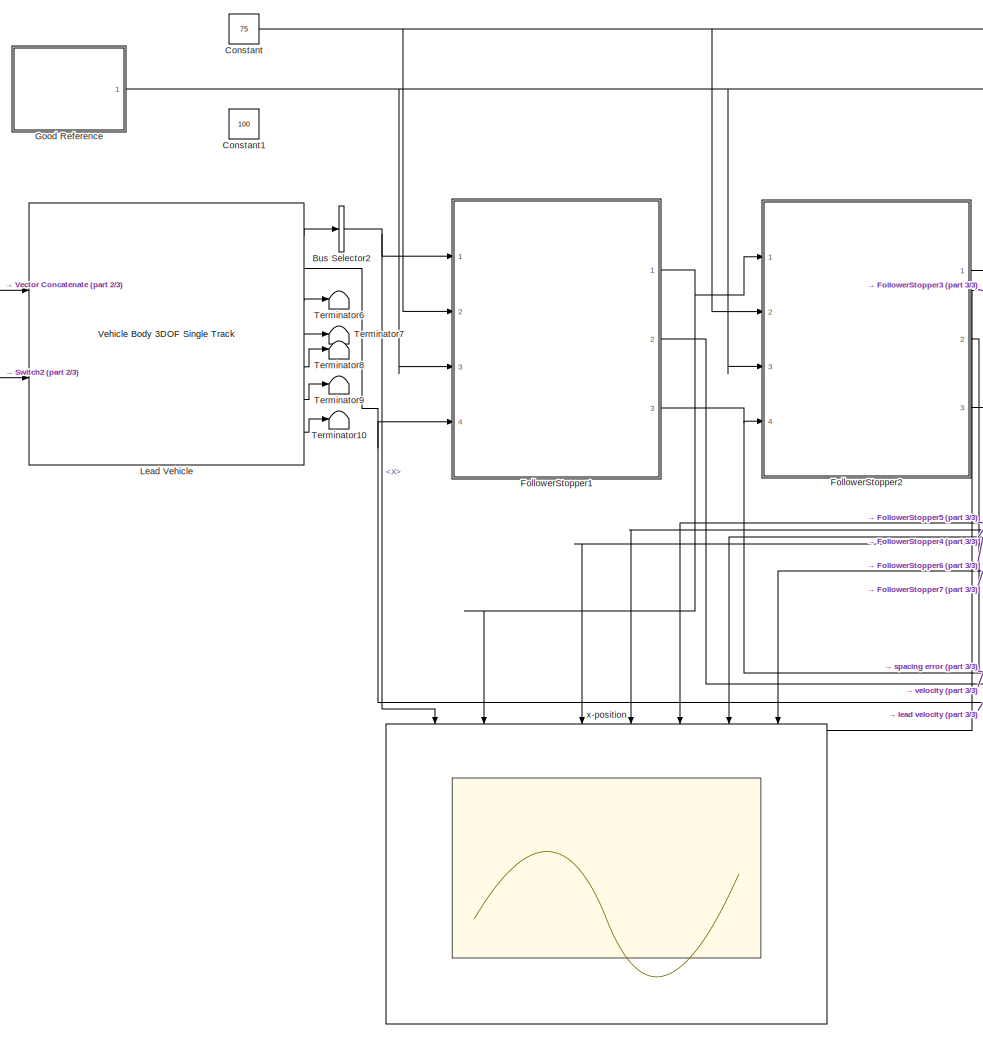
[diagram: root canvas - part 1/3, center side, full height]
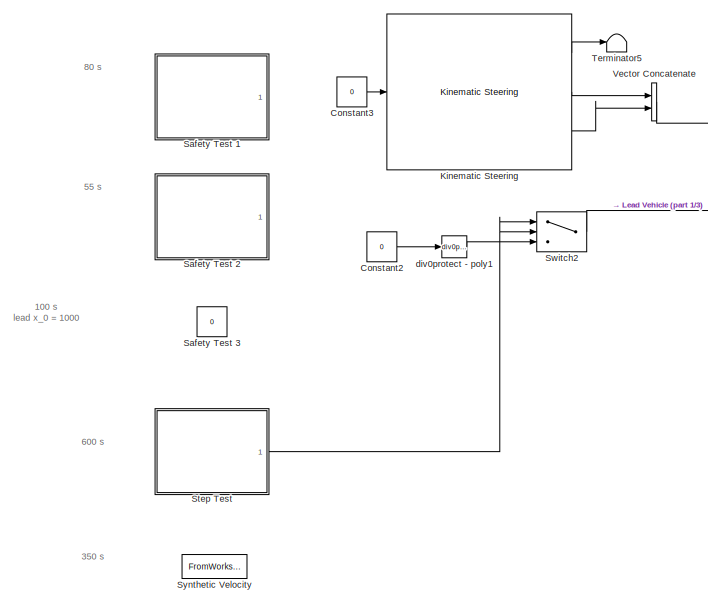
[diagram: root canvas - part 2/3, middle left region]
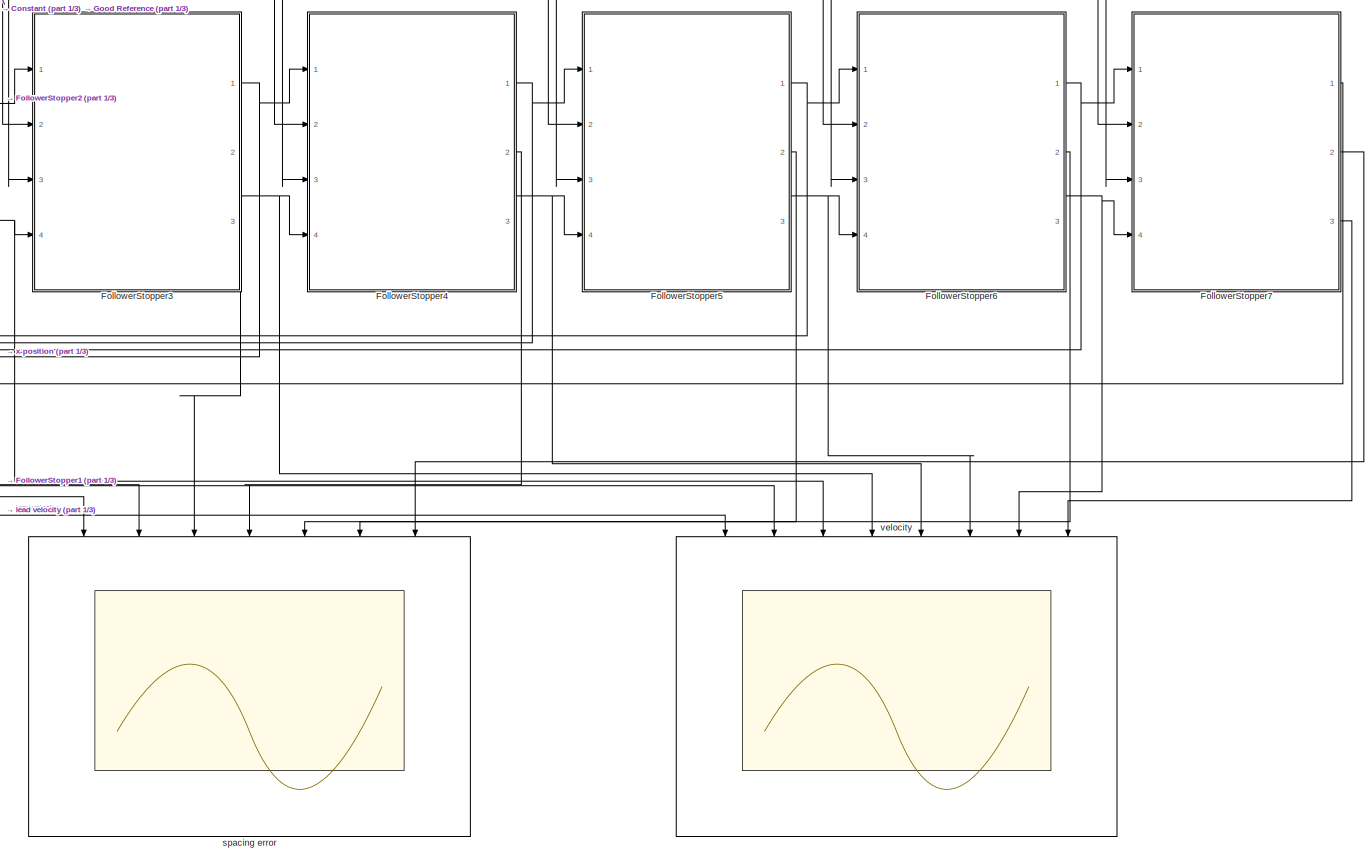
[diagram: root canvas - part 3/3, right side, full height]
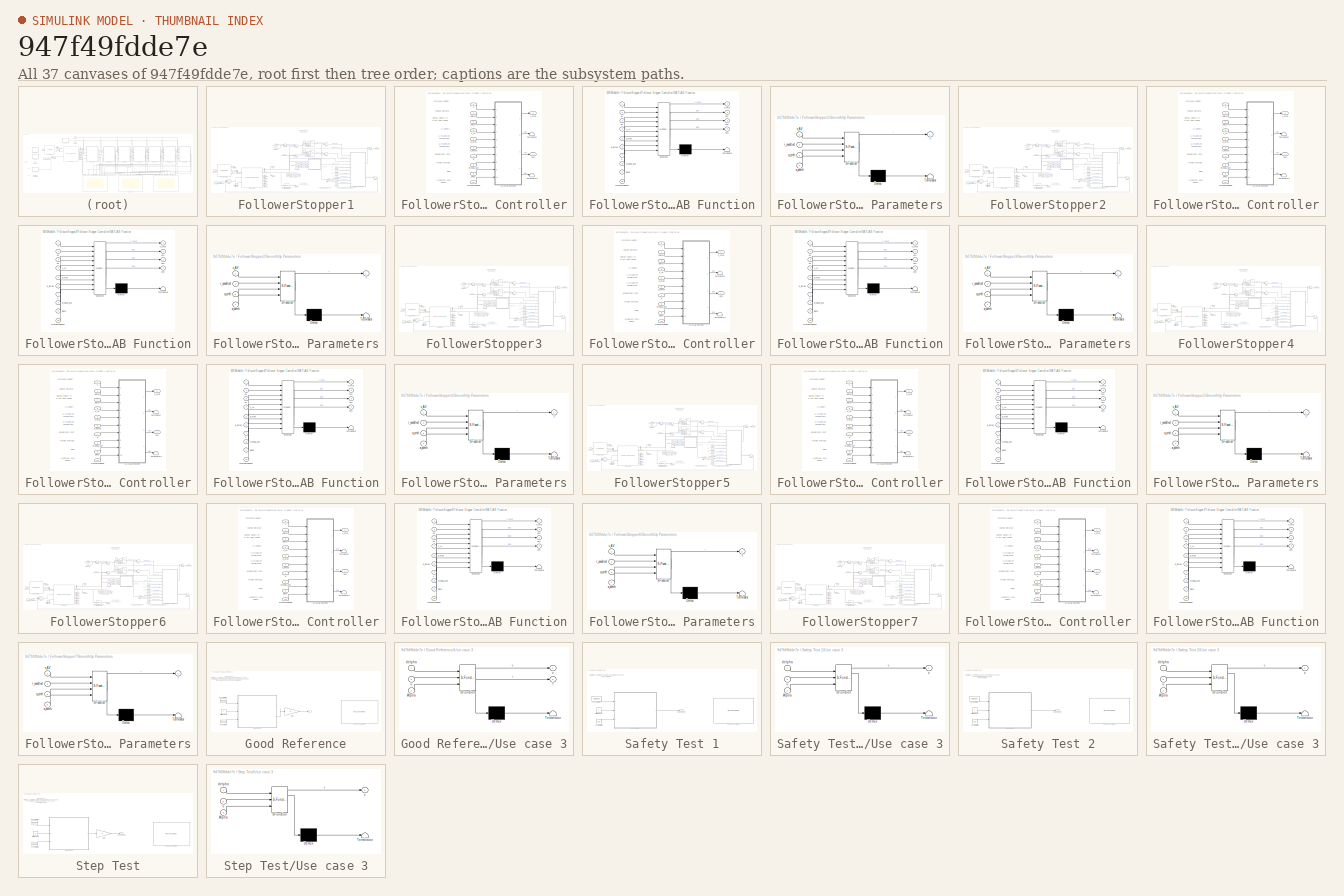
[diagram: thumbnail index - all 37 canvases of the model, root first then tree order]
MODEL slx_947f49fdde7e
KIND model
CONFIG AbsTol = auto
CONFIG EnableMultiTasking = off
CONFIG FixedStep = 0.01
CONFIG MaxStep = auto
CONFIG MinStep = auto
CONFIG RelTol = 1e-3
CONFIG SampleTimeConstraint = Unconstrained
CONFIG Solver = FixedStepAuto
CONFIG SolverName = FixedStepAuto
CONFIG StartTime = 0.0
CONFIG StopTime = 600
BLOCK [BusSelector] Bus Selector2
  OutputAsBus = off
  OutputSignals = InertFrm.Geom.Disp.X
  Ports = [1, 1]
BLOCK [Constant] Constant
  Value = 75
BLOCK [Constant] Constant1
  Value = 100
BLOCK [Constant] Constant2
  Value = 0
BLOCK [Constant] Constant3
  Value = 0
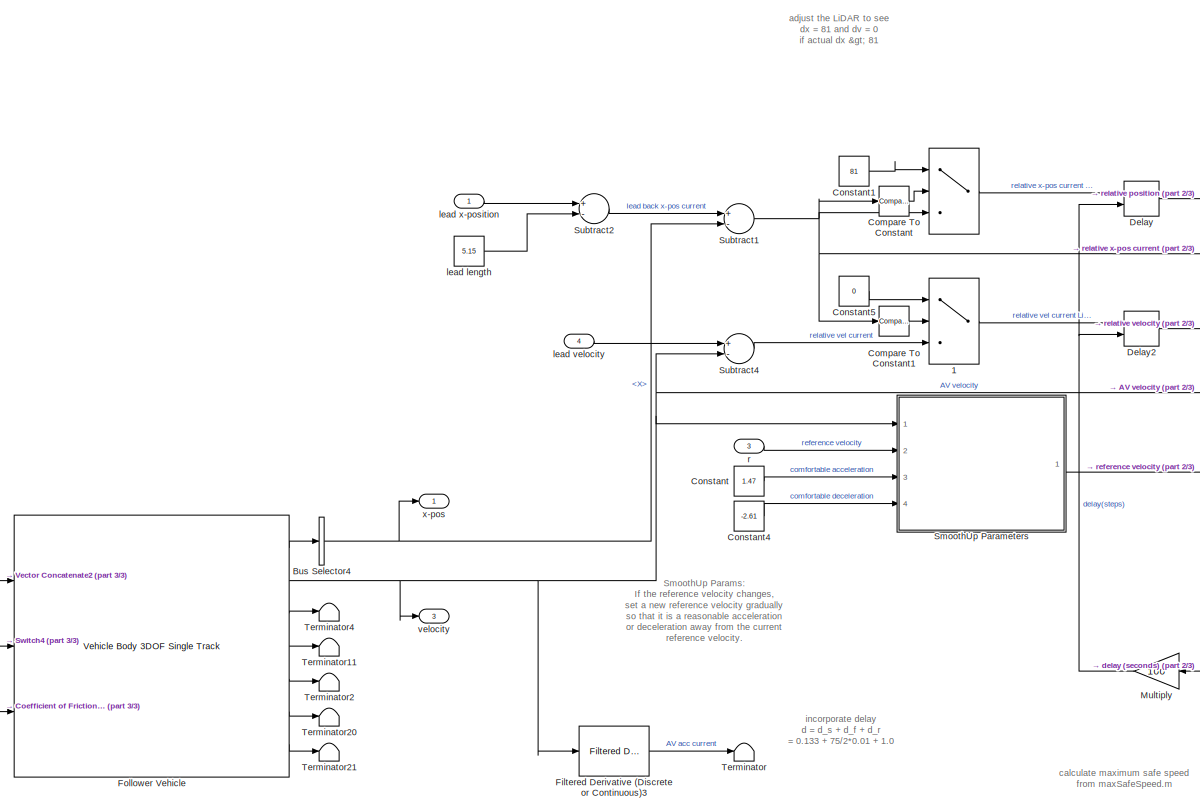
[diagram: FollowerStopper1 - part 1/3, center side, full height]
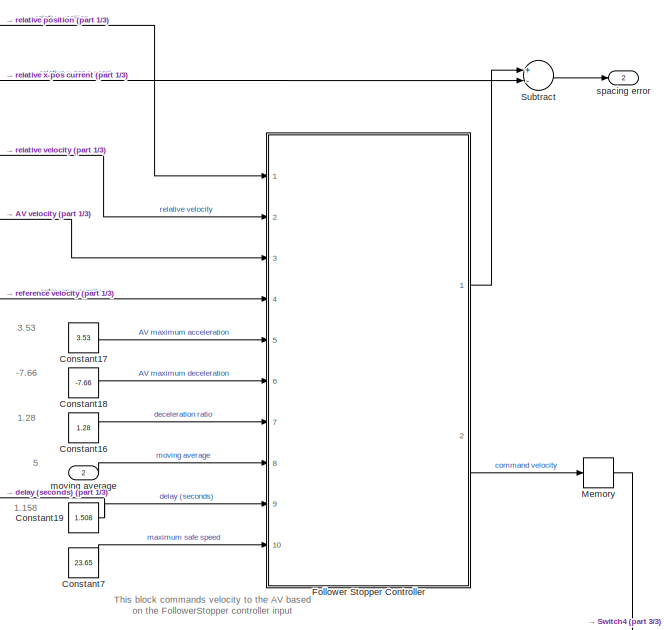
[diagram: FollowerStopper1 - part 2/3, middle right region]
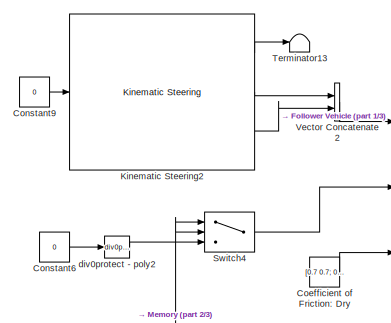
[diagram: FollowerStopper1 - part 3/3, bottom left region]
BLOCK [SubSystem] FollowerStopper1
  Ports = [4, 3]
  RequestExecContextInheritance = off
BLOCK [Switch] FollowerStopper1/ 
  Criteria = u2 > Threshold
  InputSameDT = off
  SaturateOnIntegerOverflow = off
BLOCK [Switch] FollowerStopper1/ 1
  Criteria = u2 > Threshold
  InputSameDT = off
  SaturateOnIntegerOverflow = off
BLOCK [BusSelector] FollowerStopper1/Bus Selector4
  OutputAsBus = off
  OutputSignals = InertFrm.Geom.Disp.X
  Ports = [1, 1]
BLOCK [Constant] FollowerStopper1/Coefficient of Friction: Dry
  Value = [0.7 0.7; 0.7 0.7]
BLOCK [Reference] FollowerStopper1/Compare To Constant  REF=simulink/Logic and Bit
Operations/Compare
To Constant
  Ports = [1, 1]
  SourceBlock = simulink/Logic and Bit\nOperations/Compare\nTo Constant
  SourceProductBaseCode = SL
  SourceProductName = Simulink
  SourceType = Compare To Constant
BLOCK [Reference] FollowerStopper1/Compare To Constant1  REF=simulink/Logic and Bit
Operations/Compare
To Constant
  Ports = [1, 1]
  SourceBlock = simulink/Logic and Bit\nOperations/Compare\nTo Constant
  SourceProductBaseCode = SL
  SourceProductName = Simulink
  SourceType = Compare To Constant
BLOCK [Constant] FollowerStopper1/Constant
  Value = 1.47
BLOCK [Constant] FollowerStopper1/Constant1
  Value = 81
BLOCK [Constant] FollowerStopper1/Constant16
  Value = 1.28
BLOCK [Constant] FollowerStopper1/Constant17
  Value = 3.53
BLOCK [Constant] FollowerStopper1/Constant18
  Value = -7.66
BLOCK [Constant] FollowerStopper1/Constant19
  Value = 1.508
BLOCK [Constant] FollowerStopper1/Constant4
  Value = -2.61
BLOCK [Constant] FollowerStopper1/Constant5
  Value = 0
BLOCK [Constant] FollowerStopper1/Constant6
  Value = 0
BLOCK [Constant] FollowerStopper1/Constant7
  Value = 23.65
BLOCK [Constant] FollowerStopper1/Constant9
  Value = 0
BLOCK [Delay] FollowerStopper1/Delay
  DelayLength = 183
  DelayLengthSource = Input port
  InputPortMap = u0,p1
  Ports = [2, 1]
BLOCK [Delay] FollowerStopper1/Delay2
  DelayLength = 183
  DelayLengthSource = Input port
  InputPortMap = u0,p1
  Ports = [2, 1]
BLOCK [Reference] FollowerStopper1/Filtered Derivative (Discrete or Continuous)3  REF=eeGeneralControl/Filtered Derivative
(Discrete or Continuous)
  Ports = [1, 1]
  SourceBlock = eeGeneralControl/Filtered Derivative\n(Discrete or Continuous)
  SourceProductBaseCode = PS
  SourceProductName = Simscape Electrical
  SourceType = Filtered Derivative (Discrete or Continuous)
BLOCK [SubSystem] FollowerStopper1/Follower Stopper Controller
  Ports = [10, 2]
  RequestExecContextInheritance = off
BLOCK [SubSystem] FollowerStopper1/Follower Stopper Controller/MATLAB Function
  ErrorFcn = Stateflow.Translate.translate
  PermitHierarchicalResolution = ExplicitOnly
  Ports = [10, 4]
  RequestExecContextInheritance = off
  SFBlockType = MATLAB Function
  TreatAsAtomicUnit = on
BLOCK [Demux] FollowerStopper1/Follower Stopper Controller/MATLAB Function/ Demux 
  Outputs = 1
  Ports = [1, 1]
BLOCK [S-Function] FollowerStopper1/Follower Stopper Controller/MATLAB Function/ SFunction 
  EnableBusSupport = on
  FunctionName = sf_sfun
  PortCounts = [10 5]
  Ports = [10, 5]
  SFcnIsStateOwnerBlock = off
  SFunctionDeploymentMode = off
  Tag = Stateflow S-Function multicarFS_spacingError 5
BLOCK [Terminator] FollowerStopper1/Follower Stopper Controller/MATLAB Function/ Terminator 
BLOCK [Inport] FollowerStopper1/Follower Stopper Controller/MATLAB Function/a_dmax
  IconDisplay = Port number
  Port = 6
BLOCK [Inport] FollowerStopper1/Follower Stopper Controller/MATLAB Function/a_max
  IconDisplay = Port number
  Port = 5
BLOCK [Inport] FollowerStopper1/Follower Stopper Controller/MATLAB Function/delta
  IconDisplay = Port number
  Port = 9
BLOCK [Inport] FollowerStopper1/Follower Stopper Controller/MATLAB Function/dv
  IconDisplay = Port number
  Port = 3
BLOCK [Inport] FollowerStopper1/Follower Stopper Controller/MATLAB Function/dx
  IconDisplay = Port number
  Port = 2
BLOCK [Outport] FollowerStopper1/Follower Stopper Controller/MATLAB Function/dx1
  IconDisplay = Port number
  Port = 2
BLOCK [Outport] FollowerStopper1/Follower Stopper Controller/MATLAB Function/dx2
  IconDisplay = Port number
  Port = 3
BLOCK [Outport] FollowerStopper1/Follower Stopper Controller/MATLAB Function/dx3
  IconDisplay = Port number
  Port = 4
BLOCK [Inport] FollowerStopper1/Follower Stopper Controller/MATLAB Function/k
  IconDisplay = Port number
  Port = 7
BLOCK [Inport] FollowerStopper1/Follower Stopper Controller/MATLAB Function/maxSafeSpeed
  IconDisplay = Port number
  Port = 10
BLOCK [Inport] FollowerStopper1/Follower Stopper Controller/MATLAB Function/moving_ave
  IconDisplay = Port number
  Port = 8
BLOCK [Inport] FollowerStopper1/Follower Stopper Controller/MATLAB Function/r
  IconDisplay = Port number
BLOCK [Inport] FollowerStopper1/Follower Stopper Controller/MATLAB Function/v_AV
  IconDisplay = Port number
  Port = 4
BLOCK [Outport] FollowerStopper1/Follower Stopper Controller/MATLAB Function/v_cmd
  IconDisplay = Port number
BLOCK [Terminator] FollowerStopper1/Follower Stopper Controller/Terminator
BLOCK [Terminator] FollowerStopper1/Follower Stopper Controller/Terminator2
BLOCK [Inport] FollowerStopper1/Follower Stopper Controller/a_dmax
  IconDisplay = Port number
  Port = 6
BLOCK [Inport] FollowerStopper1/Follower Stopper Controller/a_max
  IconDisplay = Port number
  Port = 5
BLOCK [Inport] FollowerStopper1/Follower Stopper Controller/delta
  IconDisplay = Port number
  Port = 9
BLOCK [Inport] FollowerStopper1/Follower Stopper Controller/deltaV
  IconDisplay = Port number
  Port = 2
BLOCK [Inport] FollowerStopper1/Follower Stopper Controller/deltaX
  IconDisplay = Port number
BLOCK [Outport] FollowerStopper1/Follower Stopper Controller/dx2
  IconDisplay = Port number
BLOCK [Inport] FollowerStopper1/Follower Stopper Controller/k
  IconDisplay = Port number
  Port = 7
BLOCK [Inport] FollowerStopper1/Follower Stopper Controller/maxSafeSpeed
  IconDisplay = Port number
  Port = 10
BLOCK [Inport] FollowerStopper1/Follower Stopper Controller/moving_ave
  IconDisplay = Port number
  Port = 8
BLOCK [Inport] FollowerStopper1/Follower Stopper Controller/r
  IconDisplay = Port number
  Port = 4
BLOCK [Inport] FollowerStopper1/Follower Stopper Controller/v_AV
  IconDisplay = Port number
  Port = 3
BLOCK [Outport] FollowerStopper1/Follower Stopper Controller/v_cmd
  IconDisplay = Port number
  Port = 2
BLOCK [Reference] FollowerStopper1/Follower Vehicle  REF=autolibshared/Vehicle Body 3DOF Single Track
  Ports = [3, 7]
  SourceBlock = autolibshared/Vehicle Body 3DOF Single Track
  SourceProductBaseCode = PW
  SourceProductName = Powertrain Blockset
  SourceType = Vehicle Body 3DOF Lateral
BLOCK [Reference] FollowerStopper1/Kinematic Steering2  REF=vehdynlibsteering/Kinematic Steering
  Ports = [1, 3]
  SourceBlock = vehdynlibsteering/Kinematic Steering
  SourceProductBaseCode = VE
  SourceProductName = Vehicle Dynamics Blockset
  SourceType = Kinematic Steering
BLOCK [Memory] FollowerStopper1/Memory
BLOCK [Gain] FollowerStopper1/Multiply
  Gain = 100
  OutDataTypeStr = Inherit: Inherit via internal rule
  ParamDataTypeStr = Inherit: Inherit via internal rule
  SaturateOnIntegerOverflow = off
BLOCK [SubSystem] FollowerStopper1/SmoothUp Parameters
  ErrorFcn = Stateflow.Translate.translate
  PermitHierarchicalResolution = ExplicitOnly
  Ports = [4, 1]
  RequestExecContextInheritance = off
  SFBlockType = MATLAB Function
  TreatAsAtomicUnit = on
BLOCK [Demux] FollowerStopper1/SmoothUp Parameters/ Demux 
  Outputs = 1
  Ports = [1, 1]
BLOCK [S-Function] FollowerStopper1/SmoothUp Parameters/ SFunction 
  EnableBusSupport = on
  FunctionName = sf_sfun
  PortCounts = [4 2]
  Ports = [4, 2]
  SFcnIsStateOwnerBlock = off
  SFunctionDeploymentMode = off
  Tag = Stateflow S-Function multicarFS_spacingError 35
BLOCK [Terminator] FollowerStopper1/SmoothUp Parameters/ Terminator 
BLOCK [Inport] FollowerStopper1/SmoothUp Parameters/a_cmft
  IconDisplay = Port number
  Port = 3
BLOCK [Inport] FollowerStopper1/SmoothUp Parameters/a_dcmft
  IconDisplay = Port number
  Port = 4
BLOCK [Outport] FollowerStopper1/SmoothUp Parameters/r
  IconDisplay = Port number
BLOCK [Inport] FollowerStopper1/SmoothUp Parameters/r_unedited
  IconDisplay = Port number
  Port = 2
BLOCK [Inport] FollowerStopper1/SmoothUp Parameters/v_AV
  IconDisplay = Port number
BLOCK [Sum] FollowerStopper1/Subtract
  InputSameDT = off
  Inputs = +-
  OutDataTypeStr = Inherit: Inherit via internal rule
  Ports = [2, 1]
  SaturateOnIntegerOverflow = off
BLOCK [Sum] FollowerStopper1/Subtract1
  InputSameDT = off
  Inputs = +-
  OutDataTypeStr = Inherit: Inherit via internal rule
  Ports = [2, 1]
  SaturateOnIntegerOverflow = off
BLOCK [Sum] FollowerStopper1/Subtract2
  InputSameDT = off
  Inputs = +-
  OutDataTypeStr = Inherit: Inherit via internal rule
  Ports = [2, 1]
  SaturateOnIntegerOverflow = off
BLOCK [Sum] FollowerStopper1/Subtract4
  InputSameDT = off
  Inputs = +-
  OutDataTypeStr = Inherit: Inherit via internal rule
  Ports = [2, 1]
  SaturateOnIntegerOverflow = off
BLOCK [Switch] FollowerStopper1/Switch4
  Criteria = u2 > Threshold
  InputSameDT = off
  SaturateOnIntegerOverflow = off
BLOCK [Terminator] FollowerStopper1/Terminator
BLOCK [Terminator] FollowerStopper1/Terminator11
BLOCK [Terminator] FollowerStopper1/Terminator13
BLOCK [Terminator] FollowerStopper1/Terminator2
BLOCK [Terminator] FollowerStopper1/Terminator20
BLOCK [Terminator] FollowerStopper1/Terminator21
BLOCK [Terminator] FollowerStopper1/Terminator4
BLOCK [Concatenate] FollowerStopper1/Vector Concatenate2
  Ports = [2, 1]
BLOCK [Reference] FollowerStopper1/div0protect - poly2  REF=autolibutils/div0protect - poly
  Ports = [1, 1]
  SourceBlock = autolibutils/div0protect - poly
  SourceProductBaseCode = PW
  SourceProductName = Powertrain Blockset
BLOCK [Constant] FollowerStopper1/lead length
  Value = 5.15
BLOCK [Inport] FollowerStopper1/lead velocity
  IconDisplay = Port number
  Port = 4
BLOCK [Inport] FollowerStopper1/lead x-position
  IconDisplay = Port number
BLOCK [Inport] FollowerStopper1/moving average
  IconDisplay = Port number
  Port = 2
BLOCK [Inport] FollowerStopper1/r
  IconDisplay = Port number
  Port = 3
BLOCK [Outport] FollowerStopper1/spacing error
  IconDisplay = Port number
  Port = 2
BLOCK [Outport] FollowerStopper1/velocity
  IconDisplay = Port number
  Port = 3
BLOCK [Outport] FollowerStopper1/x-pos
  IconDisplay = Port number
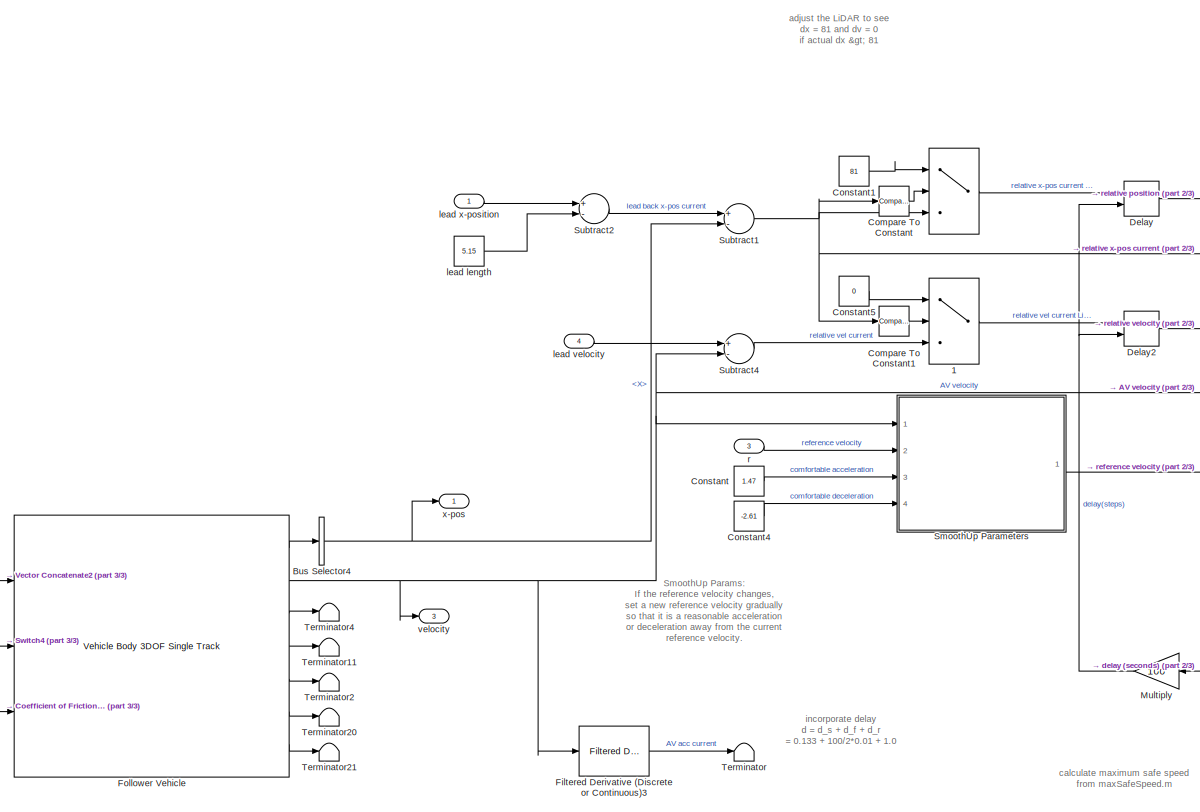
[diagram: FollowerStopper2 - part 1/3, center side, full height]
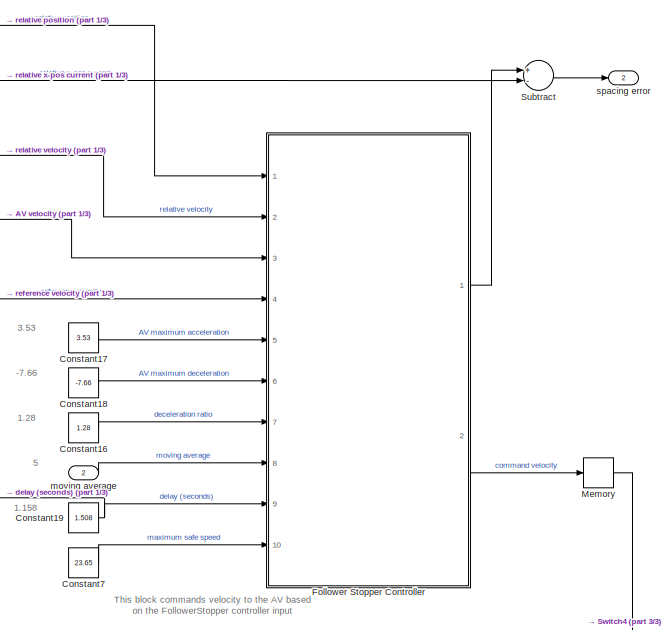
[diagram: FollowerStopper2 - part 2/3, middle right region]
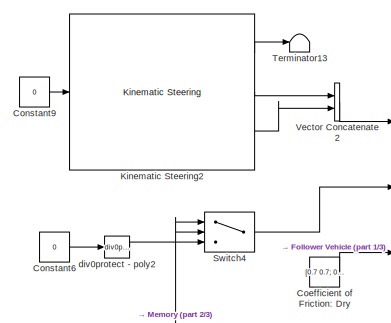
[diagram: FollowerStopper2 - part 3/3, bottom left region]
BLOCK [SubSystem] FollowerStopper2
  Ports = [4, 3]
  RequestExecContextInheritance = off
BLOCK [Switch] FollowerStopper2/ 
  Criteria = u2 > Threshold
  InputSameDT = off
  SaturateOnIntegerOverflow = off
BLOCK [Switch] FollowerStopper2/ 1
  Criteria = u2 > Threshold
  InputSameDT = off
  SaturateOnIntegerOverflow = off
BLOCK [BusSelector] FollowerStopper2/Bus Selector4
  OutputAsBus = off
  OutputSignals = InertFrm.Geom.Disp.X
  Ports = [1, 1]
BLOCK [Constant] FollowerStopper2/Coefficient of Friction: Dry
  Value = [0.7 0.7; 0.7 0.7]
BLOCK [Reference] FollowerStopper2/Compare To Constant  REF=simulink/Logic and Bit
Operations/Compare
To Constant
  Ports = [1, 1]
  SourceBlock = simulink/Logic and Bit\nOperations/Compare\nTo Constant
  SourceProductBaseCode = SL
  SourceProductName = Simulink
  SourceType = Compare To Constant
BLOCK [Reference] FollowerStopper2/Compare To Constant1  REF=simulink/Logic and Bit
Operations/Compare
To Constant
  Ports = [1, 1]
  SourceBlock = simulink/Logic and Bit\nOperations/Compare\nTo Constant
  SourceProductBaseCode = SL
  SourceProductName = Simulink
  SourceType = Compare To Constant
BLOCK [Constant] FollowerStopper2/Constant
  Value = 1.47
BLOCK [Constant] FollowerStopper2/Constant1
  Value = 81
BLOCK [Constant] FollowerStopper2/Constant16
  Value = 1.28
BLOCK [Constant] FollowerStopper2/Constant17
  Value = 3.53
BLOCK [Constant] FollowerStopper2/Constant18
  Value = -7.66
BLOCK [Constant] FollowerStopper2/Constant19
  Value = 1.508
BLOCK [Constant] FollowerStopper2/Constant4
  Value = -2.61
BLOCK [Constant] FollowerStopper2/Constant5
  Value = 0
BLOCK [Constant] FollowerStopper2/Constant6
  Value = 0
BLOCK [Constant] FollowerStopper2/Constant7
  Value = 23.65
BLOCK [Constant] FollowerStopper2/Constant9
  Value = 0
BLOCK [Delay] FollowerStopper2/Delay
  DelayLength = 183
  DelayLengthSource = Input port
  InputPortMap = u0,p1
  Ports = [2, 1]
BLOCK [Delay] FollowerStopper2/Delay2
  DelayLength = 183
  DelayLengthSource = Input port
  InputPortMap = u0,p1
  Ports = [2, 1]
BLOCK [Reference] FollowerStopper2/Filtered Derivative (Discrete or Continuous)3  REF=eeGeneralControl/Filtered Derivative
(Discrete or Continuous)
  Ports = [1, 1]
  SourceBlock = eeGeneralControl/Filtered Derivative\n(Discrete or Continuous)
  SourceProductBaseCode = PS
  SourceProductName = Simscape Electrical
  SourceType = Filtered Derivative (Discrete or Continuous)
BLOCK [SubSystem] FollowerStopper2/Follower Stopper Controller
  Ports = [10, 2]
  RequestExecContextInheritance = off
BLOCK [SubSystem] FollowerStopper2/Follower Stopper Controller/MATLAB Function
  ErrorFcn = Stateflow.Translate.translate
  PermitHierarchicalResolution = ExplicitOnly
  Ports = [10, 4]
  RequestExecContextInheritance = off
  SFBlockType = MATLAB Function
  TreatAsAtomicUnit = on
BLOCK [Demux] FollowerStopper2/Follower Stopper Controller/MATLAB Function/ Demux 
  Outputs = 1
  Ports = [1, 1]
BLOCK [S-Function] FollowerStopper2/Follower Stopper Controller/MATLAB Function/ SFunction 
  EnableBusSupport = on
  FunctionName = sf_sfun
  PortCounts = [10 5]
  Ports = [10, 5]
  SFcnIsStateOwnerBlock = off
  SFunctionDeploymentMode = off
  Tag = Stateflow S-Function multicarFS_spacingError 2
BLOCK [Terminator] FollowerStopper2/Follower Stopper Controller/MATLAB Function/ Terminator 
BLOCK [Inport] FollowerStopper2/Follower Stopper Controller/MATLAB Function/a_dmax
  IconDisplay = Port number
  Port = 6
BLOCK [Inport] FollowerStopper2/Follower Stopper Controller/MATLAB Function/a_max
  IconDisplay = Port number
  Port = 5
BLOCK [Inport] FollowerStopper2/Follower Stopper Controller/MATLAB Function/delta
  IconDisplay = Port number
  Port = 9
BLOCK [Inport] FollowerStopper2/Follower Stopper Controller/MATLAB Function/dv
  IconDisplay = Port number
  Port = 3
BLOCK [Inport] FollowerStopper2/Follower Stopper Controller/MATLAB Function/dx
  IconDisplay = Port number
  Port = 2
BLOCK [Outport] FollowerStopper2/Follower Stopper Controller/MATLAB Function/dx1
  IconDisplay = Port number
  Port = 2
BLOCK [Outport] FollowerStopper2/Follower Stopper Controller/MATLAB Function/dx2
  IconDisplay = Port number
  Port = 3
BLOCK [Outport] FollowerStopper2/Follower Stopper Controller/MATLAB Function/dx3
  IconDisplay = Port number
  Port = 4
BLOCK [Inport] FollowerStopper2/Follower Stopper Controller/MATLAB Function/k
  IconDisplay = Port number
  Port = 7
BLOCK [Inport] FollowerStopper2/Follower Stopper Controller/MATLAB Function/maxSafeSpeed
  IconDisplay = Port number
  Port = 10
BLOCK [Inport] FollowerStopper2/Follower Stopper Controller/MATLAB Function/moving_ave
  IconDisplay = Port number
  Port = 8
BLOCK [Inport] FollowerStopper2/Follower Stopper Controller/MATLAB Function/r
  IconDisplay = Port number
BLOCK [Inport] FollowerStopper2/Follower Stopper Controller/MATLAB Function/v_AV
  IconDisplay = Port number
  Port = 4
BLOCK [Outport] FollowerStopper2/Follower Stopper Controller/MATLAB Function/v_cmd
  IconDisplay = Port number
BLOCK [Terminator] FollowerStopper2/Follower Stopper Controller/Terminator
BLOCK [Terminator] FollowerStopper2/Follower Stopper Controller/Terminator2
BLOCK [Inport] FollowerStopper2/Follower Stopper Controller/a_dmax
  IconDisplay = Port number
  Port = 6
BLOCK [Inport] FollowerStopper2/Follower Stopper Controller/a_max
  IconDisplay = Port number
  Port = 5
BLOCK [Inport] FollowerStopper2/Follower Stopper Controller/delta
  IconDisplay = Port number
  Port = 9
BLOCK [Inport] FollowerStopper2/Follower Stopper Controller/deltaV
  IconDisplay = Port number
  Port = 2
BLOCK [Inport] FollowerStopper2/Follower Stopper Controller/deltaX
  IconDisplay = Port number
BLOCK [Outport] FollowerStopper2/Follower Stopper Controller/dx2
  IconDisplay = Port number
BLOCK [Inport] FollowerStopper2/Follower Stopper Controller/k
  IconDisplay = Port number
  Port = 7
BLOCK [Inport] FollowerStopper2/Follower Stopper Controller/maxSafeSpeed
  IconDisplay = Port number
  Port = 10
BLOCK [Inport] FollowerStopper2/Follower Stopper Controller/moving_ave
  IconDisplay = Port number
  Port = 8
BLOCK [Inport] FollowerStopper2/Follower Stopper Controller/r
  IconDisplay = Port number
  Port = 4
BLOCK [Inport] FollowerStopper2/Follower Stopper Controller/v_AV
  IconDisplay = Port number
  Port = 3
BLOCK [Outport] FollowerStopper2/Follower Stopper Controller/v_cmd
  IconDisplay = Port number
  Port = 2
BLOCK [Reference] FollowerStopper2/Follower Vehicle  REF=autolibshared/Vehicle Body 3DOF Single Track
  Ports = [3, 7]
  SourceBlock = autolibshared/Vehicle Body 3DOF Single Track
  SourceProductBaseCode = PW
  SourceProductName = Powertrain Blockset
  SourceType = Vehicle Body 3DOF Lateral
BLOCK [Reference] FollowerStopper2/Kinematic Steering2  REF=vehdynlibsteering/Kinematic Steering
  Ports = [1, 3]
  SourceBlock = vehdynlibsteering/Kinematic Steering
  SourceProductBaseCode = VE
  SourceProductName = Vehicle Dynamics Blockset
  SourceType = Kinematic Steering
BLOCK [Memory] FollowerStopper2/Memory
BLOCK [Gain] FollowerStopper2/Multiply
  Gain = 100
  OutDataTypeStr = Inherit: Inherit via internal rule
  ParamDataTypeStr = Inherit: Inherit via internal rule
  SaturateOnIntegerOverflow = off
BLOCK [SubSystem] FollowerStopper2/SmoothUp Parameters
  ErrorFcn = Stateflow.Translate.translate
  PermitHierarchicalResolution = ExplicitOnly
  Ports = [4, 1]
  RequestExecContextInheritance = off
  SFBlockType = MATLAB Function
  TreatAsAtomicUnit = on
BLOCK [Demux] FollowerStopper2/SmoothUp Parameters/ Demux 
  Outputs = 1
  Ports = [1, 1]
BLOCK [S-Function] FollowerStopper2/SmoothUp Parameters/ SFunction 
  EnableBusSupport = on
  FunctionName = sf_sfun
  PortCounts = [4 2]
  Ports = [4, 2]
  SFcnIsStateOwnerBlock = off
  SFunctionDeploymentMode = off
  Tag = Stateflow S-Function multicarFS_spacingError 3
BLOCK [Terminator] FollowerStopper2/SmoothUp Parameters/ Terminator 
BLOCK [Inport] FollowerStopper2/SmoothUp Parameters/a_cmft
  IconDisplay = Port number
  Port = 3
BLOCK [Inport] FollowerStopper2/SmoothUp Parameters/a_dcmft
  IconDisplay = Port number
  Port = 4
BLOCK [Outport] FollowerStopper2/SmoothUp Parameters/r
  IconDisplay = Port number
BLOCK [Inport] FollowerStopper2/SmoothUp Parameters/r_unedited
  IconDisplay = Port number
  Port = 2
BLOCK [Inport] FollowerStopper2/SmoothUp Parameters/v_AV
  IconDisplay = Port number
BLOCK [Sum] FollowerStopper2/Subtract
  InputSameDT = off
  Inputs = +-
  OutDataTypeStr = Inherit: Inherit via internal rule
  Ports = [2, 1]
  SaturateOnIntegerOverflow = off
BLOCK [Sum] FollowerStopper2/Subtract1
  InputSameDT = off
  Inputs = +-
  OutDataTypeStr = Inherit: Inherit via internal rule
  Ports = [2, 1]
  SaturateOnIntegerOverflow = off
BLOCK [Sum] FollowerStopper2/Subtract2
  InputSameDT = off
  Inputs = +-
  OutDataTypeStr = Inherit: Inherit via internal rule
  Ports = [2, 1]
  SaturateOnIntegerOverflow = off
BLOCK [Sum] FollowerStopper2/Subtract4
  InputSameDT = off
  Inputs = +-
  OutDataTypeStr = Inherit: Inherit via internal rule
  Ports = [2, 1]
  SaturateOnIntegerOverflow = off
BLOCK [Switch] FollowerStopper2/Switch4
  Criteria = u2 > Threshold
  InputSameDT = off
  SaturateOnIntegerOverflow = off
BLOCK [Terminator] FollowerStopper2/Terminator
BLOCK [Terminator] FollowerStopper2/Terminator11
BLOCK [Terminator] FollowerStopper2/Terminator13
BLOCK [Terminator] FollowerStopper2/Terminator2
BLOCK [Terminator] FollowerStopper2/Terminator20
BLOCK [Terminator] FollowerStopper2/Terminator21
BLOCK [Terminator] FollowerStopper2/Terminator4
BLOCK [Concatenate] FollowerStopper2/Vector Concatenate2
  Ports = [2, 1]
BLOCK [Reference] FollowerStopper2/div0protect - poly2  REF=autolibutils/div0protect - poly
  Ports = [1, 1]
  SourceBlock = autolibutils/div0protect - poly
  SourceProductBaseCode = PW
  SourceProductName = Powertrain Blockset
BLOCK [Constant] FollowerStopper2/lead length
  Value = 5.15
BLOCK [Inport] FollowerStopper2/lead velocity
  IconDisplay = Port number
  Port = 4
BLOCK [Inport] FollowerStopper2/lead x-position
  IconDisplay = Port number
BLOCK [Inport] FollowerStopper2/moving average
  IconDisplay = Port number
  Port = 2
BLOCK [Inport] FollowerStopper2/r
  IconDisplay = Port number
  Port = 3
BLOCK [Outport] FollowerStopper2/spacing error
  IconDisplay = Port number
  Port = 2
BLOCK [Outport] FollowerStopper2/velocity
  IconDisplay = Port number
  Port = 3
BLOCK [Outport] FollowerStopper2/x-pos
  IconDisplay = Port number
BLOCK [SubSystem] FollowerStopper3
  Ports = [4, 3]
  RequestExecContextInheritance = off
BLOCK [Switch] FollowerStopper3/ 
  Criteria = u2 > Threshold
  InputSameDT = off
  SaturateOnIntegerOverflow = off
BLOCK [Switch] FollowerStopper3/ 1
  Criteria = u2 > Threshold
  InputSameDT = off
  SaturateOnIntegerOverflow = off
BLOCK [BusSelector] FollowerStopper3/Bus Selector4
  OutputAsBus = off
  OutputSignals = InertFrm.Geom.Disp.X
  Ports = [1, 1]
BLOCK [Constant] FollowerStopper3/Coefficient of Friction: Dry
  Value = [0.7 0.7; 0.7 0.7]
BLOCK [Reference] FollowerStopper3/Compare To Constant  REF=simulink/Logic and Bit
Operations/Compare
To Constant
  Ports = [1, 1]
  SourceBlock = simulink/Logic and Bit\nOperations/Compare\nTo Constant
  SourceProductBaseCode = SL
  SourceProductName = Simulink
  SourceType = Compare To Constant
BLOCK [Reference] FollowerStopper3/Compare To Constant1  REF=simulink/Logic and Bit
Operations/Compare
To Constant
  Ports = [1, 1]
  SourceBlock = simulink/Logic and Bit\nOperations/Compare\nTo Constant
  SourceProductBaseCode = SL
  SourceProductName = Simulink
  SourceType = Compare To Constant
BLOCK [Constant] FollowerStopper3/Constant
  Value = 1.47
BLOCK [Constant] FollowerStopper3/Constant1
  Value = 81
BLOCK [Constant] FollowerStopper3/Constant16
  Value = 1.28
BLOCK [Constant] FollowerStopper3/Constant17
  Value = 3.53
BLOCK [Constant] FollowerStopper3/Constant18
  Value = -7.66
BLOCK [Constant] FollowerStopper3/Constant19
  Value = 1.508
BLOCK [Constant] FollowerStopper3/Constant4
  Value = -2.61
BLOCK [Constant] FollowerStopper3/Constant5
  Value = 0
BLOCK [Constant] FollowerStopper3/Constant6
  Value = 0
BLOCK [Constant] FollowerStopper3/Constant7
  Value = 23.65
BLOCK [Constant] FollowerStopper3/Constant9
  Value = 0
BLOCK [Delay] FollowerStopper3/Delay
  DelayLength = 183
  DelayLengthSource = Input port
  InputPortMap = u0,p1
  Ports = [2, 1]
BLOCK [Delay] FollowerStopper3/Delay2
  DelayLength = 183
  DelayLengthSource = Input port
  InputPortMap = u0,p1
  Ports = [2, 1]
BLOCK [Reference] FollowerStopper3/Filtered Derivative (Discrete or Continuous)3  REF=eeGeneralControl/Filtered Derivative
(Discrete or Continuous)
  Ports = [1, 1]
  SourceBlock = eeGeneralControl/Filtered Derivative\n(Discrete or Continuous)
  SourceProductBaseCode = PS
  SourceProductName = Simscape Electrical
  SourceType = Filtered Derivative (Discrete or Continuous)
BLOCK [SubSystem] FollowerStopper3/Follower Stopper Controller
  Ports = [10, 2]
  RequestExecContextInheritance = off
BLOCK [SubSystem] FollowerStopper3/Follower Stopper Controller/MATLAB Function
  ErrorFcn = Stateflow.Translate.translate
  PermitHierarchicalResolution = ExplicitOnly
  Ports = [10, 4]
  RequestExecContextInheritance = off
  SFBlockType = MATLAB Function
  TreatAsAtomicUnit = on
BLOCK [Demux] FollowerStopper3/Follower Stopper Controller/MATLAB Function/ Demux 
  Outputs = 1
  Ports = [1, 1]
BLOCK [S-Function] FollowerStopper3/Follower Stopper Controller/MATLAB Function/ SFunction 
  EnableBusSupport = on
  FunctionName = sf_sfun
  PortCounts = [10 5]
  Ports = [10, 5]
  SFcnIsStateOwnerBlock = off
  SFunctionDeploymentMode = off
  Tag = Stateflow S-Function multicarFS_spacingError 4
BLOCK [Terminator] FollowerStopper3/Follower Stopper Controller/MATLAB Function/ Terminator 
BLOCK [Inport] FollowerStopper3/Follower Stopper Controller/MATLAB Function/a_dmax
  IconDisplay = Port number
  Port = 6
BLOCK [Inport] FollowerStopper3/Follower Stopper Controller/MATLAB Function/a_max
  IconDisplay = Port number
  Port = 5
BLOCK [Inport] FollowerStopper3/Follower Stopper Controller/MATLAB Function/delta
  IconDisplay = Port number
  Port = 9
BLOCK [Inport] FollowerStopper3/Follower Stopper Controller/MATLAB Function/dv
  IconDisplay = Port number
  Port = 3
BLOCK [Inport] FollowerStopper3/Follower Stopper Controller/MATLAB Function/dx
  IconDisplay = Port number
  Port = 2
BLOCK [Outport] FollowerStopper3/Follower Stopper Controller/MATLAB Function/dx1
  IconDisplay = Port number
  Port = 2
BLOCK [Outport] FollowerStopper3/Follower Stopper Controller/MATLAB Function/dx2
  IconDisplay = Port number
  Port = 3
BLOCK [Outport] FollowerStopper3/Follower Stopper Controller/MATLAB Function/dx3
  IconDisplay = Port number
  Port = 4
BLOCK [Inport] FollowerStopper3/Follower Stopper Controller/MATLAB Function/k
  IconDisplay = Port number
  Port = 7
BLOCK [Inport] FollowerStopper3/Follower Stopper Controller/MATLAB Function/maxSafeSpeed
  IconDisplay = Port number
  Port = 10
BLOCK [Inport] FollowerStopper3/Follower Stopper Controller/MATLAB Function/moving_ave
  IconDisplay = Port number
  Port = 8
BLOCK [Inport] FollowerStopper3/Follower Stopper Controller/MATLAB Function/r
  IconDisplay = Port number
BLOCK [Inport] FollowerStopper3/Follower Stopper Controller/MATLAB Function/v_AV
  IconDisplay = Port number
  Port = 4
BLOCK [Outport] FollowerStopper3/Follower Stopper Controller/MATLAB Function/v_cmd
  IconDisplay = Port number
BLOCK [Terminator] FollowerStopper3/Follower Stopper Controller/Terminator
BLOCK [Terminator] FollowerStopper3/Follower Stopper Controller/Terminator2
BLOCK [Inport] FollowerStopper3/Follower Stopper Controller/a_dmax
  IconDisplay = Port number
  Port = 6
BLOCK [Inport] FollowerStopper3/Follower Stopper Controller/a_max
  IconDisplay = Port number
  Port = 5
BLOCK [Inport] FollowerStopper3/Follower Stopper Controller/delta
  IconDisplay = Port number
  Port = 9
BLOCK [Inport] FollowerStopper3/Follower Stopper Controller/deltaV
  IconDisplay = Port number
  Port = 2
BLOCK [Inport] FollowerStopper3/Follower Stopper Controller/deltaX
  IconDisplay = Port number
BLOCK [Outport] FollowerStopper3/Follower Stopper Controller/dx2
  IconDisplay = Port number
BLOCK [Inport] FollowerStopper3/Follower Stopper Controller/k
  IconDisplay = Port number
  Port = 7
BLOCK [Inport] FollowerStopper3/Follower Stopper Controller/maxSafeSpeed
  IconDisplay = Port number
  Port = 10
BLOCK [Inport] FollowerStopper3/Follower Stopper Controller/moving_ave
  IconDisplay = Port number
  Port = 8
BLOCK [Inport] FollowerStopper3/Follower Stopper Controller/r
  IconDisplay = Port number
  Port = 4
BLOCK [Inport] FollowerStopper3/Follower Stopper Controller/v_AV
  IconDisplay = Port number
  Port = 3
BLOCK [Outport] FollowerStopper3/Follower Stopper Controller/v_cmd
  IconDisplay = Port number
  Port = 2
BLOCK [Reference] FollowerStopper3/Follower Vehicle  REF=autolibshared/Vehicle Body 3DOF Single Track
  Ports = [3, 7]
  SourceBlock = autolibshared/Vehicle Body 3DOF Single Track
  SourceProductBaseCode = PW
  SourceProductName = Powertrain Blockset
  SourceType = Vehicle Body 3DOF Lateral
BLOCK [Reference] FollowerStopper3/Kinematic Steering2  REF=vehdynlibsteering/Kinematic Steering
  Ports = [1, 3]
  SourceBlock = vehdynlibsteering/Kinematic Steering
  SourceProductBaseCode = VE
  SourceProductName = Vehicle Dynamics Blockset
  SourceType = Kinematic Steering
BLOCK [Memory] FollowerStopper3/Memory
BLOCK [Gain] FollowerStopper3/Multiply
  Gain = 100
  OutDataTypeStr = Inherit: Inherit via internal rule
  ParamDataTypeStr = Inherit: Inherit via internal rule
  SaturateOnIntegerOverflow = off
BLOCK [SubSystem] FollowerStopper3/SmoothUp Parameters
  ErrorFcn = Stateflow.Translate.translate
  PermitHierarchicalResolution = ExplicitOnly
  Ports = [4, 1]
  RequestExecContextInheritance = off
  SFBlockType = MATLAB Function
  TreatAsAtomicUnit = on
BLOCK [Demux] FollowerStopper3/SmoothUp Parameters/ Demux 
  Outputs = 1
  Ports = [1, 1]
BLOCK [S-Function] FollowerStopper3/SmoothUp Parameters/ SFunction 
  EnableBusSupport = on
  FunctionName = sf_sfun
  PortCounts = [4 2]
  Ports = [4, 2]
  SFcnIsStateOwnerBlock = off
  SFunctionDeploymentMode = off
  Tag = Stateflow S-Function multicarFS_spacingError 6
BLOCK [Terminator] FollowerStopper3/SmoothUp Parameters/ Terminator 
BLOCK [Inport] FollowerStopper3/SmoothUp Parameters/a_cmft
  IconDisplay = Port number
  Port = 3
BLOCK [Inport] FollowerStopper3/SmoothUp Parameters/a_dcmft
  IconDisplay = Port number
  Port = 4
BLOCK [Outport] FollowerStopper3/SmoothUp Parameters/r
  IconDisplay = Port number
BLOCK [Inport] FollowerStopper3/SmoothUp Parameters/r_unedited
  IconDisplay = Port number
  Port = 2
BLOCK [Inport] FollowerStopper3/SmoothUp Parameters/v_AV
  IconDisplay = Port number
BLOCK [Sum] FollowerStopper3/Subtract
  InputSameDT = off
  Inputs = +-
  OutDataTypeStr = Inherit: Inherit via internal rule
  Ports = [2, 1]
  SaturateOnIntegerOverflow = off
BLOCK [Sum] FollowerStopper3/Subtract1
  InputSameDT = off
  Inputs = +-
  OutDataTypeStr = Inherit: Inherit via internal rule
  Ports = [2, 1]
  SaturateOnIntegerOverflow = off
BLOCK [Sum] FollowerStopper3/Subtract2
  InputSameDT = off
  Inputs = +-
  OutDataTypeStr = Inherit: Inherit via internal rule
  Ports = [2, 1]
  SaturateOnIntegerOverflow = off
BLOCK [Sum] FollowerStopper3/Subtract4
  InputSameDT = off
  Inputs = +-
  OutDataTypeStr = Inherit: Inherit via internal rule
  Ports = [2, 1]
  SaturateOnIntegerOverflow = off
BLOCK [Switch] FollowerStopper3/Switch4
  Criteria = u2 > Threshold
  InputSameDT = off
  SaturateOnIntegerOverflow = off
BLOCK [Terminator] FollowerStopper3/Terminator
BLOCK [Terminator] FollowerStopper3/Terminator11
BLOCK [Terminator] FollowerStopper3/Terminator13
BLOCK [Terminator] FollowerStopper3/Terminator2
BLOCK [Terminator] FollowerStopper3/Terminator20
BLOCK [Terminator] FollowerStopper3/Terminator21
BLOCK [Terminator] FollowerStopper3/Terminator4
BLOCK [Concatenate] FollowerStopper3/Vector Concatenate2
  Ports = [2, 1]
BLOCK [Reference] FollowerStopper3/div0protect - poly2  REF=autolibutils/div0protect - poly
  Ports = [1, 1]
  SourceBlock = autolibutils/div0protect - poly
  SourceProductBaseCode = PW
  SourceProductName = Powertrain Blockset
BLOCK [Constant] FollowerStopper3/lead length
  Value = 5.15
BLOCK [Inport] FollowerStopper3/lead velocity
  IconDisplay = Port number
  Port = 4
BLOCK [Inport] FollowerStopper3/lead x-position
  IconDisplay = Port number
BLOCK [Inport] FollowerStopper3/moving average
  IconDisplay = Port number
  Port = 2
BLOCK [Inport] FollowerStopper3/r
  IconDisplay = Port number
  Port = 3
BLOCK [Outport] FollowerStopper3/spacing error
  IconDisplay = Port number
  Port = 2
BLOCK [Outport] FollowerStopper3/velocity
  IconDisplay = Port number
  Port = 3
BLOCK [Outport] FollowerStopper3/x-pos
  IconDisplay = Port number
BLOCK [SubSystem] FollowerStopper4
  Ports = [4, 3]
  RequestExecContextInheritance = off
BLOCK [Switch] FollowerStopper4/ 
  Criteria = u2 > Threshold
  InputSameDT = off
  SaturateOnIntegerOverflow = off
BLOCK [Switch] FollowerStopper4/ 1
  Criteria = u2 > Threshold
  InputSameDT = off
  SaturateOnIntegerOverflow = off
BLOCK [Outport] FollowerStopper4/AV velocity
  IconDisplay = Port number
  Port = 3
BLOCK [BusSelector] FollowerStopper4/Bus Selector4
  OutputAsBus = off
  OutputSignals = InertFrm.Geom.Disp.X
  Ports = [1, 1]
BLOCK [Constant] FollowerStopper4/Coefficient of Friction: Dry
  Value = [0.7 0.7; 0.7 0.7]
BLOCK [Reference] FollowerStopper4/Compare To Constant  REF=simulink/Logic and Bit
Operations/Compare
To Constant
  Ports = [1, 1]
  SourceBlock = simulink/Logic and Bit\nOperations/Compare\nTo Constant
  SourceProductBaseCode = SL
  SourceProductName = Simulink
  SourceType = Compare To Constant
BLOCK [Reference] FollowerStopper4/Compare To Constant1  REF=simulink/Logic and Bit
Operations/Compare
To Constant
  Ports = [1, 1]
  SourceBlock = simulink/Logic and Bit\nOperations/Compare\nTo Constant
  SourceProductBaseCode = SL
  SourceProductName = Simulink
  SourceType = Compare To Constant
BLOCK [Constant] FollowerStopper4/Constant
  Value = 1.47
BLOCK [Constant] FollowerStopper4/Constant1
  Value = 81
BLOCK [Constant] FollowerStopper4/Constant16
  Value = 1.28
BLOCK [Constant] FollowerStopper4/Constant17
  Value = 3.53
BLOCK [Constant] FollowerStopper4/Constant18
  Value = -7.66
BLOCK [Constant] FollowerStopper4/Constant19
  Value = 1.508
BLOCK [Constant] FollowerStopper4/Constant4
  Value = -2.61
BLOCK [Constant] FollowerStopper4/Constant5
  Value = 0
BLOCK [Constant] FollowerStopper4/Constant6
  Value = 0
BLOCK [Constant] FollowerStopper4/Constant7
  Value = 23.65
BLOCK [Constant] FollowerStopper4/Constant9
  Value = 0
BLOCK [Delay] FollowerStopper4/Delay
  DelayLength = 183
  DelayLengthSource = Input port
  InputPortMap = u0,p1
  Ports = [2, 1]
BLOCK [Delay] FollowerStopper4/Delay2
  DelayLength = 183
  DelayLengthSource = Input port
  InputPortMap = u0,p1
  Ports = [2, 1]
BLOCK [Reference] FollowerStopper4/Filtered Derivative (Discrete or Continuous)3  REF=eeGeneralControl/Filtered Derivative
(Discrete or Continuous)
  Ports = [1, 1]
  SourceBlock = eeGeneralControl/Filtered Derivative\n(Discrete or Continuous)
  SourceProductBaseCode = PS
  SourceProductName = Simscape Electrical
  SourceType = Filtered Derivative (Discrete or Continuous)
BLOCK [SubSystem] FollowerStopper4/Follower Stopper Controller
  Ports = [10, 2]
  RequestExecContextInheritance = off
BLOCK [SubSystem] FollowerStopper4/Follower Stopper Controller/MATLAB Function
  ErrorFcn = Stateflow.Translate.translate
  PermitHierarchicalResolution = ExplicitOnly
  Ports = [10, 4]
  RequestExecContextInheritance = off
  SFBlockType = MATLAB Function
  TreatAsAtomicUnit = on
BLOCK [Demux] FollowerStopper4/Follower Stopper Controller/MATLAB Function/ Demux 
  Outputs = 1
  Ports = [1, 1]
BLOCK [S-Function] FollowerStopper4/Follower Stopper Controller/MATLAB Function/ SFunction 
  EnableBusSupport = on
  FunctionName = sf_sfun
  PortCounts = [10 5]
  Ports = [10, 5]
  SFcnIsStateOwnerBlock = off
  SFunctionDeploymentMode = off
  Tag = Stateflow S-Function multicarFS_spacingError 7
BLOCK [Terminator] FollowerStopper4/Follower Stopper Controller/MATLAB Function/ Terminator 
BLOCK [Inport] FollowerStopper4/Follower Stopper Controller/MATLAB Function/a_dmax
  IconDisplay = Port number
  Port = 6
BLOCK [Inport] FollowerStopper4/Follower Stopper Controller/MATLAB Function/a_max
  IconDisplay = Port number
  Port = 5
BLOCK [Inport] FollowerStopper4/Follower Stopper Controller/MATLAB Function/delta
  IconDisplay = Port number
  Port = 9
BLOCK [Inport] FollowerStopper4/Follower Stopper Controller/MATLAB Function/dv
  IconDisplay = Port number
  Port = 3
BLOCK [Inport] FollowerStopper4/Follower Stopper Controller/MATLAB Function/dx
  IconDisplay = Port number
  Port = 2
BLOCK [Outport] FollowerStopper4/Follower Stopper Controller/MATLAB Function/dx1
  IconDisplay = Port number
  Port = 2
BLOCK [Outport] FollowerStopper4/Follower Stopper Controller/MATLAB Function/dx2
  IconDisplay = Port number
  Port = 3
BLOCK [Outport] FollowerStopper4/Follower Stopper Controller/MATLAB Function/dx3
  IconDisplay = Port number
  Port = 4
BLOCK [Inport] FollowerStopper4/Follower Stopper Controller/MATLAB Function/k
  IconDisplay = Port number
  Port = 7
BLOCK [Inport] FollowerStopper4/Follower Stopper Controller/MATLAB Function/maxSafeSpeed
  IconDisplay = Port number
  Port = 10
BLOCK [Inport] FollowerStopper4/Follower Stopper Controller/MATLAB Function/moving_ave
  IconDisplay = Port number
  Port = 8
BLOCK [Inport] FollowerStopper4/Follower Stopper Controller/MATLAB Function/r
  IconDisplay = Port number
BLOCK [Inport] FollowerStopper4/Follower Stopper Controller/MATLAB Function/v_AV
  IconDisplay = Port number
  Port = 4
BLOCK [Outport] FollowerStopper4/Follower Stopper Controller/MATLAB Function/v_cmd
  IconDisplay = Port number
BLOCK [Terminator] FollowerStopper4/Follower Stopper Controller/Terminator
BLOCK [Terminator] FollowerStopper4/Follower Stopper Controller/Terminator2
BLOCK [Inport] FollowerStopper4/Follower Stopper Controller/a_dmax
  IconDisplay = Port number
  Port = 6
BLOCK [Inport] FollowerStopper4/Follower Stopper Controller/a_max
  IconDisplay = Port number
  Port = 5
BLOCK [Inport] FollowerStopper4/Follower Stopper Controller/delta
  IconDisplay = Port number
  Port = 9
BLOCK [Inport] FollowerStopper4/Follower Stopper Controller/deltaV
  IconDisplay = Port number
  Port = 2
BLOCK [Inport] FollowerStopper4/Follower Stopper Controller/deltaX
  IconDisplay = Port number
BLOCK [Outport] FollowerStopper4/Follower Stopper Controller/dx2
  IconDisplay = Port number
BLOCK [Inport] FollowerStopper4/Follower Stopper Controller/k
  IconDisplay = Port number
  Port = 7
BLOCK [Inport] FollowerStopper4/Follower Stopper Controller/maxSafeSpeed
  IconDisplay = Port number
  Port = 10
BLOCK [Inport] FollowerStopper4/Follower Stopper Controller/moving_ave
  IconDisplay = Port number
  Port = 8
BLOCK [Inport] FollowerStopper4/Follower Stopper Controller/r
  IconDisplay = Port number
  Port = 4
BLOCK [Inport] FollowerStopper4/Follower Stopper Controller/v_AV
  IconDisplay = Port number
  Port = 3
BLOCK [Outport] FollowerStopper4/Follower Stopper Controller/v_cmd
  IconDisplay = Port number
  Port = 2
BLOCK [Reference] FollowerStopper4/Follower Vehicle  REF=autolibshared/Vehicle Body 3DOF Single Track
  Ports = [3, 7]
  SourceBlock = autolibshared/Vehicle Body 3DOF Single Track
  SourceProductBaseCode = PW
  SourceProductName = Powertrain Blockset
  SourceType = Vehicle Body 3DOF Lateral
BLOCK [Reference] FollowerStopper4/Kinematic Steering2  REF=vehdynlibsteering/Kinematic Steering
  Ports = [1, 3]
  SourceBlock = vehdynlibsteering/Kinematic Steering
  SourceProductBaseCode = VE
  SourceProductName = Vehicle Dynamics Blockset
  SourceType = Kinematic Steering
BLOCK [Memory] FollowerStopper4/Memory
BLOCK [Gain] FollowerStopper4/Multiply
  Gain = 100
  OutDataTypeStr = Inherit: Inherit via internal rule
  ParamDataTypeStr = Inherit: Inherit via internal rule
  SaturateOnIntegerOverflow = off
BLOCK [SubSystem] FollowerStopper4/SmoothUp Parameters
  ErrorFcn = Stateflow.Translate.translate
  PermitHierarchicalResolution = ExplicitOnly
  Ports = [4, 1]
  RequestExecContextInheritance = off
  SFBlockType = MATLAB Function
  TreatAsAtomicUnit = on
BLOCK [Demux] FollowerStopper4/SmoothUp Parameters/ Demux 
  Outputs = 1
  Ports = [1, 1]
BLOCK [S-Function] FollowerStopper4/SmoothUp Parameters/ SFunction 
  EnableBusSupport = on
  FunctionName = sf_sfun
  PortCounts = [4 2]
  Ports = [4, 2]
  SFcnIsStateOwnerBlock = off
  SFunctionDeploymentMode = off
  Tag = Stateflow S-Function multicarFS_spacingError 8
BLOCK [Terminator] FollowerStopper4/SmoothUp Parameters/ Terminator 
BLOCK [Inport] FollowerStopper4/SmoothUp Parameters/a_cmft
  IconDisplay = Port number
  Port = 3
BLOCK [Inport] FollowerStopper4/SmoothUp Parameters/a_dcmft
  IconDisplay = Port number
  Port = 4
BLOCK [Outport] FollowerStopper4/SmoothUp Parameters/r
  IconDisplay = Port number
BLOCK [Inport] FollowerStopper4/SmoothUp Parameters/r_unedited
  IconDisplay = Port number
  Port = 2
BLOCK [Inport] FollowerStopper4/SmoothUp Parameters/v_AV
  IconDisplay = Port number
BLOCK [Sum] FollowerStopper4/Subtract
  InputSameDT = off
  Inputs = +-
  OutDataTypeStr = Inherit: Inherit via internal rule
  Ports = [2, 1]
  SaturateOnIntegerOverflow = off
BLOCK [Sum] FollowerStopper4/Subtract1
  InputSameDT = off
  Inputs = +-
  OutDataTypeStr = Inherit: Inherit via internal rule
  Ports = [2, 1]
  SaturateOnIntegerOverflow = off
BLOCK [Sum] FollowerStopper4/Subtract2
  InputSameDT = off
  Inputs = +-
  OutDataTypeStr = Inherit: Inherit via internal rule
  Ports = [2, 1]
  SaturateOnIntegerOverflow = off
BLOCK [Sum] FollowerStopper4/Subtract4
  InputSameDT = off
  Inputs = +-
  OutDataTypeStr = Inherit: Inherit via internal rule
  Ports = [2, 1]
  SaturateOnIntegerOverflow = off
BLOCK [Switch] FollowerStopper4/Switch4
  Criteria = u2 > Threshold
  InputSameDT = off
  SaturateOnIntegerOverflow = off
BLOCK [Terminator] FollowerStopper4/Terminator
BLOCK [Terminator] FollowerStopper4/Terminator11
BLOCK [Terminator] FollowerStopper4/Terminator13
BLOCK [Terminator] FollowerStopper4/Terminator2
BLOCK [Terminator] FollowerStopper4/Terminator20
BLOCK [Terminator] FollowerStopper4/Terminator21
BLOCK [Terminator] FollowerStopper4/Terminator4
BLOCK [Concatenate] FollowerStopper4/Vector Concatenate2
  Ports = [2, 1]
BLOCK [Reference] FollowerStopper4/div0protect - poly2  REF=autolibutils/div0protect - poly
  Ports = [1, 1]
  SourceBlock = autolibutils/div0protect - poly
  SourceProductBaseCode = PW
  SourceProductName = Powertrain Blockset
BLOCK [Constant] FollowerStopper4/lead length
  Value = 5.15
BLOCK [Inport] FollowerStopper4/lead velocity
  IconDisplay = Port number
  Port = 4
BLOCK [Inport] FollowerStopper4/lead x-position
  IconDisplay = Port number
BLOCK [Inport] FollowerStopper4/moving average
  IconDisplay = Port number
  Port = 2
BLOCK [Inport] FollowerStopper4/r
  IconDisplay = Port number
  Port = 3
BLOCK [Outport] FollowerStopper4/spacing error
  IconDisplay = Port number
  Port = 2
BLOCK [Outport] FollowerStopper4/x-pos
  IconDisplay = Port number
BLOCK [SubSystem] FollowerStopper5
  Ports = [4, 3]
  RequestExecContextInheritance = off
BLOCK [Switch] FollowerStopper5/ 
  Criteria = u2 > Threshold
  InputSameDT = off
  SaturateOnIntegerOverflow = off
BLOCK [Switch] FollowerStopper5/ 1
  Criteria = u2 > Threshold
  InputSameDT = off
  SaturateOnIntegerOverflow = off
BLOCK [Outport] FollowerStopper5/AV velocity
  IconDisplay = Port number
  Port = 3
BLOCK [BusSelector] FollowerStopper5/Bus Selector4
  OutputAsBus = off
  OutputSignals = InertFrm.Geom.Disp.X
  Ports = [1, 1]
BLOCK [Constant] FollowerStopper5/Coefficient of Friction: Dry
  Value = [0.7 0.7; 0.7 0.7]
BLOCK [Reference] FollowerStopper5/Compare To Constant  REF=simulink/Logic and Bit
Operations/Compare
To Constant
  Ports = [1, 1]
  SourceBlock = simulink/Logic and Bit\nOperations/Compare\nTo Constant
  SourceProductBaseCode = SL
  SourceProductName = Simulink
  SourceType = Compare To Constant
BLOCK [Reference] FollowerStopper5/Compare To Constant1  REF=simulink/Logic and Bit
Operations/Compare
To Constant
  Ports = [1, 1]
  SourceBlock = simulink/Logic and Bit\nOperations/Compare\nTo Constant
  SourceProductBaseCode = SL
  SourceProductName = Simulink
  SourceType = Compare To Constant
BLOCK [Constant] FollowerStopper5/Constant
  Value = 1.47
BLOCK [Constant] FollowerStopper5/Constant1
  Value = 81
BLOCK [Constant] FollowerStopper5/Constant16
  Value = 1.28
BLOCK [Constant] FollowerStopper5/Constant17
  Value = 3.53
BLOCK [Constant] FollowerStopper5/Constant18
  Value = -7.66
BLOCK [Constant] FollowerStopper5/Constant19
  Value = 1.508
BLOCK [Constant] FollowerStopper5/Constant4
  Value = -2.61
BLOCK [Constant] FollowerStopper5/Constant5
  Value = 0
BLOCK [Constant] FollowerStopper5/Constant6
  Value = 0
BLOCK [Constant] FollowerStopper5/Constant7
  Value = 23.65
BLOCK [Constant] FollowerStopper5/Constant9
  Value = 0
BLOCK [Delay] FollowerStopper5/Delay
  DelayLength = 183
  DelayLengthSource = Input port
  InputPortMap = u0,p1
  Ports = [2, 1]
BLOCK [Delay] FollowerStopper5/Delay2
  DelayLength = 183
  DelayLengthSource = Input port
  InputPortMap = u0,p1
  Ports = [2, 1]
BLOCK [Reference] FollowerStopper5/Filtered Derivative (Discrete or Continuous)3  REF=eeGeneralControl/Filtered Derivative
(Discrete or Continuous)
  Ports = [1, 1]
  SourceBlock = eeGeneralControl/Filtered Derivative\n(Discrete or Continuous)
  SourceProductBaseCode = PS
  SourceProductName = Simscape Electrical
  SourceType = Filtered Derivative (Discrete or Continuous)
BLOCK [SubSystem] FollowerStopper5/Follower Stopper Controller
  Ports = [10, 2]
  RequestExecContextInheritance = off
BLOCK [SubSystem] FollowerStopper5/Follower Stopper Controller/MATLAB Function
  ErrorFcn = Stateflow.Translate.translate
  PermitHierarchicalResolution = ExplicitOnly
  Ports = [10, 4]
  RequestExecContextInheritance = off
  SFBlockType = MATLAB Function
  TreatAsAtomicUnit = on
BLOCK [Demux] FollowerStopper5/Follower Stopper Controller/MATLAB Function/ Demux 
  Outputs = 1
  Ports = [1, 1]
BLOCK [S-Function] FollowerStopper5/Follower Stopper Controller/MATLAB Function/ SFunction 
  EnableBusSupport = on
  FunctionName = sf_sfun
  PortCounts = [10 5]
  Ports = [10, 5]
  SFcnIsStateOwnerBlock = off
  SFunctionDeploymentMode = off
  Tag = Stateflow S-Function multicarFS_spacingError 9
BLOCK [Terminator] FollowerStopper5/Follower Stopper Controller/MATLAB Function/ Terminator 
BLOCK [Inport] FollowerStopper5/Follower Stopper Controller/MATLAB Function/a_dmax
  IconDisplay = Port number
  Port = 6
BLOCK [Inport] FollowerStopper5/Follower Stopper Controller/MATLAB Function/a_max
  IconDisplay = Port number
  Port = 5
BLOCK [Inport] FollowerStopper5/Follower Stopper Controller/MATLAB Function/delta
  IconDisplay = Port number
  Port = 9
BLOCK [Inport] FollowerStopper5/Follower Stopper Controller/MATLAB Function/dv
  IconDisplay = Port number
  Port = 3
BLOCK [Inport] FollowerStopper5/Follower Stopper Controller/MATLAB Function/dx
  IconDisplay = Port number
  Port = 2
BLOCK [Outport] FollowerStopper5/Follower Stopper Controller/MATLAB Function/dx1
  IconDisplay = Port number
  Port = 2
BLOCK [Outport] FollowerStopper5/Follower Stopper Controller/MATLAB Function/dx2
  IconDisplay = Port number
  Port = 3
BLOCK [Outport] FollowerStopper5/Follower Stopper Controller/MATLAB Function/dx3
  IconDisplay = Port number
  Port = 4
BLOCK [Inport] FollowerStopper5/Follower Stopper Controller/MATLAB Function/k
  IconDisplay = Port number
  Port = 7
BLOCK [Inport] FollowerStopper5/Follower Stopper Controller/MATLAB Function/maxSafeSpeed
  IconDisplay = Port number
  Port = 10
BLOCK [Inport] FollowerStopper5/Follower Stopper Controller/MATLAB Function/moving_ave
  IconDisplay = Port number
  Port = 8
BLOCK [Inport] FollowerStopper5/Follower Stopper Controller/MATLAB Function/r
  IconDisplay = Port number
BLOCK [Inport] FollowerStopper5/Follower Stopper Controller/MATLAB Function/v_AV
  IconDisplay = Port number
  Port = 4
BLOCK [Outport] FollowerStopper5/Follower Stopper Controller/MATLAB Function/v_cmd
  IconDisplay = Port number
BLOCK [Terminator] FollowerStopper5/Follower Stopper Controller/Terminator
BLOCK [Terminator] FollowerStopper5/Follower Stopper Controller/Terminator2
BLOCK [Inport] FollowerStopper5/Follower Stopper Controller/a_dmax
  IconDisplay = Port number
  Port = 6
BLOCK [Inport] FollowerStopper5/Follower Stopper Controller/a_max
  IconDisplay = Port number
  Port = 5
BLOCK [Inport] FollowerStopper5/Follower Stopper Controller/delta
  IconDisplay = Port number
  Port = 9
BLOCK [Inport] FollowerStopper5/Follower Stopper Controller/deltaV
  IconDisplay = Port number
  Port = 2
BLOCK [Inport] FollowerStopper5/Follower Stopper Controller/deltaX
  IconDisplay = Port number
BLOCK [Outport] FollowerStopper5/Follower Stopper Controller/dx2
  IconDisplay = Port number
BLOCK [Inport] FollowerStopper5/Follower Stopper Controller/k
  IconDisplay = Port number
  Port = 7
BLOCK [Inport] FollowerStopper5/Follower Stopper Controller/maxSafeSpeed
  IconDisplay = Port number
  Port = 10
BLOCK [Inport] FollowerStopper5/Follower Stopper Controller/moving_ave
  IconDisplay = Port number
  Port = 8
BLOCK [Inport] FollowerStopper5/Follower Stopper Controller/r
  IconDisplay = Port number
  Port = 4
BLOCK [Inport] FollowerStopper5/Follower Stopper Controller/v_AV
  IconDisplay = Port number
  Port = 3
BLOCK [Outport] FollowerStopper5/Follower Stopper Controller/v_cmd
  IconDisplay = Port number
  Port = 2
BLOCK [Reference] FollowerStopper5/Follower Vehicle  REF=autolibshared/Vehicle Body 3DOF Single Track
  Ports = [3, 7]
  SourceBlock = autolibshared/Vehicle Body 3DOF Single Track
  SourceProductBaseCode = PW
  SourceProductName = Powertrain Blockset
  SourceType = Vehicle Body 3DOF Lateral
BLOCK [Reference] FollowerStopper5/Kinematic Steering2  REF=vehdynlibsteering/Kinematic Steering
  Ports = [1, 3]
  SourceBlock = vehdynlibsteering/Kinematic Steering
  SourceProductBaseCode = VE
  SourceProductName = Vehicle Dynamics Blockset
  SourceType = Kinematic Steering
BLOCK [Memory] FollowerStopper5/Memory
BLOCK [Gain] FollowerStopper5/Multiply
  Gain = 100
  OutDataTypeStr = Inherit: Inherit via internal rule
  ParamDataTypeStr = Inherit: Inherit via internal rule
  SaturateOnIntegerOverflow = off
BLOCK [SubSystem] FollowerStopper5/SmoothUp Parameters
  ErrorFcn = Stateflow.Translate.translate
  PermitHierarchicalResolution = ExplicitOnly
  Ports = [4, 1]
  RequestExecContextInheritance = off
  SFBlockType = MATLAB Function
  TreatAsAtomicUnit = on
BLOCK [Demux] FollowerStopper5/SmoothUp Parameters/ Demux 
  Outputs = 1
  Ports = [1, 1]
BLOCK [S-Function] FollowerStopper5/SmoothUp Parameters/ SFunction 
  EnableBusSupport = on
  FunctionName = sf_sfun
  PortCounts = [4 2]
  Ports = [4, 2]
  SFcnIsStateOwnerBlock = off
  SFunctionDeploymentMode = off
  Tag = Stateflow S-Function multicarFS_spacingError 11
BLOCK [Terminator] FollowerStopper5/SmoothUp Parameters/ Terminator 
BLOCK [Inport] FollowerStopper5/SmoothUp Parameters/a_cmft
  IconDisplay = Port number
  Port = 3
BLOCK [Inport] FollowerStopper5/SmoothUp Parameters/a_dcmft
  IconDisplay = Port number
  Port = 4
BLOCK [Outport] FollowerStopper5/SmoothUp Parameters/r
  IconDisplay = Port number
BLOCK [Inport] FollowerStopper5/SmoothUp Parameters/r_unedited
  IconDisplay = Port number
  Port = 2
BLOCK [Inport] FollowerStopper5/SmoothUp Parameters/v_AV
  IconDisplay = Port number
BLOCK [Sum] FollowerStopper5/Subtract
  InputSameDT = off
  Inputs = +-
  OutDataTypeStr = Inherit: Inherit via internal rule
  Ports = [2, 1]
  SaturateOnIntegerOverflow = off
BLOCK [Sum] FollowerStopper5/Subtract1
  InputSameDT = off
  Inputs = +-
  OutDataTypeStr = Inherit: Inherit via internal rule
  Ports = [2, 1]
  SaturateOnIntegerOverflow = off
BLOCK [Sum] FollowerStopper5/Subtract2
  InputSameDT = off
  Inputs = +-
  OutDataTypeStr = Inherit: Inherit via internal rule
  Ports = [2, 1]
  SaturateOnIntegerOverflow = off
BLOCK [Sum] FollowerStopper5/Subtract4
  InputSameDT = off
  Inputs = +-
  OutDataTypeStr = Inherit: Inherit via internal rule
  Ports = [2, 1]
  SaturateOnIntegerOverflow = off
BLOCK [Switch] FollowerStopper5/Switch4
  Criteria = u2 > Threshold
  InputSameDT = off
  SaturateOnIntegerOverflow = off
BLOCK [Terminator] FollowerStopper5/Terminator
BLOCK [Terminator] FollowerStopper5/Terminator11
BLOCK [Terminator] FollowerStopper5/Terminator13
BLOCK [Terminator] FollowerStopper5/Terminator2
BLOCK [Terminator] FollowerStopper5/Terminator20
BLOCK [Terminator] FollowerStopper5/Terminator21
BLOCK [Terminator] FollowerStopper5/Terminator4
BLOCK [Concatenate] FollowerStopper5/Vector Concatenate2
  Ports = [2, 1]
BLOCK [Reference] FollowerStopper5/div0protect - poly2  REF=autolibutils/div0protect - poly
  Ports = [1, 1]
  SourceBlock = autolibutils/div0protect - poly
  SourceProductBaseCode = PW
  SourceProductName = Powertrain Blockset
BLOCK [Constant] FollowerStopper5/lead length
  Value = 5.15
BLOCK [Inport] FollowerStopper5/lead velocity
  IconDisplay = Port number
  Port = 4
BLOCK [Inport] FollowerStopper5/lead x-position
  IconDisplay = Port number
BLOCK [Inport] FollowerStopper5/moving average
  IconDisplay = Port number
  Port = 2
BLOCK [Inport] FollowerStopper5/r
  IconDisplay = Port number
  Port = 3
BLOCK [Outport] FollowerStopper5/spacing error
  IconDisplay = Port number
  Port = 2
BLOCK [Outport] FollowerStopper5/x-pos
  IconDisplay = Port number
BLOCK [SubSystem] FollowerStopper6
  Ports = [4, 3]
  RequestExecContextInheritance = off
BLOCK [Switch] FollowerStopper6/ 
  Criteria = u2 > Threshold
  InputSameDT = off
  SaturateOnIntegerOverflow = off
BLOCK [Switch] FollowerStopper6/ 1
  Criteria = u2 > Threshold
  InputSameDT = off
  SaturateOnIntegerOverflow = off
BLOCK [Outport] FollowerStopper6/AV velocity
  IconDisplay = Port number
  Port = 3
BLOCK [BusSelector] FollowerStopper6/Bus Selector4
  OutputAsBus = off
  OutputSignals = InertFrm.Geom.Disp.X
  Ports = [1, 1]
BLOCK [Constant] FollowerStopper6/Coefficient of Friction: Dry
  Value = [0.7 0.7; 0.7 0.7]
BLOCK [Reference] FollowerStopper6/Compare To Constant  REF=simulink/Logic and Bit
Operations/Compare
To Constant
  Ports = [1, 1]
  SourceBlock = simulink/Logic and Bit\nOperations/Compare\nTo Constant
  SourceProductBaseCode = SL
  SourceProductName = Simulink
  SourceType = Compare To Constant
BLOCK [Reference] FollowerStopper6/Compare To Constant1  REF=simulink/Logic and Bit
Operations/Compare
To Constant
  Ports = [1, 1]
  SourceBlock = simulink/Logic and Bit\nOperations/Compare\nTo Constant
  SourceProductBaseCode = SL
  SourceProductName = Simulink
  SourceType = Compare To Constant
BLOCK [Constant] FollowerStopper6/Constant
  Value = 1.47
BLOCK [Constant] FollowerStopper6/Constant1
  Value = 81
BLOCK [Constant] FollowerStopper6/Constant16
  Value = 1.28
BLOCK [Constant] FollowerStopper6/Constant17
  Value = 3.53
BLOCK [Constant] FollowerStopper6/Constant18
  Value = -7.66
BLOCK [Constant] FollowerStopper6/Constant19
  Value = 1.508
BLOCK [Constant] FollowerStopper6/Constant4
  Value = -2.61
BLOCK [Constant] FollowerStopper6/Constant5
  Value = 0
BLOCK [Constant] FollowerStopper6/Constant6
  Value = 0
BLOCK [Constant] FollowerStopper6/Constant7
  Value = 23.65
BLOCK [Constant] FollowerStopper6/Constant9
  Value = 0
BLOCK [Delay] FollowerStopper6/Delay
  DelayLength = 183
  DelayLengthSource = Input port
  InputPortMap = u0,p1
  Ports = [2, 1]
BLOCK [Delay] FollowerStopper6/Delay2
  DelayLength = 183
  DelayLengthSource = Input port
  InputPortMap = u0,p1
  Ports = [2, 1]
BLOCK [Reference] FollowerStopper6/Filtered Derivative (Discrete or Continuous)3  REF=eeGeneralControl/Filtered Derivative
(Discrete or Continuous)
  Ports = [1, 1]
  SourceBlock = eeGeneralControl/Filtered Derivative\n(Discrete or Continuous)
  SourceProductBaseCode = PS
  SourceProductName = Simscape Electrical
  SourceType = Filtered Derivative (Discrete or Continuous)
BLOCK [SubSystem] FollowerStopper6/Follower Stopper Controller
  Ports = [10, 2]
  RequestExecContextInheritance = off
BLOCK [SubSystem] FollowerStopper6/Follower Stopper Controller/MATLAB Function
  ErrorFcn = Stateflow.Translate.translate
  PermitHierarchicalResolution = ExplicitOnly
  Ports = [10, 4]
  RequestExecContextInheritance = off
  SFBlockType = MATLAB Function
  TreatAsAtomicUnit = on
BLOCK [Demux] FollowerStopper6/Follower Stopper Controller/MATLAB Function/ Demux 
  Outputs = 1
  Ports = [1, 1]
BLOCK [S-Function] FollowerStopper6/Follower Stopper Controller/MATLAB Function/ SFunction 
  EnableBusSupport = on
  FunctionName = sf_sfun
  PortCounts = [10 5]
  Ports = [10, 5]
  SFcnIsStateOwnerBlock = off
  SFunctionDeploymentMode = off
  Tag = Stateflow S-Function multicarFS_spacingError 12
BLOCK [Terminator] FollowerStopper6/Follower Stopper Controller/MATLAB Function/ Terminator 
BLOCK [Inport] FollowerStopper6/Follower Stopper Controller/MATLAB Function/a_dmax
  IconDisplay = Port number
  Port = 6
BLOCK [Inport] FollowerStopper6/Follower Stopper Controller/MATLAB Function/a_max
  IconDisplay = Port number
  Port = 5
BLOCK [Inport] FollowerStopper6/Follower Stopper Controller/MATLAB Function/delta
  IconDisplay = Port number
  Port = 9
BLOCK [Inport] FollowerStopper6/Follower Stopper Controller/MATLAB Function/dv
  IconDisplay = Port number
  Port = 3
BLOCK [Inport] FollowerStopper6/Follower Stopper Controller/MATLAB Function/dx
  IconDisplay = Port number
  Port = 2
BLOCK [Outport] FollowerStopper6/Follower Stopper Controller/MATLAB Function/dx1
  IconDisplay = Port number
  Port = 2
BLOCK [Outport] FollowerStopper6/Follower Stopper Controller/MATLAB Function/dx2
  IconDisplay = Port number
  Port = 3
BLOCK [Outport] FollowerStopper6/Follower Stopper Controller/MATLAB Function/dx3
  IconDisplay = Port number
  Port = 4
BLOCK [Inport] FollowerStopper6/Follower Stopper Controller/MATLAB Function/k
  IconDisplay = Port number
  Port = 7
BLOCK [Inport] FollowerStopper6/Follower Stopper Controller/MATLAB Function/maxSafeSpeed
  IconDisplay = Port number
  Port = 10
BLOCK [Inport] FollowerStopper6/Follower Stopper Controller/MATLAB Function/moving_ave
  IconDisplay = Port number
  Port = 8
BLOCK [Inport] FollowerStopper6/Follower Stopper Controller/MATLAB Function/r
  IconDisplay = Port number
BLOCK [Inport] FollowerStopper6/Follower Stopper Controller/MATLAB Function/v_AV
  IconDisplay = Port number
  Port = 4
BLOCK [Outport] FollowerStopper6/Follower Stopper Controller/MATLAB Function/v_cmd
  IconDisplay = Port number
BLOCK [Terminator] FollowerStopper6/Follower Stopper Controller/Terminator
BLOCK [Terminator] FollowerStopper6/Follower Stopper Controller/Terminator2
BLOCK [Inport] FollowerStopper6/Follower Stopper Controller/a_dmax
  IconDisplay = Port number
  Port = 6
BLOCK [Inport] FollowerStopper6/Follower Stopper Controller/a_max
  IconDisplay = Port number
  Port = 5
BLOCK [Inport] FollowerStopper6/Follower Stopper Controller/delta
  IconDisplay = Port number
  Port = 9
BLOCK [Inport] FollowerStopper6/Follower Stopper Controller/deltaV
  IconDisplay = Port number
  Port = 2
BLOCK [Inport] FollowerStopper6/Follower Stopper Controller/deltaX
  IconDisplay = Port number
BLOCK [Outport] FollowerStopper6/Follower Stopper Controller/dx2
  IconDisplay = Port number
BLOCK [Inport] FollowerStopper6/Follower Stopper Controller/k
  IconDisplay = Port number
  Port = 7
BLOCK [Inport] FollowerStopper6/Follower Stopper Controller/maxSafeSpeed
  IconDisplay = Port number
  Port = 10
BLOCK [Inport] FollowerStopper6/Follower Stopper Controller/moving_ave
  IconDisplay = Port number
  Port = 8
BLOCK [Inport] FollowerStopper6/Follower Stopper Controller/r
  IconDisplay = Port number
  Port = 4
BLOCK [Inport] FollowerStopper6/Follower Stopper Controller/v_AV
  IconDisplay = Port number
  Port = 3
BLOCK [Outport] FollowerStopper6/Follower Stopper Controller/v_cmd
  IconDisplay = Port number
  Port = 2
BLOCK [Reference] FollowerStopper6/Follower Vehicle  REF=autolibshared/Vehicle Body 3DOF Single Track
  Ports = [3, 7]
  SourceBlock = autolibshared/Vehicle Body 3DOF Single Track
  SourceProductBaseCode = PW
  SourceProductName = Powertrain Blockset
  SourceType = Vehicle Body 3DOF Lateral
BLOCK [Reference] FollowerStopper6/Kinematic Steering2  REF=vehdynlibsteering/Kinematic Steering
  Ports = [1, 3]
  SourceBlock = vehdynlibsteering/Kinematic Steering
  SourceProductBaseCode = VE
  SourceProductName = Vehicle Dynamics Blockset
  SourceType = Kinematic Steering
BLOCK [Memory] FollowerStopper6/Memory
BLOCK [Gain] FollowerStopper6/Multiply
  Gain = 100
  OutDataTypeStr = Inherit: Inherit via internal rule
  ParamDataTypeStr = Inherit: Inherit via internal rule
  SaturateOnIntegerOverflow = off
BLOCK [SubSystem] FollowerStopper6/SmoothUp Parameters
  ErrorFcn = Stateflow.Translate.translate
  PermitHierarchicalResolution = ExplicitOnly
  Ports = [4, 1]
  RequestExecContextInheritance = off
  SFBlockType = MATLAB Function
  TreatAsAtomicUnit = on
BLOCK [Demux] FollowerStopper6/SmoothUp Parameters/ Demux 
  Outputs = 1
  Ports = [1, 1]
BLOCK [S-Function] FollowerStopper6/SmoothUp Parameters/ SFunction 
  EnableBusSupport = on
  FunctionName = sf_sfun
  PortCounts = [4 2]
  Ports = [4, 2]
  SFcnIsStateOwnerBlock = off
  SFunctionDeploymentMode = off
  Tag = Stateflow S-Function multicarFS_spacingError 13
BLOCK [Terminator] FollowerStopper6/SmoothUp Parameters/ Terminator 
BLOCK [Inport] FollowerStopper6/SmoothUp Parameters/a_cmft
  IconDisplay = Port number
  Port = 3
BLOCK [Inport] FollowerStopper6/SmoothUp Parameters/a_dcmft
  IconDisplay = Port number
  Port = 4
BLOCK [Outport] FollowerStopper6/SmoothUp Parameters/r
  IconDisplay = Port number
BLOCK [Inport] FollowerStopper6/SmoothUp Parameters/r_unedited
  IconDisplay = Port number
  Port = 2
BLOCK [Inport] FollowerStopper6/SmoothUp Parameters/v_AV
  IconDisplay = Port number
BLOCK [Sum] FollowerStopper6/Subtract
  InputSameDT = off
  Inputs = +-
  OutDataTypeStr = Inherit: Inherit via internal rule
  Ports = [2, 1]
  SaturateOnIntegerOverflow = off
BLOCK [Sum] FollowerStopper6/Subtract1
  InputSameDT = off
  Inputs = +-
  OutDataTypeStr = Inherit: Inherit via internal rule
  Ports = [2, 1]
  SaturateOnIntegerOverflow = off
BLOCK [Sum] FollowerStopper6/Subtract2
  InputSameDT = off
  Inputs = +-
  OutDataTypeStr = Inherit: Inherit via internal rule
  Ports = [2, 1]
  SaturateOnIntegerOverflow = off
BLOCK [Sum] FollowerStopper6/Subtract4
  InputSameDT = off
  Inputs = +-
  OutDataTypeStr = Inherit: Inherit via internal rule
  Ports = [2, 1]
  SaturateOnIntegerOverflow = off
BLOCK [Switch] FollowerStopper6/Switch4
  Criteria = u2 > Threshold
  InputSameDT = off
  SaturateOnIntegerOverflow = off
BLOCK [Terminator] FollowerStopper6/Terminator
BLOCK [Terminator] FollowerStopper6/Terminator11
BLOCK [Terminator] FollowerStopper6/Terminator13
BLOCK [Terminator] FollowerStopper6/Terminator2
BLOCK [Terminator] FollowerStopper6/Terminator20
BLOCK [Terminator] FollowerStopper6/Terminator21
BLOCK [Terminator] FollowerStopper6/Terminator4
BLOCK [Concatenate] FollowerStopper6/Vector Concatenate2
  Ports = [2, 1]
BLOCK [Reference] FollowerStopper6/div0protect - poly2  REF=autolibutils/div0protect - poly
  Ports = [1, 1]
  SourceBlock = autolibutils/div0protect - poly
  SourceProductBaseCode = PW
  SourceProductName = Powertrain Blockset
BLOCK [Constant] FollowerStopper6/lead length
  Value = 5.15
BLOCK [Inport] FollowerStopper6/lead velocity
  IconDisplay = Port number
  Port = 4
BLOCK [Inport] FollowerStopper6/lead x-position
  IconDisplay = Port number
BLOCK [Inport] FollowerStopper6/moving average
  IconDisplay = Port number
  Port = 2
BLOCK [Inport] FollowerStopper6/r
  IconDisplay = Port number
  Port = 3
BLOCK [Outport] FollowerStopper6/spacing error
  IconDisplay = Port number
  Port = 2
BLOCK [Outport] FollowerStopper6/x-pos
  IconDisplay = Port number
BLOCK [SubSystem] FollowerStopper7
  Ports = [4, 3]
  RequestExecContextInheritance = off
BLOCK [Switch] FollowerStopper7/ 
  Criteria = u2 > Threshold
  InputSameDT = off
  SaturateOnIntegerOverflow = off
BLOCK [Switch] FollowerStopper7/ 1
  Criteria = u2 > Threshold
  InputSameDT = off
  SaturateOnIntegerOverflow = off
BLOCK [Outport] FollowerStopper7/AV velocity
  IconDisplay = Port number
  Port = 3
BLOCK [BusSelector] FollowerStopper7/Bus Selector4
  OutputAsBus = off
  OutputSignals = InertFrm.Geom.Disp.X
  Ports = [1, 1]
BLOCK [Constant] FollowerStopper7/Coefficient of Friction: Dry
  Value = [0.7 0.7; 0.7 0.7]
BLOCK [Reference] FollowerStopper7/Compare To Constant  REF=simulink/Logic and Bit
Operations/Compare
To Constant
  Ports = [1, 1]
  SourceBlock = simulink/Logic and Bit\nOperations/Compare\nTo Constant
  SourceProductBaseCode = SL
  SourceProductName = Simulink
  SourceType = Compare To Constant
BLOCK [Reference] FollowerStopper7/Compare To Constant1  REF=simulink/Logic and Bit
Operations/Compare
To Constant
  Ports = [1, 1]
  SourceBlock = simulink/Logic and Bit\nOperations/Compare\nTo Constant
  SourceProductBaseCode = SL
  SourceProductName = Simulink
  SourceType = Compare To Constant
BLOCK [Constant] FollowerStopper7/Constant
  Value = 1.47
BLOCK [Constant] FollowerStopper7/Constant1
  Value = 81
BLOCK [Constant] FollowerStopper7/Constant16
  Value = 1.28
BLOCK [Constant] FollowerStopper7/Constant17
  Value = 3.53
BLOCK [Constant] FollowerStopper7/Constant18
  Value = -7.66
BLOCK [Constant] FollowerStopper7/Constant19
  Value = 1.508
BLOCK [Constant] FollowerStopper7/Constant4
  Value = -2.61
BLOCK [Constant] FollowerStopper7/Constant5
  Value = 0
BLOCK [Constant] FollowerStopper7/Constant6
  Value = 0
BLOCK [Constant] FollowerStopper7/Constant7
  Value = 23.65
BLOCK [Constant] FollowerStopper7/Constant9
  Value = 0
BLOCK [Delay] FollowerStopper7/Delay
  DelayLength = 183
  DelayLengthSource = Input port
  InputPortMap = u0,p1
  Ports = [2, 1]
BLOCK [Delay] FollowerStopper7/Delay2
  DelayLength = 183
  DelayLengthSource = Input port
  InputPortMap = u0,p1
  Ports = [2, 1]
BLOCK [Reference] FollowerStopper7/Filtered Derivative (Discrete or Continuous)3  REF=eeGeneralControl/Filtered Derivative
(Discrete or Continuous)
  Ports = [1, 1]
  SourceBlock = eeGeneralControl/Filtered Derivative\n(Discrete or Continuous)
  SourceProductBaseCode = PS
  SourceProductName = Simscape Electrical
  SourceType = Filtered Derivative (Discrete or Continuous)
BLOCK [SubSystem] FollowerStopper7/Follower Stopper Controller
  Ports = [10, 2]
  RequestExecContextInheritance = off
BLOCK [SubSystem] FollowerStopper7/Follower Stopper Controller/MATLAB Function
  ErrorFcn = Stateflow.Translate.translate
  PermitHierarchicalResolution = ExplicitOnly
  Ports = [10, 4]
  RequestExecContextInheritance = off
  SFBlockType = MATLAB Function
  TreatAsAtomicUnit = on
BLOCK [Demux] FollowerStopper7/Follower Stopper Controller/MATLAB Function/ Demux 
  Outputs = 1
  Ports = [1, 1]
BLOCK [S-Function] FollowerStopper7/Follower Stopper Controller/MATLAB Function/ SFunction 
  EnableBusSupport = on
  FunctionName = sf_sfun
  PortCounts = [10 5]
  Ports = [10, 5]
  SFcnIsStateOwnerBlock = off
  SFunctionDeploymentMode = off
  Tag = Stateflow S-Function multicarFS_spacingError 14
BLOCK [Terminator] FollowerStopper7/Follower Stopper Controller/MATLAB Function/ Terminator 
BLOCK [Inport] FollowerStopper7/Follower Stopper Controller/MATLAB Function/a_dmax
  IconDisplay = Port number
  Port = 6
BLOCK [Inport] FollowerStopper7/Follower Stopper Controller/MATLAB Function/a_max
  IconDisplay = Port number
  Port = 5
BLOCK [Inport] FollowerStopper7/Follower Stopper Controller/MATLAB Function/delta
  IconDisplay = Port number
  Port = 9
BLOCK [Inport] FollowerStopper7/Follower Stopper Controller/MATLAB Function/dv
  IconDisplay = Port number
  Port = 3
BLOCK [Inport] FollowerStopper7/Follower Stopper Controller/MATLAB Function/dx
  IconDisplay = Port number
  Port = 2
BLOCK [Outport] FollowerStopper7/Follower Stopper Controller/MATLAB Function/dx1
  IconDisplay = Port number
  Port = 2
BLOCK [Outport] FollowerStopper7/Follower Stopper Controller/MATLAB Function/dx2
  IconDisplay = Port number
  Port = 3
BLOCK [Outport] FollowerStopper7/Follower Stopper Controller/MATLAB Function/dx3
  IconDisplay = Port number
  Port = 4
BLOCK [Inport] FollowerStopper7/Follower Stopper Controller/MATLAB Function/k
  IconDisplay = Port number
  Port = 7
BLOCK [Inport] FollowerStopper7/Follower Stopper Controller/MATLAB Function/maxSafeSpeed
  IconDisplay = Port number
  Port = 10
BLOCK [Inport] FollowerStopper7/Follower Stopper Controller/MATLAB Function/moving_ave
  IconDisplay = Port number
  Port = 8
BLOCK [Inport] FollowerStopper7/Follower Stopper Controller/MATLAB Function/r
  IconDisplay = Port number
BLOCK [Inport] FollowerStopper7/Follower Stopper Controller/MATLAB Function/v_AV
  IconDisplay = Port number
  Port = 4
BLOCK [Outport] FollowerStopper7/Follower Stopper Controller/MATLAB Function/v_cmd
  IconDisplay = Port number
BLOCK [Terminator] FollowerStopper7/Follower Stopper Controller/Terminator
BLOCK [Terminator] FollowerStopper7/Follower Stopper Controller/Terminator2
BLOCK [Inport] FollowerStopper7/Follower Stopper Controller/a_dmax
  IconDisplay = Port number
  Port = 6
BLOCK [Inport] FollowerStopper7/Follower Stopper Controller/a_max
  IconDisplay = Port number
  Port = 5
BLOCK [Inport] FollowerStopper7/Follower Stopper Controller/delta
  IconDisplay = Port number
  Port = 9
BLOCK [Inport] FollowerStopper7/Follower Stopper Controller/deltaV
  IconDisplay = Port number
  Port = 2
BLOCK [Inport] FollowerStopper7/Follower Stopper Controller/deltaX
  IconDisplay = Port number
BLOCK [Outport] FollowerStopper7/Follower Stopper Controller/dx2
  IconDisplay = Port number
BLOCK [Inport] FollowerStopper7/Follower Stopper Controller/k
  IconDisplay = Port number
  Port = 7
BLOCK [Inport] FollowerStopper7/Follower Stopper Controller/maxSafeSpeed
  IconDisplay = Port number
  Port = 10
BLOCK [Inport] FollowerStopper7/Follower Stopper Controller/moving_ave
  IconDisplay = Port number
  Port = 8
BLOCK [Inport] FollowerStopper7/Follower Stopper Controller/r
  IconDisplay = Port number
  Port = 4
BLOCK [Inport] FollowerStopper7/Follower Stopper Controller/v_AV
  IconDisplay = Port number
  Port = 3
BLOCK [Outport] FollowerStopper7/Follower Stopper Controller/v_cmd
  IconDisplay = Port number
  Port = 2
BLOCK [Reference] FollowerStopper7/Follower Vehicle  REF=autolibshared/Vehicle Body 3DOF Single Track
  Ports = [3, 7]
  SourceBlock = autolibshared/Vehicle Body 3DOF Single Track
  SourceProductBaseCode = PW
  SourceProductName = Powertrain Blockset
  SourceType = Vehicle Body 3DOF Lateral
BLOCK [Reference] FollowerStopper7/Kinematic Steering2  REF=vehdynlibsteering/Kinematic Steering
  Ports = [1, 3]
  SourceBlock = vehdynlibsteering/Kinematic Steering
  SourceProductBaseCode = VE
  SourceProductName = Vehicle Dynamics Blockset
  SourceType = Kinematic Steering
BLOCK [Memory] FollowerStopper7/Memory
BLOCK [Gain] FollowerStopper7/Multiply
  Gain = 100
  OutDataTypeStr = Inherit: Inherit via internal rule
  ParamDataTypeStr = Inherit: Inherit via internal rule
  SaturateOnIntegerOverflow = off
BLOCK [SubSystem] FollowerStopper7/SmoothUp Parameters
  ErrorFcn = Stateflow.Translate.translate
  PermitHierarchicalResolution = ExplicitOnly
  Ports = [4, 1]
  RequestExecContextInheritance = off
  SFBlockType = MATLAB Function
  TreatAsAtomicUnit = on
BLOCK [Demux] FollowerStopper7/SmoothUp Parameters/ Demux 
  Outputs = 1
  Ports = [1, 1]
BLOCK [S-Function] FollowerStopper7/SmoothUp Parameters/ SFunction 
  EnableBusSupport = on
  FunctionName = sf_sfun
  PortCounts = [4 2]
  Ports = [4, 2]
  SFcnIsStateOwnerBlock = off
  SFunctionDeploymentMode = off
  Tag = Stateflow S-Function multicarFS_spacingError 15
BLOCK [Terminator] FollowerStopper7/SmoothUp Parameters/ Terminator 
BLOCK [Inport] FollowerStopper7/SmoothUp Parameters/a_cmft
  IconDisplay = Port number
  Port = 3
BLOCK [Inport] FollowerStopper7/SmoothUp Parameters/a_dcmft
  IconDisplay = Port number
  Port = 4
BLOCK [Outport] FollowerStopper7/SmoothUp Parameters/r
  IconDisplay = Port number
BLOCK [Inport] FollowerStopper7/SmoothUp Parameters/r_unedited
  IconDisplay = Port number
  Port = 2
BLOCK [Inport] FollowerStopper7/SmoothUp Parameters/v_AV
  IconDisplay = Port number
BLOCK [Sum] FollowerStopper7/Subtract
  InputSameDT = off
  Inputs = +-
  OutDataTypeStr = Inherit: Inherit via internal rule
  Ports = [2, 1]
  SaturateOnIntegerOverflow = off
BLOCK [Sum] FollowerStopper7/Subtract1
  InputSameDT = off
  Inputs = +-
  OutDataTypeStr = Inherit: Inherit via internal rule
  Ports = [2, 1]
  SaturateOnIntegerOverflow = off
BLOCK [Sum] FollowerStopper7/Subtract2
  InputSameDT = off
  Inputs = +-
  OutDataTypeStr = Inherit: Inherit via internal rule
  Ports = [2, 1]
  SaturateOnIntegerOverflow = off
BLOCK [Sum] FollowerStopper7/Subtract4
  InputSameDT = off
  Inputs = +-
  OutDataTypeStr = Inherit: Inherit via internal rule
  Ports = [2, 1]
  SaturateOnIntegerOverflow = off
BLOCK [Switch] FollowerStopper7/Switch4
  Criteria = u2 > Threshold
  InputSameDT = off
  SaturateOnIntegerOverflow = off
BLOCK [Terminator] FollowerStopper7/Terminator
BLOCK [Terminator] FollowerStopper7/Terminator11
BLOCK [Terminator] FollowerStopper7/Terminator13
BLOCK [Terminator] FollowerStopper7/Terminator2
BLOCK [Terminator] FollowerStopper7/Terminator20
BLOCK [Terminator] FollowerStopper7/Terminator21
BLOCK [Terminator] FollowerStopper7/Terminator4
BLOCK [Concatenate] FollowerStopper7/Vector Concatenate2
  Ports = [2, 1]
BLOCK [Reference] FollowerStopper7/div0protect - poly2  REF=autolibutils/div0protect - poly
  Ports = [1, 1]
  SourceBlock = autolibutils/div0protect - poly
  SourceProductBaseCode = PW
  SourceProductName = Powertrain Blockset
BLOCK [Constant] FollowerStopper7/lead length
  Value = 5.15
BLOCK [Inport] FollowerStopper7/lead velocity
  IconDisplay = Port number
  Port = 4
BLOCK [Inport] FollowerStopper7/lead x-position
  IconDisplay = Port number
BLOCK [Inport] FollowerStopper7/moving average
  IconDisplay = Port number
  Port = 2
BLOCK [Inport] FollowerStopper7/r
  IconDisplay = Port number
  Port = 3
BLOCK [Outport] FollowerStopper7/spacing error
  IconDisplay = Port number
  Port = 2
BLOCK [Outport] FollowerStopper7/x-pos
  IconDisplay = Port number
BLOCK [SubSystem] Good Reference
  Ports = [0, 1]
  RequestExecContextInheritance = off
BLOCK [Constant] Good Reference/Acceleration
  Value = 9.80665
BLOCK [Constant] Good Reference/Deceleration
  Value = -9.80665
BLOCK [Gain] Good Reference/Gain
  OutDataTypeStr = Inherit: Inherit via internal rule
  ParamDataTypeStr = Inherit: Inherit via internal rule
  SaturateOnIntegerOverflow = off
BLOCK [Constant] Good Reference/Initial Velocity
  Value = 0
BLOCK [MessageViewer] Good Reference/Sequence Viewer
BLOCK [SubSystem] Good Reference/Use case 3
  ErrorFcn = Stateflow.Translate.translate
  PermitHierarchicalResolution = ExplicitOnly
  Ports = [3, 2]
  RequestExecContextInheritance = off
  SFBlockType = Chart
  TreatAsAtomicUnit = on
BLOCK [Demux] Good Reference/Use case 3/ Demux 
  Outputs = 1
  Ports = [1, 1]
BLOCK [S-Function] Good Reference/Use case 3/ SFunction 
  EnableBusSupport = on
  FunctionName = sf_sfun
  PortCounts = [3 3]
  Ports = [3, 3]
  SFcnIsStateOwnerBlock = off
  SFunctionDeploymentMode = off
  Tag = Stateflow S-Function multicarFS_spacingError 16
BLOCK [Terminator] Good Reference/Use case 3/ Terminator 
BLOCK [Inport] Good Reference/Use case 3/Alpha
  IconDisplay = Port number
  Port = 3
BLOCK [Inport] Good Reference/Use case 3/delpha
  IconDisplay = Port number
BLOCK [Outport] Good Reference/Use case 3/r
  IconDisplay = Port number
  Port = 2
BLOCK [Inport] Good Reference/Use case 3/u
  IconDisplay = Port number
  Port = 2
BLOCK [Outport] Good Reference/Use case 3/v
  IconDisplay = Port number
BLOCK [Outport] Good Reference/r
  IconDisplay = Port number
BLOCK [Reference] Kinematic Steering  REF=vehdynlibsteering/Kinematic Steering
  Ports = [1, 3]
  SourceBlock = vehdynlibsteering/Kinematic Steering
  SourceProductBaseCode = VE
  SourceProductName = Vehicle Dynamics Blockset
  SourceType = Kinematic Steering
BLOCK [Reference] Lead Vehicle  REF=autolibshared/Vehicle Body 3DOF Single Track
  Ports = [2, 7]
  SourceBlock = autolibshared/Vehicle Body 3DOF Single Track
  SourceProductBaseCode = PW
  SourceProductName = Powertrain Blockset
  SourceType = Vehicle Body 3DOF Lateral
BLOCK [SubSystem] Safety Test 1
  Ports = [0, 1]
  RequestExecContextInheritance = off
BLOCK [Constant] Safety Test 1/Acceleration
  Value = 3.53
BLOCK [Constant] Safety Test 1/Deceleration
  Value = -9.80665
BLOCK [Constant] Safety Test 1/Initial Velocity
  Value = 0
BLOCK [MessageViewer] Safety Test 1/Sequence Viewer
BLOCK [SubSystem] Safety Test 1/Use case 3
  ErrorFcn = Stateflow.Translate.translate
  PermitHierarchicalResolution = ExplicitOnly
  Ports = [3, 1]
  RequestExecContextInheritance = off
  SFBlockType = Chart
  TreatAsAtomicUnit = on
BLOCK [Demux] Safety Test 1/Use case 3/ Demux 
  Outputs = 1
  Ports = [1, 1]
BLOCK [S-Function] Safety Test 1/Use case 3/ SFunction 
  EnableBusSupport = on
  FunctionName = sf_sfun
  PortCounts = [3 2]
  Ports = [3, 2]
  SFcnIsStateOwnerBlock = off
  SFunctionDeploymentMode = off
  Tag = Stateflow S-Function multicarFS_spacingError 10
BLOCK [Terminator] Safety Test 1/Use case 3/ Terminator 
BLOCK [Inport] Safety Test 1/Use case 3/Alpha
  IconDisplay = Port number
  Port = 3
BLOCK [Inport] Safety Test 1/Use case 3/delpha
  IconDisplay = Port number
BLOCK [Inport] Safety Test 1/Use case 3/u
  IconDisplay = Port number
  Port = 2
BLOCK [Outport] Safety Test 1/Use case 3/v
  IconDisplay = Port number
BLOCK [Outport] Safety Test 1/lead velocity
  IconDisplay = Port number
BLOCK [SubSystem] Safety Test 2
  Ports = [0, 1]
  RequestExecContextInheritance = off
BLOCK [Constant] Safety Test 2/Acceleration
  Value = 3.53
BLOCK [Constant] Safety Test 2/Deceleration
  Value = -9.80665
BLOCK [Constant] Safety Test 2/Initial Velocity
  Value = 0
BLOCK [MessageViewer] Safety Test 2/Sequence Viewer
BLOCK [SubSystem] Safety Test 2/Use case 3
  ErrorFcn = Stateflow.Translate.translate
  PermitHierarchicalResolution = ExplicitOnly
  Ports = [3, 1]
  RequestExecContextInheritance = off
  SFBlockType = Chart
  TreatAsAtomicUnit = on
BLOCK [Demux] Safety Test 2/Use case 3/ Demux 
  Outputs = 1
  Ports = [1, 1]
BLOCK [S-Function] Safety Test 2/Use case 3/ SFunction 
  EnableBusSupport = on
  FunctionName = sf_sfun
  PortCounts = [3 2]
  Ports = [3, 2]
  SFcnIsStateOwnerBlock = off
  SFunctionDeploymentMode = off
  Tag = Stateflow S-Function multicarFS_spacingError 1
BLOCK [Terminator] Safety Test 2/Use case 3/ Terminator 
BLOCK [Inport] Safety Test 2/Use case 3/Alpha
  IconDisplay = Port number
  Port = 3
BLOCK [Inport] Safety Test 2/Use case 3/delpha
  IconDisplay = Port number
BLOCK [Inport] Safety Test 2/Use case 3/u
  IconDisplay = Port number
  Port = 2
BLOCK [Outport] Safety Test 2/Use case 3/v
  IconDisplay = Port number
BLOCK [Outport] Safety Test 2/lead velocity
  IconDisplay = Port number
BLOCK [Constant] Safety Test 3
  Value = 0
BLOCK [SubSystem] Step Test
  Ports = [0, 1]
  RequestExecContextInheritance = off
BLOCK [Constant] Step Test/Acceleration
  Value = 9.80665
BLOCK [Constant] Step Test/Deceleration
  Value = -9.80665
BLOCK [Gain] Step Test/Gain
  OutDataTypeStr = Inherit: Inherit via internal rule
  ParamDataTypeStr = Inherit: Inherit via internal rule
  SaturateOnIntegerOverflow = off
BLOCK [Constant] Step Test/Initial Velocity
  Value = 0
BLOCK [MessageViewer] Step Test/Sequence Viewer
BLOCK [SubSystem] Step Test/Use case 3
  ErrorFcn = Stateflow.Translate.translate
  PermitHierarchicalResolution = ExplicitOnly
  Ports = [3, 1]
  RequestExecContextInheritance = off
  SFBlockType = Chart
  TreatAsAtomicUnit = on
BLOCK [Demux] Step Test/Use case 3/ Demux 
  Outputs = 1
  Ports = [1, 1]
BLOCK [S-Function] Step Test/Use case 3/ SFunction 
  EnableBusSupport = on
  FunctionName = sf_sfun
  PortCounts = [3 2]
  Ports = [3, 2]
  SFcnIsStateOwnerBlock = off
  SFunctionDeploymentMode = off
  Tag = Stateflow S-Function multicarFS_spacingError 21
BLOCK [Terminator] Step Test/Use case 3/ Terminator 
BLOCK [Inport] Step Test/Use case 3/Alpha
  IconDisplay = Port number
  Port = 3
BLOCK [Inport] Step Test/Use case 3/delpha
  IconDisplay = Port number
BLOCK [Inport] Step Test/Use case 3/u
  IconDisplay = Port number
  Port = 2
BLOCK [Outport] Step Test/Use case 3/v
  IconDisplay = Port number
BLOCK [Outport] Step Test/lead velocity
  IconDisplay = Port number
BLOCK [Switch] Switch2
  Criteria = u2 > Threshold
  InputSameDT = off
  SaturateOnIntegerOverflow = off
BLOCK [FromWorkspace] Synthetic Velocity
  VariableName = vel_car_1
  ZeroCross = on
BLOCK [Terminator] Terminator10
BLOCK [Terminator] Terminator5
BLOCK [Terminator] Terminator6
BLOCK [Terminator] Terminator7
BLOCK [Terminator] Terminator8
BLOCK [Terminator] Terminator9
BLOCK [Concatenate] Vector Concatenate
  Ports = [2, 1]
BLOCK [Reference] div0protect - poly1  REF=autolibutils/div0protect - poly
  Ports = [1, 1]
  SourceBlock = autolibutils/div0protect - poly
  SourceProductBaseCode = PW
  SourceProductName = Powertrain Blockset
BLOCK [Scope] spacing error
  Floating = off
  NumInputPorts = 7
  Ports = [7]
  ScopeSpecificationString = Simulink.scopes.TimeScopeBlockCfg('CurrentConfiguration', extmgr.ConfigurationSet(extmgr.Configuration('Core','General UI',true),extmgr.Configuration('Core','Source UI',true),extmgr.Configuration('Sources','WiredSimulink',true,'DataLoggingVariableName','ScopeData1'),extmgr.Configuration('Visuals','Time Domain',true,'SerializedDisplays',{struct('MinYLimReal','-4.04337','MaxYLimReal','4.00471','YLab...<+1712ch>
BLOCK [Scope] velocity
  Floating = off
  NumInputPorts = 8
  Ports = [8]
  ScopeSpecificationString = Simulink.scopes.TimeScopeBlockCfg('CurrentConfiguration', extmgr.ConfigurationSet(extmgr.Configuration('Core','General UI',true),extmgr.Configuration('Core','Source UI',true),extmgr.Configuration('Sources','WiredSimulink',true,'DataLoggingVariableName','ScopeData2'),extmgr.Configuration('Visuals','Time Domain',true,'SerializedDisplays',{struct('MinYLimReal','-1.24925','MaxYLimReal','11.24992','YLa...<+1982ch>
BLOCK [Scope] x-position
  Floating = off
  NumInputPorts = 8
  Ports = [8]
  ScopeSpecificationString = Simulink.scopes.TimeScopeBlockCfg('CurrentConfiguration', extmgr.ConfigurationSet(extmgr.Configuration('Core','General UI',true),extmgr.Configuration('Core','Source UI',true),extmgr.Configuration('Sources','WiredSimulink',true),extmgr.Configuration('Visuals','Time Domain',true,'SerializedDisplays',{struct('MinYLimReal','-337.39535','MaxYLimReal','3136.55819','YLabelReal','','MinYLimMag',' 0.00000'...<+1719ch>
ANNOTATION (root): 350 s
ANNOTATION (root): 55 s
ANNOTATION (root): 600 s
ANNOTATION (root): 80 s
ANNOTATION (root): 100 s lead x_0 = 1000
ANNOTATION FollowerStopper1: -7.66
ANNOTATION FollowerStopper1: 1.158
ANNOTATION FollowerStopper1: 1.28
ANNOTATION FollowerStopper1: 3.53
ANNOTATION FollowerStopper1: 5
ANNOTATION FollowerStopper1: SmoothUp Params: If the reference velocity changes, set a new reference velocity gradually so that it is a reasonable acceleration or deceleration away from the current reference velocity.
ANNOTATION FollowerStopper1: adjust the LiDAR to see dx = 81 and dv = 0 if actual dx > 81
ANNOTATION FollowerStopper1: calculate maximum safe speed from maxSafeSpeed.m
ANNOTATION FollowerStopper1: incorporate delay d = d_s + d_f + d_r = 0.133 + 75/2*0.01 + 1.0
ANNOTATION FollowerStopper1: This block commands velocity to the AV based on the FollowerStopper controller input
ANNOTATION FollowerStopper1/Follower Stopper Controller: AV maximum acceleration
ANNOTATION FollowerStopper1/Follower Stopper Controller: AV maximum deceleration
ANNOTATION FollowerStopper1/Follower Stopper Controller: AV velocity
ANNOTATION FollowerStopper1/Follower Stopper Controller: deceleration ratio
ANNOTATION FollowerStopper1/Follower Stopper Controller: delay
ANNOTATION FollowerStopper1/Follower Stopper Controller: maximum safe velocity
ANNOTATION FollowerStopper1/Follower Stopper Controller: moving average
ANNOTATION FollowerStopper1/Follower Stopper Controller: reference velocity
ANNOTATION FollowerStopper1/Follower Stopper Controller: relative distance
ANNOTATION FollowerStopper1/Follower Stopper Controller: relative velocity of AV wrt lead vehicle
ANNOTATION FollowerStopper2: -7.66
ANNOTATION FollowerStopper2: 1.158
ANNOTATION FollowerStopper2: 1.28
ANNOTATION FollowerStopper2: 3.53
ANNOTATION FollowerStopper2: 5
ANNOTATION FollowerStopper2: SmoothUp Params: If the reference velocity changes, set a new reference velocity gradually so that it is a reasonable acceleration or deceleration away from the current reference velocity.
ANNOTATION FollowerStopper2: adjust the LiDAR to see dx = 81 and dv = 0 if actual dx > 81
ANNOTATION FollowerStopper2: calculate maximum safe speed from maxSafeSpeed.m
ANNOTATION FollowerStopper2: incorporate delay d = d_s + d_f + d_r = 0.133 + 100/2*0.01 + 1.0
ANNOTATION FollowerStopper2: This block commands velocity to the AV based on the FollowerStopper controller input
ANNOTATION FollowerStopper2/Follower Stopper Controller: AV maximum acceleration
ANNOTATION FollowerStopper2/Follower Stopper Controller: AV maximum deceleration
ANNOTATION FollowerStopper2/Follower Stopper Controller: AV velocity
ANNOTATION FollowerStopper2/Follower Stopper Controller: deceleration ratio
ANNOTATION FollowerStopper2/Follower Stopper Controller: delay
ANNOTATION FollowerStopper2/Follower Stopper Controller: maximum safe velocity
ANNOTATION FollowerStopper2/Follower Stopper Controller: moving average
ANNOTATION FollowerStopper2/Follower Stopper Controller: reference velocity
ANNOTATION FollowerStopper2/Follower Stopper Controller: relative distance
ANNOTATION FollowerStopper2/Follower Stopper Controller: relative velocity of AV wrt lead vehicle
ANNOTATION FollowerStopper3: -7.66
ANNOTATION FollowerStopper3: 1.158
ANNOTATION FollowerStopper3: 1.28
ANNOTATION FollowerStopper3: 3.53
ANNOTATION FollowerStopper3: 5
ANNOTATION FollowerStopper3: SmoothUp Params: If the reference velocity changes, set a new reference velocity gradually so that it is a reasonable acceleration or deceleration away from the current reference velocity.
ANNOTATION FollowerStopper3: adjust the LiDAR to see dx = 81 and dv = 0 if actual dx > 81
ANNOTATION FollowerStopper3: calculate maximum safe speed from maxSafeSpeed.m
ANNOTATION FollowerStopper3: incorporate delay d = d_s + d_f + d_r = 0.133 + 100/2*0.01 + 1.0
ANNOTATION FollowerStopper3: This block commands velocity to the AV based on the FollowerStopper controller input
ANNOTATION FollowerStopper3/Follower Stopper Controller: AV maximum acceleration
ANNOTATION FollowerStopper3/Follower Stopper Controller: AV maximum deceleration
ANNOTATION FollowerStopper3/Follower Stopper Controller: AV velocity
ANNOTATION FollowerStopper3/Follower Stopper Controller: deceleration ratio
ANNOTATION FollowerStopper3/Follower Stopper Controller: delay
ANNOTATION FollowerStopper3/Follower Stopper Controller: maximum safe velocity
ANNOTATION FollowerStopper3/Follower Stopper Controller: moving average
ANNOTATION FollowerStopper3/Follower Stopper Controller: reference velocity
ANNOTATION FollowerStopper3/Follower Stopper Controller: relative distance
ANNOTATION FollowerStopper3/Follower Stopper Controller: relative velocity of AV wrt lead vehicle
ANNOTATION FollowerStopper4: -7.66
ANNOTATION FollowerStopper4: 1.158
ANNOTATION FollowerStopper4: 1.28
ANNOTATION FollowerStopper4: 3.53
ANNOTATION FollowerStopper4: 5
ANNOTATION FollowerStopper4: SmoothUp Params: If the reference velocity changes, set a new reference velocity gradually so that it is a reasonable acceleration or deceleration away from the current reference velocity.
ANNOTATION FollowerStopper4: adjust the LiDAR to see dx = 81 and dv = 0 if actual dx > 81
ANNOTATION FollowerStopper4: calculate maximum safe speed from maxSafeSpeed.m
ANNOTATION FollowerStopper4: incorporate delay d = d_s + d_f + d_r = 0.133 + 100/2*0.01 + 1.0
ANNOTATION FollowerStopper4: This block commands velocity to the AV based on the FollowerStopper controller input
ANNOTATION FollowerStopper4/Follower Stopper Controller: AV maximum acceleration
ANNOTATION FollowerStopper4/Follower Stopper Controller: AV maximum deceleration
ANNOTATION FollowerStopper4/Follower Stopper Controller: AV velocity
ANNOTATION FollowerStopper4/Follower Stopper Controller: deceleration ratio
ANNOTATION FollowerStopper4/Follower Stopper Controller: delay
ANNOTATION FollowerStopper4/Follower Stopper Controller: maximum safe velocity
ANNOTATION FollowerStopper4/Follower Stopper Controller: moving average
ANNOTATION FollowerStopper4/Follower Stopper Controller: reference velocity
ANNOTATION FollowerStopper4/Follower Stopper Controller: relative distance
ANNOTATION FollowerStopper4/Follower Stopper Controller: relative velocity of AV wrt lead vehicle
ANNOTATION FollowerStopper5: -7.66
ANNOTATION FollowerStopper5: 1.158
ANNOTATION FollowerStopper5: 1.28
ANNOTATION FollowerStopper5: 3.53
ANNOTATION FollowerStopper5: 5
ANNOTATION FollowerStopper5: SmoothUp Params: If the reference velocity changes, set a new reference velocity gradually so that it is a reasonable acceleration or deceleration away from the current reference velocity.
ANNOTATION FollowerStopper5: adjust the LiDAR to see dx = 81 and dv = 0 if actual dx > 81
ANNOTATION FollowerStopper5: calculate maximum safe speed from maxSafeSpeed.m
ANNOTATION FollowerStopper5: incorporate delay d = d_s + d_f + d_r = 0.133 + 100/2*0.01 + 1.0
ANNOTATION FollowerStopper5: This block commands velocity to the AV based on the FollowerStopper controller input
ANNOTATION FollowerStopper5/Follower Stopper Controller: AV maximum acceleration
ANNOTATION FollowerStopper5/Follower Stopper Controller: AV maximum deceleration
ANNOTATION FollowerStopper5/Follower Stopper Controller: AV velocity
ANNOTATION FollowerStopper5/Follower Stopper Controller: deceleration ratio
ANNOTATION FollowerStopper5/Follower Stopper Controller: delay
ANNOTATION FollowerStopper5/Follower Stopper Controller: maximum safe velocity
ANNOTATION FollowerStopper5/Follower Stopper Controller: moving average
ANNOTATION FollowerStopper5/Follower Stopper Controller: reference velocity
ANNOTATION FollowerStopper5/Follower Stopper Controller: relative distance
ANNOTATION FollowerStopper5/Follower Stopper Controller: relative velocity of AV wrt lead vehicle
ANNOTATION FollowerStopper6: -7.66
ANNOTATION FollowerStopper6: 1.158
ANNOTATION FollowerStopper6: 1.28
ANNOTATION FollowerStopper6: 3.53
ANNOTATION FollowerStopper6: 5
ANNOTATION FollowerStopper6: SmoothUp Params: If the reference velocity changes, set a new reference velocity gradually so that it is a reasonable acceleration or deceleration away from the current reference velocity.
ANNOTATION FollowerStopper6: adjust the LiDAR to see dx = 81 and dv = 0 if actual dx > 81
ANNOTATION FollowerStopper6: calculate maximum safe speed from maxSafeSpeed.m
ANNOTATION FollowerStopper6: incorporate delay d = d_s + d_f + d_r = 0.133 + 5=100/2*0.01 + 1.0
ANNOTATION FollowerStopper6: This block commands velocity to the AV based on the FollowerStopper controller input
ANNOTATION FollowerStopper6/Follower Stopper Controller: AV maximum acceleration
ANNOTATION FollowerStopper6/Follower Stopper Controller: AV maximum deceleration
ANNOTATION FollowerStopper6/Follower Stopper Controller: AV velocity
ANNOTATION FollowerStopper6/Follower Stopper Controller: deceleration ratio
ANNOTATION FollowerStopper6/Follower Stopper Controller: delay
ANNOTATION FollowerStopper6/Follower Stopper Controller: maximum safe velocity
ANNOTATION FollowerStopper6/Follower Stopper Controller: moving average
ANNOTATION FollowerStopper6/Follower Stopper Controller: reference velocity
ANNOTATION FollowerStopper6/Follower Stopper Controller: relative distance
ANNOTATION FollowerStopper6/Follower Stopper Controller: relative velocity of AV wrt lead vehicle
ANNOTATION FollowerStopper7: -7.66
ANNOTATION FollowerStopper7: 1.158
ANNOTATION FollowerStopper7: 1.28
ANNOTATION FollowerStopper7: 3.53
ANNOTATION FollowerStopper7: 5
ANNOTATION FollowerStopper7: SmoothUp Params: If the reference velocity changes, set a new reference velocity gradually so that it is a reasonable acceleration or deceleration away from the current reference velocity.
ANNOTATION FollowerStopper7: adjust the LiDAR to see dx = 81 and dv = 0 if actual dx > 81
ANNOTATION FollowerStopper7: calculate maximum safe speed from maxSafeSpeed.m
ANNOTATION FollowerStopper7: incorporate delay d = d_s + d_f + d_r = 0.133 + 100/2*0.01 + 1.0
ANNOTATION FollowerStopper7: This block commands velocity to the AV based on the FollowerStopper controller input
ANNOTATION FollowerStopper7/Follower Stopper Controller: AV maximum acceleration
ANNOTATION FollowerStopper7/Follower Stopper Controller: AV maximum deceleration
ANNOTATION FollowerStopper7/Follower Stopper Controller: AV velocity
ANNOTATION FollowerStopper7/Follower Stopper Controller: deceleration ratio
ANNOTATION FollowerStopper7/Follower Stopper Controller: delay
ANNOTATION FollowerStopper7/Follower Stopper Controller: maximum safe velocity
ANNOTATION FollowerStopper7/Follower Stopper Controller: moving average
ANNOTATION FollowerStopper7/Follower Stopper Controller: reference velocity
ANNOTATION FollowerStopper7/Follower Stopper Controller: relative distance
ANNOTATION FollowerStopper7/Follower Stopper Controller: relative velocity of AV wrt lead vehicle
ANNOTATION Good Reference: Use case 3: Start at 0. Accelerate to 20mph. Stay at 20mph for 30 seconds. Accelerate the speed to increase it by 5mph. Stay for 30 seconds. If speed reaches 60mph, decelerate to 0.
ANNOTATION Safety Test 1: 1. Start at 0. Accelerate to 12 m/s. Stay at 12 m/s for 45 seconds. 2. Decelerate to 0.
ANNOTATION Safety Test 2: 1. Start at 0. Accelerate to 10 m/s. Stay at 10 m/s for 25 seconds. 2. Accelerate for 1.508 seconds. 3. Decelerate to 0.
ANNOTATION Step Test: Use case 3: Start at 0. Accelerate to 10 m/s. Stay at 10 m/s for 175 seconds. Decelerate to 2 m/s. Stay at 2 m/s for 150 seconds. Accelerate to 10 m/s.
NET Bus Selector2:1 -> FollowerStopper1:1, x-position:1
LINE Constant2:1 -> div0protect - poly1:1
LINE Constant3:1 -> Kinematic Steering:1
NET Constant:1 -> FollowerStopper1:2, FollowerStopper2:2, FollowerStopper3:2, FollowerStopper4:2, FollowerStopper5:2, FollowerStopper6:2, FollowerStopper7:2
LINE FollowerStopper1/ 1:1 -> FollowerStopper1/Delay2:1
LINE FollowerStopper1/ :1 -> FollowerStopper1/Delay:1
NET FollowerStopper1/Bus Selector4:1 -> FollowerStopper1/Subtract1:2, FollowerStopper1/x-pos:1
LINE FollowerStopper1/Coefficient of Friction: Dry:1 -> FollowerStopper1/Follower Vehicle:3
LINE FollowerStopper1/Compare To Constant1:1 -> FollowerStopper1/ 1:2
LINE FollowerStopper1/Compare To Constant:1 -> FollowerStopper1/ :2
LINE FollowerStopper1/Constant16:1 -> FollowerStopper1/Follower Stopper Controller:7
LINE FollowerStopper1/Constant17:1 -> FollowerStopper1/Follower Stopper Controller:5
LINE FollowerStopper1/Constant18:1 -> FollowerStopper1/Follower Stopper Controller:6
NET FollowerStopper1/Constant19:1 -> FollowerStopper1/Follower Stopper Controller:9, FollowerStopper1/Multiply:1
LINE FollowerStopper1/Constant1:1 -> FollowerStopper1/ :1
LINE FollowerStopper1/Constant4:1 -> FollowerStopper1/SmoothUp Parameters:4
LINE FollowerStopper1/Constant5:1 -> FollowerStopper1/ 1:1
LINE FollowerStopper1/Constant6:1 -> FollowerStopper1/div0protect - poly2:1
LINE FollowerStopper1/Constant7:1 -> FollowerStopper1/Follower Stopper Controller:10
LINE FollowerStopper1/Constant9:1 -> FollowerStopper1/Kinematic Steering2:1
LINE FollowerStopper1/Constant:1 -> FollowerStopper1/SmoothUp Parameters:3
LINE FollowerStopper1/Delay2:1 -> FollowerStopper1/Follower Stopper Controller:2
LINE FollowerStopper1/Delay:1 -> FollowerStopper1/Follower Stopper Controller:1
LINE FollowerStopper1/Filtered Derivative (Discrete or Continuous)3:1 -> FollowerStopper1/Terminator:1
LINE FollowerStopper1/Follower Stopper Controller/MATLAB Function:1 -> FollowerStopper1/Follower Stopper Controller/v_cmd:1
LINE FollowerStopper1/Follower Stopper Controller/MATLAB Function:2 -> FollowerStopper1/Follower Stopper Controller/Terminator:1
LINE FollowerStopper1/Follower Stopper Controller/MATLAB Function:3 -> FollowerStopper1/Follower Stopper Controller/dx2:1
LINE FollowerStopper1/Follower Stopper Controller/MATLAB Function:4 -> FollowerStopper1/Follower Stopper Controller/Terminator2:1
LINE FollowerStopper1/Follower Stopper Controller/a_dmax:1 -> FollowerStopper1/Follower Stopper Controller/MATLAB Function:6
LINE FollowerStopper1/Follower Stopper Controller/a_max:1 -> FollowerStopper1/Follower Stopper Controller/MATLAB Function:5
LINE FollowerStopper1/Follower Stopper Controller/delta:1 -> FollowerStopper1/Follower Stopper Controller/MATLAB Function:9
LINE FollowerStopper1/Follower Stopper Controller/deltaV:1 -> FollowerStopper1/Follower Stopper Controller/MATLAB Function:3
LINE FollowerStopper1/Follower Stopper Controller/deltaX:1 -> FollowerStopper1/Follower Stopper Controller/MATLAB Function:2
LINE FollowerStopper1/Follower Stopper Controller/k:1 -> FollowerStopper1/Follower Stopper Controller/MATLAB Function:7
LINE FollowerStopper1/Follower Stopper Controller/maxSafeSpeed:1 -> FollowerStopper1/Follower Stopper Controller/MATLAB Function:10
LINE FollowerStopper1/Follower Stopper Controller/moving_ave:1 -> FollowerStopper1/Follower Stopper Controller/MATLAB Function:8
LINE FollowerStopper1/Follower Stopper Controller/r:1 -> FollowerStopper1/Follower Stopper Controller/MATLAB Function:1
LINE FollowerStopper1/Follower Stopper Controller/v_AV:1 -> FollowerStopper1/Follower Stopper Controller/MATLAB Function:4
LINE FollowerStopper1/Follower Stopper Controller:1 -> FollowerStopper1/Subtract:1
LINE FollowerStopper1/Follower Stopper Controller:2 -> FollowerStopper1/Memory:1
LINE FollowerStopper1/Follower Vehicle:1 -> FollowerStopper1/Bus Selector4:1
NET FollowerStopper1/Follower Vehicle:2 -> FollowerStopper1/Filtered Derivative (Discrete or Continuous)3:1, FollowerStopper1/Follower Stopper Controller:3, FollowerStopper1/SmoothUp Parameters:1, FollowerStopper1/Subtract4:2, FollowerStopper1/velocity:1
LINE FollowerStopper1/Follower Vehicle:3 -> FollowerStopper1/Terminator4:1
LINE FollowerStopper1/Follower Vehicle:4 -> FollowerStopper1/Terminator11:1
LINE FollowerStopper1/Follower Vehicle:5 -> FollowerStopper1/Terminator2:1
LINE FollowerStopper1/Follower Vehicle:6 -> FollowerStopper1/Terminator20:1
LINE FollowerStopper1/Follower Vehicle:7 -> FollowerStopper1/Terminator21:1
LINE FollowerStopper1/Kinematic Steering2:1 -> FollowerStopper1/Terminator13:1
LINE FollowerStopper1/Kinematic Steering2:2 -> FollowerStopper1/Vector Concatenate2:1
LINE FollowerStopper1/Kinematic Steering2:3 -> FollowerStopper1/Vector Concatenate2:2
NET FollowerStopper1/Memory:1 -> FollowerStopper1/Switch4:1, FollowerStopper1/Switch4:2
NET FollowerStopper1/Multiply:1 -> FollowerStopper1/Delay2:2, FollowerStopper1/Delay:2
LINE FollowerStopper1/SmoothUp Parameters:1 -> FollowerStopper1/Follower Stopper Controller:4
NET FollowerStopper1/Subtract1:1 -> FollowerStopper1/ :3, FollowerStopper1/Compare To Constant1:1, FollowerStopper1/Compare To Constant:1, FollowerStopper1/Subtract:2
LINE FollowerStopper1/Subtract2:1 -> FollowerStopper1/Subtract1:1
LINE FollowerStopper1/Subtract4:1 -> FollowerStopper1/ 1:3
LINE FollowerStopper1/Subtract:1 -> FollowerStopper1/spacing error:1
LINE FollowerStopper1/Switch4:1 -> FollowerStopper1/Follower Vehicle:2
LINE FollowerStopper1/Vector Concatenate2:1 -> FollowerStopper1/Follower Vehicle:1
LINE FollowerStopper1/div0protect - poly2:1 -> FollowerStopper1/Switch4:3
LINE FollowerStopper1/lead length:1 -> FollowerStopper1/Subtract2:2
LINE FollowerStopper1/lead velocity:1 -> FollowerStopper1/Subtract4:1
LINE FollowerStopper1/lead x-position:1 -> FollowerStopper1/Subtract2:1
LINE FollowerStopper1/moving average:1 -> FollowerStopper1/Follower Stopper Controller:8
LINE FollowerStopper1/r:1 -> FollowerStopper1/SmoothUp Parameters:2
NET FollowerStopper1:1 -> FollowerStopper2:1, x-position:2
LINE FollowerStopper1:2 -> spacing error:1
NET FollowerStopper1:3 -> FollowerStopper2:4, velocity:2
LINE FollowerStopper2/ 1:1 -> FollowerStopper2/Delay2:1
LINE FollowerStopper2/ :1 -> FollowerStopper2/Delay:1
NET FollowerStopper2/Bus Selector4:1 -> FollowerStopper2/Subtract1:2, FollowerStopper2/x-pos:1
LINE FollowerStopper2/Coefficient of Friction: Dry:1 -> FollowerStopper2/Follower Vehicle:3
LINE FollowerStopper2/Compare To Constant1:1 -> FollowerStopper2/ 1:2
LINE FollowerStopper2/Compare To Constant:1 -> FollowerStopper2/ :2
LINE FollowerStopper2/Constant16:1 -> FollowerStopper2/Follower Stopper Controller:7
LINE FollowerStopper2/Constant17:1 -> FollowerStopper2/Follower Stopper Controller:5
LINE FollowerStopper2/Constant18:1 -> FollowerStopper2/Follower Stopper Controller:6
NET FollowerStopper2/Constant19:1 -> FollowerStopper2/Follower Stopper Controller:9, FollowerStopper2/Multiply:1
LINE FollowerStopper2/Constant1:1 -> FollowerStopper2/ :1
LINE FollowerStopper2/Constant4:1 -> FollowerStopper2/SmoothUp Parameters:4
LINE FollowerStopper2/Constant5:1 -> FollowerStopper2/ 1:1
LINE FollowerStopper2/Constant6:1 -> FollowerStopper2/div0protect - poly2:1
LINE FollowerStopper2/Constant7:1 -> FollowerStopper2/Follower Stopper Controller:10
LINE FollowerStopper2/Constant9:1 -> FollowerStopper2/Kinematic Steering2:1
LINE FollowerStopper2/Constant:1 -> FollowerStopper2/SmoothUp Parameters:3
LINE FollowerStopper2/Delay2:1 -> FollowerStopper2/Follower Stopper Controller:2
LINE FollowerStopper2/Delay:1 -> FollowerStopper2/Follower Stopper Controller:1
LINE FollowerStopper2/Filtered Derivative (Discrete or Continuous)3:1 -> FollowerStopper2/Terminator:1
LINE FollowerStopper2/Follower Stopper Controller/MATLAB Function:1 -> FollowerStopper2/Follower Stopper Controller/v_cmd:1
LINE FollowerStopper2/Follower Stopper Controller/MATLAB Function:2 -> FollowerStopper2/Follower Stopper Controller/Terminator:1
LINE FollowerStopper2/Follower Stopper Controller/MATLAB Function:3 -> FollowerStopper2/Follower Stopper Controller/dx2:1
LINE FollowerStopper2/Follower Stopper Controller/MATLAB Function:4 -> FollowerStopper2/Follower Stopper Controller/Terminator2:1
LINE FollowerStopper2/Follower Stopper Controller/a_dmax:1 -> FollowerStopper2/Follower Stopper Controller/MATLAB Function:6
LINE FollowerStopper2/Follower Stopper Controller/a_max:1 -> FollowerStopper2/Follower Stopper Controller/MATLAB Function:5
LINE FollowerStopper2/Follower Stopper Controller/delta:1 -> FollowerStopper2/Follower Stopper Controller/MATLAB Function:9
LINE FollowerStopper2/Follower Stopper Controller/deltaV:1 -> FollowerStopper2/Follower Stopper Controller/MATLAB Function:3
LINE FollowerStopper2/Follower Stopper Controller/deltaX:1 -> FollowerStopper2/Follower Stopper Controller/MATLAB Function:2
LINE FollowerStopper2/Follower Stopper Controller/k:1 -> FollowerStopper2/Follower Stopper Controller/MATLAB Function:7
LINE FollowerStopper2/Follower Stopper Controller/maxSafeSpeed:1 -> FollowerStopper2/Follower Stopper Controller/MATLAB Function:10
LINE FollowerStopper2/Follower Stopper Controller/moving_ave:1 -> FollowerStopper2/Follower Stopper Controller/MATLAB Function:8
LINE FollowerStopper2/Follower Stopper Controller/r:1 -> FollowerStopper2/Follower Stopper Controller/MATLAB Function:1
LINE FollowerStopper2/Follower Stopper Controller/v_AV:1 -> FollowerStopper2/Follower Stopper Controller/MATLAB Function:4
LINE FollowerStopper2/Follower Stopper Controller:1 -> FollowerStopper2/Subtract:1
LINE FollowerStopper2/Follower Stopper Controller:2 -> FollowerStopper2/Memory:1
LINE FollowerStopper2/Follower Vehicle:1 -> FollowerStopper2/Bus Selector4:1
NET FollowerStopper2/Follower Vehicle:2 -> FollowerStopper2/Filtered Derivative (Discrete or Continuous)3:1, FollowerStopper2/Follower Stopper Controller:3, FollowerStopper2/SmoothUp Parameters:1, FollowerStopper2/Subtract4:2, FollowerStopper2/velocity:1
LINE FollowerStopper2/Follower Vehicle:3 -> FollowerStopper2/Terminator4:1
LINE FollowerStopper2/Follower Vehicle:4 -> FollowerStopper2/Terminator11:1
LINE FollowerStopper2/Follower Vehicle:5 -> FollowerStopper2/Terminator2:1
LINE FollowerStopper2/Follower Vehicle:6 -> FollowerStopper2/Terminator20:1
LINE FollowerStopper2/Follower Vehicle:7 -> FollowerStopper2/Terminator21:1
LINE FollowerStopper2/Kinematic Steering2:1 -> FollowerStopper2/Terminator13:1
LINE FollowerStopper2/Kinematic Steering2:2 -> FollowerStopper2/Vector Concatenate2:1
LINE FollowerStopper2/Kinematic Steering2:3 -> FollowerStopper2/Vector Concatenate2:2
NET FollowerStopper2/Memory:1 -> FollowerStopper2/Switch4:1, FollowerStopper2/Switch4:2
NET FollowerStopper2/Multiply:1 -> FollowerStopper2/Delay2:2, FollowerStopper2/Delay:2
LINE FollowerStopper2/SmoothUp Parameters:1 -> FollowerStopper2/Follower Stopper Controller:4
NET FollowerStopper2/Subtract1:1 -> FollowerStopper2/ :3, FollowerStopper2/Compare To Constant1:1, FollowerStopper2/Compare To Constant:1, FollowerStopper2/Subtract:2
LINE FollowerStopper2/Subtract2:1 -> FollowerStopper2/Subtract1:1
LINE FollowerStopper2/Subtract4:1 -> FollowerStopper2/ 1:3
LINE FollowerStopper2/Subtract:1 -> FollowerStopper2/spacing error:1
LINE FollowerStopper2/Switch4:1 -> FollowerStopper2/Follower Vehicle:2
LINE FollowerStopper2/Vector Concatenate2:1 -> FollowerStopper2/Follower Vehicle:1
LINE FollowerStopper2/div0protect - poly2:1 -> FollowerStopper2/Switch4:3
LINE FollowerStopper2/lead length:1 -> FollowerStopper2/Subtract2:2
LINE FollowerStopper2/lead velocity:1 -> FollowerStopper2/Subtract4:1
LINE FollowerStopper2/lead x-position:1 -> FollowerStopper2/Subtract2:1
LINE FollowerStopper2/moving average:1 -> FollowerStopper2/Follower Stopper Controller:8
LINE FollowerStopper2/r:1 -> FollowerStopper2/SmoothUp Parameters:2
NET FollowerStopper2:1 -> FollowerStopper3:1, x-position:3
LINE FollowerStopper2:2 -> spacing error:2
NET FollowerStopper2:3 -> FollowerStopper3:4, velocity:3
LINE FollowerStopper3/ 1:1 -> FollowerStopper3/Delay2:1
LINE FollowerStopper3/ :1 -> FollowerStopper3/Delay:1
NET FollowerStopper3/Bus Selector4:1 -> FollowerStopper3/Subtract1:2, FollowerStopper3/x-pos:1
LINE FollowerStopper3/Coefficient of Friction: Dry:1 -> FollowerStopper3/Follower Vehicle:3
LINE FollowerStopper3/Compare To Constant1:1 -> FollowerStopper3/ 1:2
LINE FollowerStopper3/Compare To Constant:1 -> FollowerStopper3/ :2
LINE FollowerStopper3/Constant16:1 -> FollowerStopper3/Follower Stopper Controller:7
LINE FollowerStopper3/Constant17:1 -> FollowerStopper3/Follower Stopper Controller:5
LINE FollowerStopper3/Constant18:1 -> FollowerStopper3/Follower Stopper Controller:6
NET FollowerStopper3/Constant19:1 -> FollowerStopper3/Follower Stopper Controller:9, FollowerStopper3/Multiply:1
LINE FollowerStopper3/Constant1:1 -> FollowerStopper3/ :1
LINE FollowerStopper3/Constant4:1 -> FollowerStopper3/SmoothUp Parameters:4
LINE FollowerStopper3/Constant5:1 -> FollowerStopper3/ 1:1
LINE FollowerStopper3/Constant6:1 -> FollowerStopper3/div0protect - poly2:1
LINE FollowerStopper3/Constant7:1 -> FollowerStopper3/Follower Stopper Controller:10
LINE FollowerStopper3/Constant9:1 -> FollowerStopper3/Kinematic Steering2:1
LINE FollowerStopper3/Constant:1 -> FollowerStopper3/SmoothUp Parameters:3
LINE FollowerStopper3/Delay2:1 -> FollowerStopper3/Follower Stopper Controller:2
LINE FollowerStopper3/Delay:1 -> FollowerStopper3/Follower Stopper Controller:1
LINE FollowerStopper3/Filtered Derivative (Discrete or Continuous)3:1 -> FollowerStopper3/Terminator:1
LINE FollowerStopper3/Follower Stopper Controller/MATLAB Function:1 -> FollowerStopper3/Follower Stopper Controller/v_cmd:1
LINE FollowerStopper3/Follower Stopper Controller/MATLAB Function:2 -> FollowerStopper3/Follower Stopper Controller/Terminator:1
LINE FollowerStopper3/Follower Stopper Controller/MATLAB Function:3 -> FollowerStopper3/Follower Stopper Controller/dx2:1
LINE FollowerStopper3/Follower Stopper Controller/MATLAB Function:4 -> FollowerStopper3/Follower Stopper Controller/Terminator2:1
LINE FollowerStopper3/Follower Stopper Controller/a_dmax:1 -> FollowerStopper3/Follower Stopper Controller/MATLAB Function:6
LINE FollowerStopper3/Follower Stopper Controller/a_max:1 -> FollowerStopper3/Follower Stopper Controller/MATLAB Function:5
LINE FollowerStopper3/Follower Stopper Controller/delta:1 -> FollowerStopper3/Follower Stopper Controller/MATLAB Function:9
LINE FollowerStopper3/Follower Stopper Controller/deltaV:1 -> FollowerStopper3/Follower Stopper Controller/MATLAB Function:3
LINE FollowerStopper3/Follower Stopper Controller/deltaX:1 -> FollowerStopper3/Follower Stopper Controller/MATLAB Function:2
LINE FollowerStopper3/Follower Stopper Controller/k:1 -> FollowerStopper3/Follower Stopper Controller/MATLAB Function:7
LINE FollowerStopper3/Follower Stopper Controller/maxSafeSpeed:1 -> FollowerStopper3/Follower Stopper Controller/MATLAB Function:10
LINE FollowerStopper3/Follower Stopper Controller/moving_ave:1 -> FollowerStopper3/Follower Stopper Controller/MATLAB Function:8
LINE FollowerStopper3/Follower Stopper Controller/r:1 -> FollowerStopper3/Follower Stopper Controller/MATLAB Function:1
LINE FollowerStopper3/Follower Stopper Controller/v_AV:1 -> FollowerStopper3/Follower Stopper Controller/MATLAB Function:4
LINE FollowerStopper3/Follower Stopper Controller:1 -> FollowerStopper3/Subtract:1
LINE FollowerStopper3/Follower Stopper Controller:2 -> FollowerStopper3/Memory:1
LINE FollowerStopper3/Follower Vehicle:1 -> FollowerStopper3/Bus Selector4:1
NET FollowerStopper3/Follower Vehicle:2 -> FollowerStopper3/Filtered Derivative (Discrete or Continuous)3:1, FollowerStopper3/Follower Stopper Controller:3, FollowerStopper3/SmoothUp Parameters:1, FollowerStopper3/Subtract4:2, FollowerStopper3/velocity:1
LINE FollowerStopper3/Follower Vehicle:3 -> FollowerStopper3/Terminator4:1
LINE FollowerStopper3/Follower Vehicle:4 -> FollowerStopper3/Terminator11:1
LINE FollowerStopper3/Follower Vehicle:5 -> FollowerStopper3/Terminator2:1
LINE FollowerStopper3/Follower Vehicle:6 -> FollowerStopper3/Terminator20:1
LINE FollowerStopper3/Follower Vehicle:7 -> FollowerStopper3/Terminator21:1
LINE FollowerStopper3/Kinematic Steering2:1 -> FollowerStopper3/Terminator13:1
LINE FollowerStopper3/Kinematic Steering2:2 -> FollowerStopper3/Vector Concatenate2:1
LINE FollowerStopper3/Kinematic Steering2:3 -> FollowerStopper3/Vector Concatenate2:2
NET FollowerStopper3/Memory:1 -> FollowerStopper3/Switch4:1, FollowerStopper3/Switch4:2
NET FollowerStopper3/Multiply:1 -> FollowerStopper3/Delay2:2, FollowerStopper3/Delay:2
LINE FollowerStopper3/SmoothUp Parameters:1 -> FollowerStopper3/Follower Stopper Controller:4
NET FollowerStopper3/Subtract1:1 -> FollowerStopper3/ :3, FollowerStopper3/Compare To Constant1:1, FollowerStopper3/Compare To Constant:1, FollowerStopper3/Subtract:2
LINE FollowerStopper3/Subtract2:1 -> FollowerStopper3/Subtract1:1
LINE FollowerStopper3/Subtract4:1 -> FollowerStopper3/ 1:3
LINE FollowerStopper3/Subtract:1 -> FollowerStopper3/spacing error:1
LINE FollowerStopper3/Switch4:1 -> FollowerStopper3/Follower Vehicle:2
LINE FollowerStopper3/Vector Concatenate2:1 -> FollowerStopper3/Follower Vehicle:1
LINE FollowerStopper3/div0protect - poly2:1 -> FollowerStopper3/Switch4:3
LINE FollowerStopper3/lead length:1 -> FollowerStopper3/Subtract2:2
LINE FollowerStopper3/lead velocity:1 -> FollowerStopper3/Subtract4:1
LINE FollowerStopper3/lead x-position:1 -> FollowerStopper3/Subtract2:1
LINE FollowerStopper3/moving average:1 -> FollowerStopper3/Follower Stopper Controller:8
LINE FollowerStopper3/r:1 -> FollowerStopper3/SmoothUp Parameters:2
NET FollowerStopper3:1 -> FollowerStopper4:1, x-position:4
LINE FollowerStopper3:2 -> spacing error:3
NET FollowerStopper3:3 -> FollowerStopper4:4, velocity:4
LINE FollowerStopper4/ 1:1 -> FollowerStopper4/Delay2:1
LINE FollowerStopper4/ :1 -> FollowerStopper4/Delay:1
NET FollowerStopper4/Bus Selector4:1 -> FollowerStopper4/Subtract1:2, FollowerStopper4/x-pos:1
LINE FollowerStopper4/Coefficient of Friction: Dry:1 -> FollowerStopper4/Follower Vehicle:3
LINE FollowerStopper4/Compare To Constant1:1 -> FollowerStopper4/ 1:2
LINE FollowerStopper4/Compare To Constant:1 -> FollowerStopper4/ :2
LINE FollowerStopper4/Constant16:1 -> FollowerStopper4/Follower Stopper Controller:7
LINE FollowerStopper4/Constant17:1 -> FollowerStopper4/Follower Stopper Controller:5
LINE FollowerStopper4/Constant18:1 -> FollowerStopper4/Follower Stopper Controller:6
NET FollowerStopper4/Constant19:1 -> FollowerStopper4/Follower Stopper Controller:9, FollowerStopper4/Multiply:1
LINE FollowerStopper4/Constant1:1 -> FollowerStopper4/ :1
LINE FollowerStopper4/Constant4:1 -> FollowerStopper4/SmoothUp Parameters:4
LINE FollowerStopper4/Constant5:1 -> FollowerStopper4/ 1:1
LINE FollowerStopper4/Constant6:1 -> FollowerStopper4/div0protect - poly2:1
LINE FollowerStopper4/Constant7:1 -> FollowerStopper4/Follower Stopper Controller:10
LINE FollowerStopper4/Constant9:1 -> FollowerStopper4/Kinematic Steering2:1
LINE FollowerStopper4/Constant:1 -> FollowerStopper4/SmoothUp Parameters:3
LINE FollowerStopper4/Delay2:1 -> FollowerStopper4/Follower Stopper Controller:2
LINE FollowerStopper4/Delay:1 -> FollowerStopper4/Follower Stopper Controller:1
LINE FollowerStopper4/Filtered Derivative (Discrete or Continuous)3:1 -> FollowerStopper4/Terminator:1
LINE FollowerStopper4/Follower Stopper Controller/MATLAB Function:1 -> FollowerStopper4/Follower Stopper Controller/v_cmd:1
LINE FollowerStopper4/Follower Stopper Controller/MATLAB Function:2 -> FollowerStopper4/Follower Stopper Controller/Terminator:1
LINE FollowerStopper4/Follower Stopper Controller/MATLAB Function:3 -> FollowerStopper4/Follower Stopper Controller/dx2:1
LINE FollowerStopper4/Follower Stopper Controller/MATLAB Function:4 -> FollowerStopper4/Follower Stopper Controller/Terminator2:1
LINE FollowerStopper4/Follower Stopper Controller/a_dmax:1 -> FollowerStopper4/Follower Stopper Controller/MATLAB Function:6
LINE FollowerStopper4/Follower Stopper Controller/a_max:1 -> FollowerStopper4/Follower Stopper Controller/MATLAB Function:5
LINE FollowerStopper4/Follower Stopper Controller/delta:1 -> FollowerStopper4/Follower Stopper Controller/MATLAB Function:9
LINE FollowerStopper4/Follower Stopper Controller/deltaV:1 -> FollowerStopper4/Follower Stopper Controller/MATLAB Function:3
LINE FollowerStopper4/Follower Stopper Controller/deltaX:1 -> FollowerStopper4/Follower Stopper Controller/MATLAB Function:2
LINE FollowerStopper4/Follower Stopper Controller/k:1 -> FollowerStopper4/Follower Stopper Controller/MATLAB Function:7
LINE FollowerStopper4/Follower Stopper Controller/maxSafeSpeed:1 -> FollowerStopper4/Follower Stopper Controller/MATLAB Function:10
LINE FollowerStopper4/Follower Stopper Controller/moving_ave:1 -> FollowerStopper4/Follower Stopper Controller/MATLAB Function:8
LINE FollowerStopper4/Follower Stopper Controller/r:1 -> FollowerStopper4/Follower Stopper Controller/MATLAB Function:1
LINE FollowerStopper4/Follower Stopper Controller/v_AV:1 -> FollowerStopper4/Follower Stopper Controller/MATLAB Function:4
LINE FollowerStopper4/Follower Stopper Controller:1 -> FollowerStopper4/Subtract:1
LINE FollowerStopper4/Follower Stopper Controller:2 -> FollowerStopper4/Memory:1
LINE FollowerStopper4/Follower Vehicle:1 -> FollowerStopper4/Bus Selector4:1
NET FollowerStopper4/Follower Vehicle:2 -> FollowerStopper4/AV velocity:1, FollowerStopper4/Filtered Derivative (Discrete or Continuous)3:1, FollowerStopper4/Follower Stopper Controller:3, FollowerStopper4/SmoothUp Parameters:1, FollowerStopper4/Subtract4:2
LINE FollowerStopper4/Follower Vehicle:3 -> FollowerStopper4/Terminator4:1
LINE FollowerStopper4/Follower Vehicle:4 -> FollowerStopper4/Terminator11:1
LINE FollowerStopper4/Follower Vehicle:5 -> FollowerStopper4/Terminator2:1
LINE FollowerStopper4/Follower Vehicle:6 -> FollowerStopper4/Terminator20:1
LINE FollowerStopper4/Follower Vehicle:7 -> FollowerStopper4/Terminator21:1
LINE FollowerStopper4/Kinematic Steering2:1 -> FollowerStopper4/Terminator13:1
LINE FollowerStopper4/Kinematic Steering2:2 -> FollowerStopper4/Vector Concatenate2:1
LINE FollowerStopper4/Kinematic Steering2:3 -> FollowerStopper4/Vector Concatenate2:2
NET FollowerStopper4/Memory:1 -> FollowerStopper4/Switch4:1, FollowerStopper4/Switch4:2
NET FollowerStopper4/Multiply:1 -> FollowerStopper4/Delay2:2, FollowerStopper4/Delay:2
LINE FollowerStopper4/SmoothUp Parameters:1 -> FollowerStopper4/Follower Stopper Controller:4
NET FollowerStopper4/Subtract1:1 -> FollowerStopper4/ :3, FollowerStopper4/Compare To Constant1:1, FollowerStopper4/Compare To Constant:1, FollowerStopper4/Subtract:2
LINE FollowerStopper4/Subtract2:1 -> FollowerStopper4/Subtract1:1
LINE FollowerStopper4/Subtract4:1 -> FollowerStopper4/ 1:3
LINE FollowerStopper4/Subtract:1 -> FollowerStopper4/spacing error:1
LINE FollowerStopper4/Switch4:1 -> FollowerStopper4/Follower Vehicle:2
LINE FollowerStopper4/Vector Concatenate2:1 -> FollowerStopper4/Follower Vehicle:1
LINE FollowerStopper4/div0protect - poly2:1 -> FollowerStopper4/Switch4:3
LINE FollowerStopper4/lead length:1 -> FollowerStopper4/Subtract2:2
LINE FollowerStopper4/lead velocity:1 -> FollowerStopper4/Subtract4:1
LINE FollowerStopper4/lead x-position:1 -> FollowerStopper4/Subtract2:1
LINE FollowerStopper4/moving average:1 -> FollowerStopper4/Follower Stopper Controller:8
LINE FollowerStopper4/r:1 -> FollowerStopper4/SmoothUp Parameters:2
NET FollowerStopper4:1 -> FollowerStopper5:1, x-position:5
LINE FollowerStopper4:2 -> spacing error:4
NET FollowerStopper4:3 -> FollowerStopper5:4, velocity:5
LINE FollowerStopper5/ 1:1 -> FollowerStopper5/Delay2:1
LINE FollowerStopper5/ :1 -> FollowerStopper5/Delay:1
NET FollowerStopper5/Bus Selector4:1 -> FollowerStopper5/Subtract1:2, FollowerStopper5/x-pos:1
LINE FollowerStopper5/Coefficient of Friction: Dry:1 -> FollowerStopper5/Follower Vehicle:3
LINE FollowerStopper5/Compare To Constant1:1 -> FollowerStopper5/ 1:2
LINE FollowerStopper5/Compare To Constant:1 -> FollowerStopper5/ :2
LINE FollowerStopper5/Constant16:1 -> FollowerStopper5/Follower Stopper Controller:7
LINE FollowerStopper5/Constant17:1 -> FollowerStopper5/Follower Stopper Controller:5
LINE FollowerStopper5/Constant18:1 -> FollowerStopper5/Follower Stopper Controller:6
NET FollowerStopper5/Constant19:1 -> FollowerStopper5/Follower Stopper Controller:9, FollowerStopper5/Multiply:1
LINE FollowerStopper5/Constant1:1 -> FollowerStopper5/ :1
LINE FollowerStopper5/Constant4:1 -> FollowerStopper5/SmoothUp Parameters:4
LINE FollowerStopper5/Constant5:1 -> FollowerStopper5/ 1:1
LINE FollowerStopper5/Constant6:1 -> FollowerStopper5/div0protect - poly2:1
LINE FollowerStopper5/Constant7:1 -> FollowerStopper5/Follower Stopper Controller:10
LINE FollowerStopper5/Constant9:1 -> FollowerStopper5/Kinematic Steering2:1
LINE FollowerStopper5/Constant:1 -> FollowerStopper5/SmoothUp Parameters:3
LINE FollowerStopper5/Delay2:1 -> FollowerStopper5/Follower Stopper Controller:2
LINE FollowerStopper5/Delay:1 -> FollowerStopper5/Follower Stopper Controller:1
LINE FollowerStopper5/Filtered Derivative (Discrete or Continuous)3:1 -> FollowerStopper5/Terminator:1
LINE FollowerStopper5/Follower Stopper Controller/MATLAB Function:1 -> FollowerStopper5/Follower Stopper Controller/v_cmd:1
LINE FollowerStopper5/Follower Stopper Controller/MATLAB Function:2 -> FollowerStopper5/Follower Stopper Controller/Terminator:1
LINE FollowerStopper5/Follower Stopper Controller/MATLAB Function:3 -> FollowerStopper5/Follower Stopper Controller/dx2:1
LINE FollowerStopper5/Follower Stopper Controller/MATLAB Function:4 -> FollowerStopper5/Follower Stopper Controller/Terminator2:1
LINE FollowerStopper5/Follower Stopper Controller/a_dmax:1 -> FollowerStopper5/Follower Stopper Controller/MATLAB Function:6
LINE FollowerStopper5/Follower Stopper Controller/a_max:1 -> FollowerStopper5/Follower Stopper Controller/MATLAB Function:5
LINE FollowerStopper5/Follower Stopper Controller/delta:1 -> FollowerStopper5/Follower Stopper Controller/MATLAB Function:9
LINE FollowerStopper5/Follower Stopper Controller/deltaV:1 -> FollowerStopper5/Follower Stopper Controller/MATLAB Function:3
LINE FollowerStopper5/Follower Stopper Controller/deltaX:1 -> FollowerStopper5/Follower Stopper Controller/MATLAB Function:2
LINE FollowerStopper5/Follower Stopper Controller/k:1 -> FollowerStopper5/Follower Stopper Controller/MATLAB Function:7
LINE FollowerStopper5/Follower Stopper Controller/maxSafeSpeed:1 -> FollowerStopper5/Follower Stopper Controller/MATLAB Function:10
LINE FollowerStopper5/Follower Stopper Controller/moving_ave:1 -> FollowerStopper5/Follower Stopper Controller/MATLAB Function:8
LINE FollowerStopper5/Follower Stopper Controller/r:1 -> FollowerStopper5/Follower Stopper Controller/MATLAB Function:1
LINE FollowerStopper5/Follower Stopper Controller/v_AV:1 -> FollowerStopper5/Follower Stopper Controller/MATLAB Function:4
LINE FollowerStopper5/Follower Stopper Controller:1 -> FollowerStopper5/Subtract:1
LINE FollowerStopper5/Follower Stopper Controller:2 -> FollowerStopper5/Memory:1
LINE FollowerStopper5/Follower Vehicle:1 -> FollowerStopper5/Bus Selector4:1
NET FollowerStopper5/Follower Vehicle:2 -> FollowerStopper5/AV velocity:1, FollowerStopper5/Filtered Derivative (Discrete or Continuous)3:1, FollowerStopper5/Follower Stopper Controller:3, FollowerStopper5/SmoothUp Parameters:1, FollowerStopper5/Subtract4:2
LINE FollowerStopper5/Follower Vehicle:3 -> FollowerStopper5/Terminator4:1
LINE FollowerStopper5/Follower Vehicle:4 -> FollowerStopper5/Terminator11:1
LINE FollowerStopper5/Follower Vehicle:5 -> FollowerStopper5/Terminator2:1
LINE FollowerStopper5/Follower Vehicle:6 -> FollowerStopper5/Terminator20:1
LINE FollowerStopper5/Follower Vehicle:7 -> FollowerStopper5/Terminator21:1
LINE FollowerStopper5/Kinematic Steering2:1 -> FollowerStopper5/Terminator13:1
LINE FollowerStopper5/Kinematic Steering2:2 -> FollowerStopper5/Vector Concatenate2:1
LINE FollowerStopper5/Kinematic Steering2:3 -> FollowerStopper5/Vector Concatenate2:2
NET FollowerStopper5/Memory:1 -> FollowerStopper5/Switch4:1, FollowerStopper5/Switch4:2
NET FollowerStopper5/Multiply:1 -> FollowerStopper5/Delay2:2, FollowerStopper5/Delay:2
LINE FollowerStopper5/SmoothUp Parameters:1 -> FollowerStopper5/Follower Stopper Controller:4
NET FollowerStopper5/Subtract1:1 -> FollowerStopper5/ :3, FollowerStopper5/Compare To Constant1:1, FollowerStopper5/Compare To Constant:1, FollowerStopper5/Subtract:2
LINE FollowerStopper5/Subtract2:1 -> FollowerStopper5/Subtract1:1
LINE FollowerStopper5/Subtract4:1 -> FollowerStopper5/ 1:3
LINE FollowerStopper5/Subtract:1 -> FollowerStopper5/spacing error:1
LINE FollowerStopper5/Switch4:1 -> FollowerStopper5/Follower Vehicle:2
LINE FollowerStopper5/Vector Concatenate2:1 -> FollowerStopper5/Follower Vehicle:1
LINE FollowerStopper5/div0protect - poly2:1 -> FollowerStopper5/Switch4:3
LINE FollowerStopper5/lead length:1 -> FollowerStopper5/Subtract2:2
LINE FollowerStopper5/lead velocity:1 -> FollowerStopper5/Subtract4:1
LINE FollowerStopper5/lead x-position:1 -> FollowerStopper5/Subtract2:1
LINE FollowerStopper5/moving average:1 -> FollowerStopper5/Follower Stopper Controller:8
LINE FollowerStopper5/r:1 -> FollowerStopper5/SmoothUp Parameters:2
NET FollowerStopper5:1 -> FollowerStopper6:1, x-position:6
LINE FollowerStopper5:2 -> spacing error:5
NET FollowerStopper5:3 -> FollowerStopper6:4, velocity:6
LINE FollowerStopper6/ 1:1 -> FollowerStopper6/Delay2:1
LINE FollowerStopper6/ :1 -> FollowerStopper6/Delay:1
NET FollowerStopper6/Bus Selector4:1 -> FollowerStopper6/Subtract1:2, FollowerStopper6/x-pos:1
LINE FollowerStopper6/Coefficient of Friction: Dry:1 -> FollowerStopper6/Follower Vehicle:3
LINE FollowerStopper6/Compare To Constant1:1 -> FollowerStopper6/ 1:2
LINE FollowerStopper6/Compare To Constant:1 -> FollowerStopper6/ :2
LINE FollowerStopper6/Constant16:1 -> FollowerStopper6/Follower Stopper Controller:7
LINE FollowerStopper6/Constant17:1 -> FollowerStopper6/Follower Stopper Controller:5
LINE FollowerStopper6/Constant18:1 -> FollowerStopper6/Follower Stopper Controller:6
NET FollowerStopper6/Constant19:1 -> FollowerStopper6/Follower Stopper Controller:9, FollowerStopper6/Multiply:1
LINE FollowerStopper6/Constant1:1 -> FollowerStopper6/ :1
LINE FollowerStopper6/Constant4:1 -> FollowerStopper6/SmoothUp Parameters:4
LINE FollowerStopper6/Constant5:1 -> FollowerStopper6/ 1:1
LINE FollowerStopper6/Constant6:1 -> FollowerStopper6/div0protect - poly2:1
LINE FollowerStopper6/Constant7:1 -> FollowerStopper6/Follower Stopper Controller:10
LINE FollowerStopper6/Constant9:1 -> FollowerStopper6/Kinematic Steering2:1
LINE FollowerStopper6/Constant:1 -> FollowerStopper6/SmoothUp Parameters:3
LINE FollowerStopper6/Delay2:1 -> FollowerStopper6/Follower Stopper Controller:2
LINE FollowerStopper6/Delay:1 -> FollowerStopper6/Follower Stopper Controller:1
LINE FollowerStopper6/Filtered Derivative (Discrete or Continuous)3:1 -> FollowerStopper6/Terminator:1
LINE FollowerStopper6/Follower Stopper Controller/MATLAB Function:1 -> FollowerStopper6/Follower Stopper Controller/v_cmd:1
LINE FollowerStopper6/Follower Stopper Controller/MATLAB Function:2 -> FollowerStopper6/Follower Stopper Controller/Terminator:1
LINE FollowerStopper6/Follower Stopper Controller/MATLAB Function:3 -> FollowerStopper6/Follower Stopper Controller/dx2:1
LINE FollowerStopper6/Follower Stopper Controller/MATLAB Function:4 -> FollowerStopper6/Follower Stopper Controller/Terminator2:1
LINE FollowerStopper6/Follower Stopper Controller/a_dmax:1 -> FollowerStopper6/Follower Stopper Controller/MATLAB Function:6
LINE FollowerStopper6/Follower Stopper Controller/a_max:1 -> FollowerStopper6/Follower Stopper Controller/MATLAB Function:5
LINE FollowerStopper6/Follower Stopper Controller/delta:1 -> FollowerStopper6/Follower Stopper Controller/MATLAB Function:9
LINE FollowerStopper6/Follower Stopper Controller/deltaV:1 -> FollowerStopper6/Follower Stopper Controller/MATLAB Function:3
LINE FollowerStopper6/Follower Stopper Controller/deltaX:1 -> FollowerStopper6/Follower Stopper Controller/MATLAB Function:2
LINE FollowerStopper6/Follower Stopper Controller/k:1 -> FollowerStopper6/Follower Stopper Controller/MATLAB Function:7
LINE FollowerStopper6/Follower Stopper Controller/maxSafeSpeed:1 -> FollowerStopper6/Follower Stopper Controller/MATLAB Function:10
LINE FollowerStopper6/Follower Stopper Controller/moving_ave:1 -> FollowerStopper6/Follower Stopper Controller/MATLAB Function:8
LINE FollowerStopper6/Follower Stopper Controller/r:1 -> FollowerStopper6/Follower Stopper Controller/MATLAB Function:1
LINE FollowerStopper6/Follower Stopper Controller/v_AV:1 -> FollowerStopper6/Follower Stopper Controller/MATLAB Function:4
LINE FollowerStopper6/Follower Stopper Controller:1 -> FollowerStopper6/Subtract:1
LINE FollowerStopper6/Follower Stopper Controller:2 -> FollowerStopper6/Memory:1
LINE FollowerStopper6/Follower Vehicle:1 -> FollowerStopper6/Bus Selector4:1
NET FollowerStopper6/Follower Vehicle:2 -> FollowerStopper6/AV velocity:1, FollowerStopper6/Filtered Derivative (Discrete or Continuous)3:1, FollowerStopper6/Follower Stopper Controller:3, FollowerStopper6/SmoothUp Parameters:1, FollowerStopper6/Subtract4:2
LINE FollowerStopper6/Follower Vehicle:3 -> FollowerStopper6/Terminator4:1
LINE FollowerStopper6/Follower Vehicle:4 -> FollowerStopper6/Terminator11:1
LINE FollowerStopper6/Follower Vehicle:5 -> FollowerStopper6/Terminator2:1
LINE FollowerStopper6/Follower Vehicle:6 -> FollowerStopper6/Terminator20:1
LINE FollowerStopper6/Follower Vehicle:7 -> FollowerStopper6/Terminator21:1
LINE FollowerStopper6/Kinematic Steering2:1 -> FollowerStopper6/Terminator13:1
LINE FollowerStopper6/Kinematic Steering2:2 -> FollowerStopper6/Vector Concatenate2:1
LINE FollowerStopper6/Kinematic Steering2:3 -> FollowerStopper6/Vector Concatenate2:2
NET FollowerStopper6/Memory:1 -> FollowerStopper6/Switch4:1, FollowerStopper6/Switch4:2
NET FollowerStopper6/Multiply:1 -> FollowerStopper6/Delay2:2, FollowerStopper6/Delay:2
LINE FollowerStopper6/SmoothUp Parameters:1 -> FollowerStopper6/Follower Stopper Controller:4
NET FollowerStopper6/Subtract1:1 -> FollowerStopper6/ :3, FollowerStopper6/Compare To Constant1:1, FollowerStopper6/Compare To Constant:1, FollowerStopper6/Subtract:2
LINE FollowerStopper6/Subtract2:1 -> FollowerStopper6/Subtract1:1
LINE FollowerStopper6/Subtract4:1 -> FollowerStopper6/ 1:3
LINE FollowerStopper6/Subtract:1 -> FollowerStopper6/spacing error:1
LINE FollowerStopper6/Switch4:1 -> FollowerStopper6/Follower Vehicle:2
LINE FollowerStopper6/Vector Concatenate2:1 -> FollowerStopper6/Follower Vehicle:1
LINE FollowerStopper6/div0protect - poly2:1 -> FollowerStopper6/Switch4:3
LINE FollowerStopper6/lead length:1 -> FollowerStopper6/Subtract2:2
LINE FollowerStopper6/lead velocity:1 -> FollowerStopper6/Subtract4:1
LINE FollowerStopper6/lead x-position:1 -> FollowerStopper6/Subtract2:1
LINE FollowerStopper6/moving average:1 -> FollowerStopper6/Follower Stopper Controller:8
LINE FollowerStopper6/r:1 -> FollowerStopper6/SmoothUp Parameters:2
NET FollowerStopper6:1 -> FollowerStopper7:1, x-position:7
LINE FollowerStopper6:2 -> spacing error:6
NET FollowerStopper6:3 -> FollowerStopper7:4, velocity:7
LINE FollowerStopper7/ 1:1 -> FollowerStopper7/Delay2:1
LINE FollowerStopper7/ :1 -> FollowerStopper7/Delay:1
NET FollowerStopper7/Bus Selector4:1 -> FollowerStopper7/Subtract1:2, FollowerStopper7/x-pos:1
LINE FollowerStopper7/Coefficient of Friction: Dry:1 -> FollowerStopper7/Follower Vehicle:3
LINE FollowerStopper7/Compare To Constant1:1 -> FollowerStopper7/ 1:2
LINE FollowerStopper7/Compare To Constant:1 -> FollowerStopper7/ :2
LINE FollowerStopper7/Constant16:1 -> FollowerStopper7/Follower Stopper Controller:7
LINE FollowerStopper7/Constant17:1 -> FollowerStopper7/Follower Stopper Controller:5
LINE FollowerStopper7/Constant18:1 -> FollowerStopper7/Follower Stopper Controller:6
NET FollowerStopper7/Constant19:1 -> FollowerStopper7/Follower Stopper Controller:9, FollowerStopper7/Multiply:1
LINE FollowerStopper7/Constant1:1 -> FollowerStopper7/ :1
LINE FollowerStopper7/Constant4:1 -> FollowerStopper7/SmoothUp Parameters:4
LINE FollowerStopper7/Constant5:1 -> FollowerStopper7/ 1:1
LINE FollowerStopper7/Constant6:1 -> FollowerStopper7/div0protect - poly2:1
LINE FollowerStopper7/Constant7:1 -> FollowerStopper7/Follower Stopper Controller:10
LINE FollowerStopper7/Constant9:1 -> FollowerStopper7/Kinematic Steering2:1
LINE FollowerStopper7/Constant:1 -> FollowerStopper7/SmoothUp Parameters:3
LINE FollowerStopper7/Delay2:1 -> FollowerStopper7/Follower Stopper Controller:2
LINE FollowerStopper7/Delay:1 -> FollowerStopper7/Follower Stopper Controller:1
LINE FollowerStopper7/Filtered Derivative (Discrete or Continuous)3:1 -> FollowerStopper7/Terminator:1
LINE FollowerStopper7/Follower Stopper Controller/MATLAB Function:1 -> FollowerStopper7/Follower Stopper Controller/v_cmd:1
LINE FollowerStopper7/Follower Stopper Controller/MATLAB Function:2 -> FollowerStopper7/Follower Stopper Controller/Terminator:1
LINE FollowerStopper7/Follower Stopper Controller/MATLAB Function:3 -> FollowerStopper7/Follower Stopper Controller/dx2:1
LINE FollowerStopper7/Follower Stopper Controller/MATLAB Function:4 -> FollowerStopper7/Follower Stopper Controller/Terminator2:1
LINE FollowerStopper7/Follower Stopper Controller/a_dmax:1 -> FollowerStopper7/Follower Stopper Controller/MATLAB Function:6
LINE FollowerStopper7/Follower Stopper Controller/a_max:1 -> FollowerStopper7/Follower Stopper Controller/MATLAB Function:5
LINE FollowerStopper7/Follower Stopper Controller/delta:1 -> FollowerStopper7/Follower Stopper Controller/MATLAB Function:9
LINE FollowerStopper7/Follower Stopper Controller/deltaV:1 -> FollowerStopper7/Follower Stopper Controller/MATLAB Function:3
LINE FollowerStopper7/Follower Stopper Controller/deltaX:1 -> FollowerStopper7/Follower Stopper Controller/MATLAB Function:2
LINE FollowerStopper7/Follower Stopper Controller/k:1 -> FollowerStopper7/Follower Stopper Controller/MATLAB Function:7
LINE FollowerStopper7/Follower Stopper Controller/maxSafeSpeed:1 -> FollowerStopper7/Follower Stopper Controller/MATLAB Function:10
LINE FollowerStopper7/Follower Stopper Controller/moving_ave:1 -> FollowerStopper7/Follower Stopper Controller/MATLAB Function:8
LINE FollowerStopper7/Follower Stopper Controller/r:1 -> FollowerStopper7/Follower Stopper Controller/MATLAB Function:1
LINE FollowerStopper7/Follower Stopper Controller/v_AV:1 -> FollowerStopper7/Follower Stopper Controller/MATLAB Function:4
LINE FollowerStopper7/Follower Stopper Controller:1 -> FollowerStopper7/Subtract:1
LINE FollowerStopper7/Follower Stopper Controller:2 -> FollowerStopper7/Memory:1
LINE FollowerStopper7/Follower Vehicle:1 -> FollowerStopper7/Bus Selector4:1
NET FollowerStopper7/Follower Vehicle:2 -> FollowerStopper7/AV velocity:1, FollowerStopper7/Filtered Derivative (Discrete or Continuous)3:1, FollowerStopper7/Follower Stopper Controller:3, FollowerStopper7/SmoothUp Parameters:1, FollowerStopper7/Subtract4:2
LINE FollowerStopper7/Follower Vehicle:3 -> FollowerStopper7/Terminator4:1
LINE FollowerStopper7/Follower Vehicle:4 -> FollowerStopper7/Terminator11:1
LINE FollowerStopper7/Follower Vehicle:5 -> FollowerStopper7/Terminator2:1
LINE FollowerStopper7/Follower Vehicle:6 -> FollowerStopper7/Terminator20:1
LINE FollowerStopper7/Follower Vehicle:7 -> FollowerStopper7/Terminator21:1
LINE FollowerStopper7/Kinematic Steering2:1 -> FollowerStopper7/Terminator13:1
LINE FollowerStopper7/Kinematic Steering2:2 -> FollowerStopper7/Vector Concatenate2:1
LINE FollowerStopper7/Kinematic Steering2:3 -> FollowerStopper7/Vector Concatenate2:2
NET FollowerStopper7/Memory:1 -> FollowerStopper7/Switch4:1, FollowerStopper7/Switch4:2
NET FollowerStopper7/Multiply:1 -> FollowerStopper7/Delay2:2, FollowerStopper7/Delay:2
LINE FollowerStopper7/SmoothUp Parameters:1 -> FollowerStopper7/Follower Stopper Controller:4
NET FollowerStopper7/Subtract1:1 -> FollowerStopper7/ :3, FollowerStopper7/Compare To Constant1:1, FollowerStopper7/Compare To Constant:1, FollowerStopper7/Subtract:2
LINE FollowerStopper7/Subtract2:1 -> FollowerStopper7/Subtract1:1
LINE FollowerStopper7/Subtract4:1 -> FollowerStopper7/ 1:3
LINE FollowerStopper7/Subtract:1 -> FollowerStopper7/spacing error:1
LINE FollowerStopper7/Switch4:1 -> FollowerStopper7/Follower Vehicle:2
LINE FollowerStopper7/Vector Concatenate2:1 -> FollowerStopper7/Follower Vehicle:1
LINE FollowerStopper7/div0protect - poly2:1 -> FollowerStopper7/Switch4:3
LINE FollowerStopper7/lead length:1 -> FollowerStopper7/Subtract2:2
LINE FollowerStopper7/lead velocity:1 -> FollowerStopper7/Subtract4:1
LINE FollowerStopper7/lead x-position:1 -> FollowerStopper7/Subtract2:1
LINE FollowerStopper7/moving average:1 -> FollowerStopper7/Follower Stopper Controller:8
LINE FollowerStopper7/r:1 -> FollowerStopper7/SmoothUp Parameters:2
LINE FollowerStopper7:1 -> x-position:8
LINE FollowerStopper7:2 -> spacing error:7
LINE FollowerStopper7:3 -> velocity:8
LINE Good Reference/Acceleration:1 -> Good Reference/Use case 3:3
LINE Good Reference/Deceleration:1 -> Good Reference/Use case 3:1
LINE Good Reference/Gain:1 -> Good Reference/r:1
LINE Good Reference/Initial Velocity:1 -> Good Reference/Use case 3:2
LINE Good Reference/Use case 3:2 -> Good Reference/Gain:1
NET Good Reference:1 -> FollowerStopper1:3, FollowerStopper2:3, FollowerStopper3:3, FollowerStopper4:3, FollowerStopper5:3, FollowerStopper6:3, FollowerStopper7:3
LINE Kinematic Steering:1 -> Terminator5:1
LINE Kinematic Steering:2 -> Vector Concatenate:1
LINE Kinematic Steering:3 -> Vector Concatenate:2
LINE Lead Vehicle:1 -> Bus Selector2:1
NET Lead Vehicle:2 -> FollowerStopper1:4, velocity:1
LINE Lead Vehicle:3 -> Terminator6:1
LINE Lead Vehicle:4 -> Terminator7:1
LINE Lead Vehicle:5 -> Terminator8:1
LINE Lead Vehicle:6 -> Terminator9:1
LINE Lead Vehicle:7 -> Terminator10:1
LINE Safety Test 1/Acceleration:1 -> Safety Test 1/Use case 3:3
LINE Safety Test 1/Deceleration:1 -> Safety Test 1/Use case 3:1
LINE Safety Test 1/Initial Velocity:1 -> Safety Test 1/Use case 3:2
LINE Safety Test 1/Use case 3:1 -> Safety Test 1/lead velocity:1
LINE Safety Test 2/Acceleration:1 -> Safety Test 2/Use case 3:3
LINE Safety Test 2/Deceleration:1 -> Safety Test 2/Use case 3:1
LINE Safety Test 2/Initial Velocity:1 -> Safety Test 2/Use case 3:2
LINE Safety Test 2/Use case 3:1 -> Safety Test 2/lead velocity:1
LINE Step Test/Acceleration:1 -> Step Test/Use case 3:3
LINE Step Test/Deceleration:1 -> Step Test/Use case 3:1
LINE Step Test/Gain:1 -> Step Test/lead velocity:1
LINE Step Test/Initial Velocity:1 -> Step Test/Use case 3:2
LINE Step Test/Use case 3:1 -> Step Test/Gain:1
NET Step Test:1 -> Switch2:1, Switch2:2
LINE Switch2:1 -> Lead Vehicle:2
LINE Vector Concatenate:1 -> Lead Vehicle:1
LINE div0protect - poly1:1 -> Switch2:3
note: NET lines group one-source signal fan-out (src -> all destinations, sorted); 1:1 wires keep LINE
CHART Safety Test 2/Use case 3 states=13 transitions=6
  STATE_LABEL 'new_vel = getNewVdecel(init_velocity, deceleration)'
  STATE_LABEL 'SCRIPT:\nfunction new_vel = getNewVdecel(init_velocity, deceleration)\n\nnew_vel = init_velocity - abs(deceleration*0.01);\nnew_vel = max(new_vel,0);\n\nend\n'
  STATE_LABEL 'new_vel = getNewVaccel(init_velocity, acceleration)'
  STATE_LABEL 'SCRIPT:\nfunction new_vel = getNewVaccel(init_velocity, acceleration)\n\nnew_vel = init_velocity + (acceleration*0.01);\n\nend\n'
  STATE_LABEL 'Hold\nentry: u2 = v;\nduring: v = u2;\nexit:'
  STATE_LABEL 'HOLD STATE'
  STATE_LABEL 'HOLD STATE'
  STATE_LABEL 'Accelerate\nentry: entryState = 1; v = 0;\nduring: v = getNewVaccel(v, Alpha)\nexit:  nextState = entryState + 1;'
  STATE_LABEL 'STATE 1'
  STATE_LABEL 'STATE 1'
  STATE_LABEL 'Accelerate1\nentry: entryState = nextState; v = u2;\nduring: v = getNewVaccel(v, Alpha);\nexit: nextState = entryState + 1;'
  STATE_LABEL 'STATE 2'
  STATE_LABEL 'STATE 2'
  STATE_LABEL 'Decelerate\nentry: entryState = nextState; v = u2;\nduring: v = getNewVdecel(v,delpha);\nexit: nextState = entryState + 1;'
  STATE_LABEL 'STATE 3'
  STATE_LABEL 'STATE 3'
  STATE_LABEL 'Hold1\nentry:\nduring: v = 0;\nexit:'
  STATE_LABEL 'zero\nentry: v = 0;\nduring:v = 0;'
  STATE_LABEL 'STATE 4'
  STATE_LABEL 'STATE 4'
CHART FollowerStopper2/Follower Stopper Controller/MATLAB Function states=1 transitions=1
  STATE_LABEL 'eML_blk_kernel()'
  STATE_LABEL 'SCRIPT:\nfunction [v_cmd, dx1, dx2, dx3] = fcn(r,dx,dv,v_AV,...\n    a_max, a_dmax, k, moving_ave, delta, maxSafeSpeed)\n\n%#codegen\n% Safety controller, based on quadratic bands.\n% Input: r = desired velocity (from other models)\n%          dx = estimate of gap to vehicle ahead\n%          dv = estimate of time derivative of dx (= velocity difference)\n%        v_AV = velocity of AV\n%      a_cmft = comf...<+1443ch>'  <repeated x7 — deduplicated; at blocks: MATLAB Function>
CHART FollowerStopper2/SmoothUp Parameters states=1 transitions=1
  STATE_LABEL 'eML_blk_kernel()'
  STATE_LABEL 'SCRIPT:\nfunction r = fcn(v_AV,r_unedited,a_cmft,a_dcmft)\n% #codegen\npersistent y\n\nif isempty(y)\n    y=v_AV;\nend\n\ndt=0.01;\nif( y > r_unedited + a_cmft*dt)\n    y = max(r_unedited,y - abs(a_dcmft)*dt);\nelseif( y < r_unedited - abs(a_dcmft)*dt)\n    y = min(r_unedited,y + a_cmft*dt);\nelse\n    y = r_unedited;\nend\n\nr = y;'  <repeated x7 — deduplicated; at blocks: SmoothUp Parameters>
CHART FollowerStopper3/Follower Stopper Controller/MATLAB Function states=1 transitions=1
  STATE_LABEL 'eML_blk_kernel()'
CHART FollowerStopper1/Follower Stopper Controller/MATLAB Function states=1 transitions=1
  STATE_LABEL 'eML_blk_kernel()'
CHART FollowerStopper3/SmoothUp Parameters states=1 transitions=1
  STATE_LABEL 'eML_blk_kernel()'
CHART FollowerStopper4/Follower Stopper Controller/MATLAB Function states=1 transitions=1
  STATE_LABEL 'eML_blk_kernel()'
CHART FollowerStopper4/SmoothUp Parameters states=1 transitions=1
  STATE_LABEL 'eML_blk_kernel()'
CHART FollowerStopper5/Follower Stopper Controller/MATLAB Function states=1 transitions=1
  STATE_LABEL 'eML_blk_kernel()'
CHART Safety Test 1/Use case 3 states=11 transitions=5
  STATE_LABEL 'new_vel = getNewVdecel(init_velocity, deceleration)'
  STATE_LABEL 'SCRIPT:\nfunction new_vel = getNewVdecel(init_velocity, deceleration)\n\nnew_vel = init_velocity - abs(deceleration*0.01);\nnew_vel = max(new_vel,0);\n\nend\n'
  STATE_LABEL 'zero\nentry: v = 0;\nduring:v = 0;'
  STATE_LABEL 'STATE 4'
  STATE_LABEL 'STATE 4'
  STATE_LABEL 'new_vel = getNewVaccel(init_velocity, acceleration)'
  STATE_LABEL 'SCRIPT:\nfunction new_vel = getNewVaccel(init_velocity, acceleration)\n\nnew_vel = init_velocity + (acceleration*0.01);\n\nend\n'
  STATE_LABEL 'Hold\nentry: u2 = v;\nduring: v = u2;\nexit:'
  STATE_LABEL 'HOLD STATE'
  STATE_LABEL 'HOLD STATE'
  STATE_LABEL 'AccelerateTo60_init\nentry: entryState = 1; v = 0;\nduring: v = getNewVaccel(v, Alpha)\nexit:  nextState = entryState + 1;'
  STATE_LABEL 'STATE 1'
  STATE_LABEL 'STATE 1'
  STATE_LABEL 'Hold1\nentry:\nduring: v = 0;\nexit:'
  STATE_LABEL 'Accelerate\nentry: entryState = nextState; v = u2;\nduring: v = getNewVdecel(v,delpha);\nexit: nextState = entryState + 1;'
  STATE_LABEL 'STATE 2'
  STATE_LABEL 'STATE 2'
CHART FollowerStopper5/SmoothUp Parameters states=1 transitions=1
  STATE_LABEL 'eML_blk_kernel()'
CHART FollowerStopper6/Follower Stopper Controller/MATLAB Function states=1 transitions=1
  STATE_LABEL 'eML_blk_kernel()'
CHART FollowerStopper6/SmoothUp Parameters states=1 transitions=1
  STATE_LABEL 'eML_blk_kernel()'
CHART FollowerStopper7/Follower Stopper Controller/MATLAB Function states=1 transitions=1
  STATE_LABEL 'eML_blk_kernel()'
CHART FollowerStopper7/SmoothUp Parameters states=1 transitions=1
  STATE_LABEL 'eML_blk_kernel()'
CHART Good Reference/Use case 3 states=6 transitions=3
  STATE_LABEL '<!DOCTYPE HTML PUBLIC "-//W3C//DTD HTML 4.0//EN" "http://www.w3.org/TR/REC-html40/strict.dtd">\n<html><head><meta name="qrichtext" content="1" /><style type="text/css">\np, li { white-space: pre-wrap; }\n</style></head><body style=" font-family:\'Helvetica\'; font-size:12px; font-weight:400; font-style:normal;">\n<p style=" margin-top:0px; margin-bottom:0px; margin-left:0px; margin-right:0px; -qt-block-...<+1195ch>'
  STATE_LABEL 'zero\nentry: r = 0;\nduring:r = 0;'
  STATE_LABEL 'STATE 4'
  STATE_LABEL 'STATE 4'
  STATE_LABEL 'AccelerateTo60_init1\nentry: entryState = nextState;\nduring: r = 10\nexit:  nextState = entryState + 1;'
  STATE_LABEL 'AccelerateTo60_init\nentry: entryState = 1;\nduring: r = 6.1\nexit:  nextState = entryState + 1;'
  STATE_LABEL 'STATE 1'
  STATE_LABEL 'STATE 1'
CHART Step Test/Use case 3 states=20 transitions=9
  STATE_LABEL '<!DOCTYPE HTML PUBLIC "-//W3C//DTD HTML 4.0//EN" "http://www.w3.org/TR/REC-html40/strict.dtd">\n<html><head><meta name="qrichtext" content="1" /><style type="text/css">\np, li { white-space: pre-wrap; }\n</style></head><body style=" font-family:\'Helvetica\'; font-size:12px; font-weight:400; font-style:normal;">\n<p style=" margin-top:0px; margin-bottom:0px; margin-left:0px; margin-right:0px; -qt-block-...<+1195ch>'
  STATE_LABEL 'new_vel = getNewVdecel(init_velocity, deceleration)'
  STATE_LABEL 'SCRIPT:\nfunction new_vel = getNewVdecel(init_velocity, deceleration)\n\nnew_vel = init_velocity - abs(deceleration*0.01);\nnew_vel = max(new_vel,0);\n\nend\n'
  STATE_LABEL 'zero\nentry: v = 0;\nduring:v = 0;'
  STATE_LABEL 'STATE 4'
  STATE_LABEL 'STATE 4'
  STATE_LABEL 'new_vel = getNewVaccel(init_velocity, acceleration)'
  STATE_LABEL 'SCRIPT:\nfunction new_vel = getNewVaccel(init_velocity, acceleration)\n\nnew_vel = init_velocity + (acceleration*0.01);\nnew_vel = min(new_vel,10);\n\nend\n'
  STATE_LABEL 'Hold\nentry: u2 = v;\nduring: v = u2;\nexit:'
  STATE_LABEL 'HOLD STATE'
  STATE_LABEL 'HOLD STATE'
  STATE_LABEL 'AccelerateTo60_init\nentry: entryState = 1; v = 0;\nduring: v = getNewVaccel(v, Alpha)\nexit:  nextState = entryState + 1;'
  STATE_LABEL 'STATE 1'
  STATE_LABEL 'STATE 1'
  STATE_LABEL 'Hold1\nentry: u2 = v;\nduring: v = u2;\nexit:'
  STATE_LABEL 'HOLD STATE'
  STATE_LABEL 'HOLD STATE'
  STATE_LABEL 'Accelerate\nentry: entryState = nextState; v = u2;\nduring: v = getNewVdecel(v,delpha);\nexit: nextState = entryState + 1;'
  STATE_LABEL 'STATE 2'
  STATE_LABEL 'STATE 2'
  STATE_LABEL 'Hold2\nentry: u2 = v;\nduring: v = u2;\nexit:'
  STATE_LABEL 'HOLD STATE'
  STATE_LABEL 'HOLD STATE'
  STATE_LABEL 'AccelerateTo60_init1\nentry: entryState = 1; v = 3;\nduring: v = getNewVaccel(v, Alpha)\nexit:  nextState = entryState + 1;'
  STATE_LABEL 'STATE 1'
  STATE_LABEL 'STATE 1'
  STATE_LABEL 'Accelerate1\nentry: entryState = nextState; v = u2;\nduring: v = getNewVdecel(v,delpha);\nexit: nextState = entryState + 1;'
  STATE_LABEL 'STATE 2'
  STATE_LABEL 'STATE 2'
  STATE_LABEL 'Hold3\nentry:\nduring: v = 0;\nexit:'
CHART FollowerStopper1/SmoothUp Parameters states=1 transitions=1
  STATE_LABEL 'eML_blk_kernel()'
